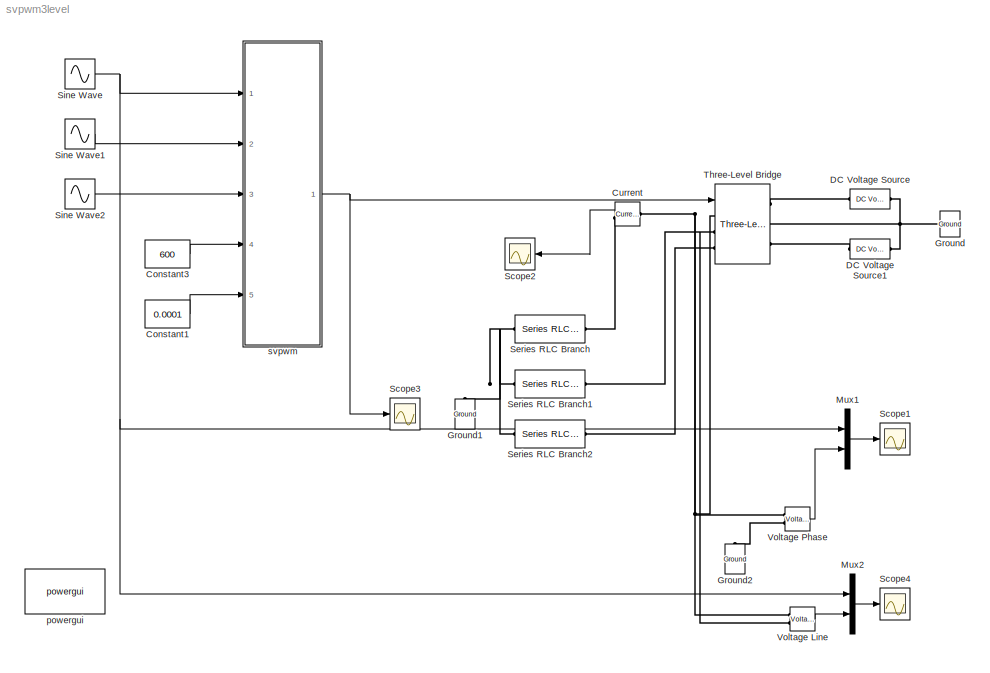
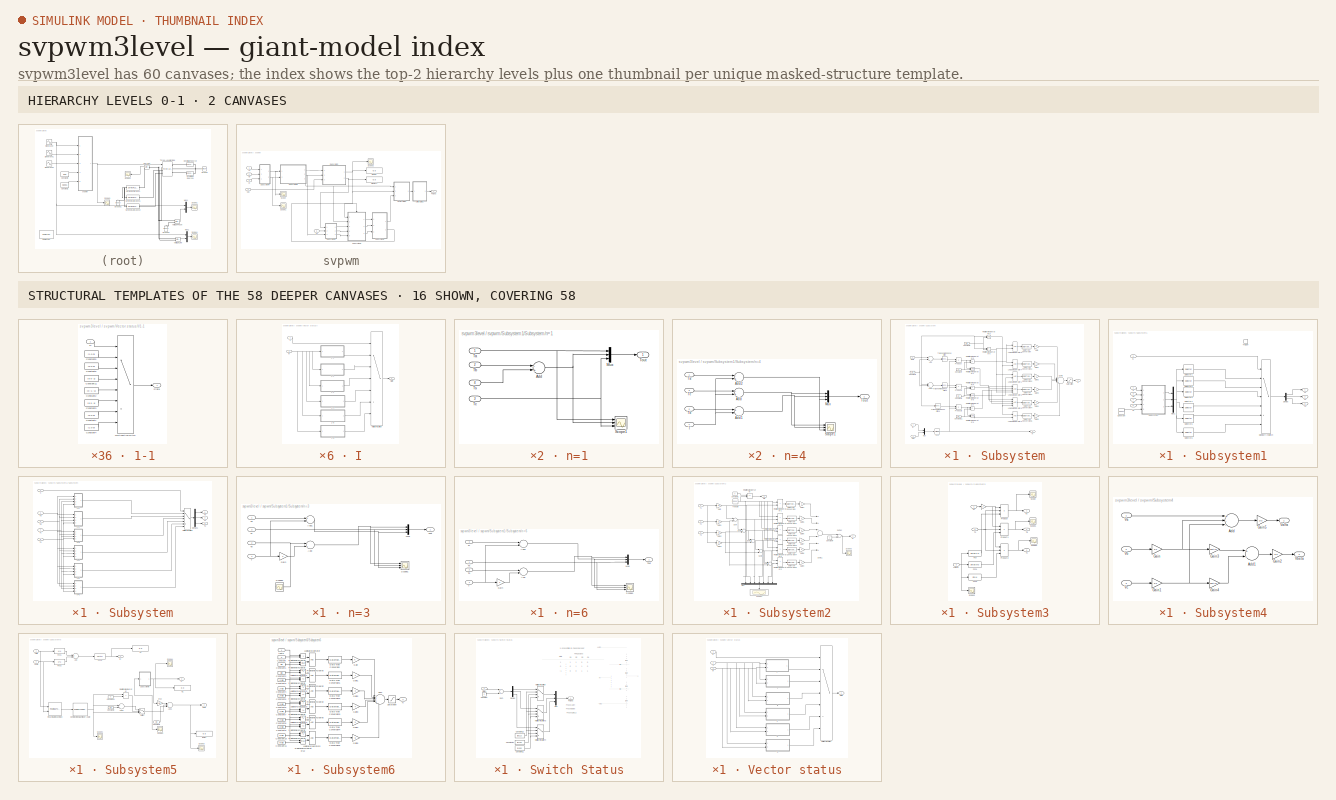
[diagram: thumbnail index - top-2 hierarchy levels (2 canvases) + 16 structural-template representatives of the remaining 58 canvases]
MODEL svpwm3level
KIND model
BLOCK [Constant] Constant1
  OutDataType = sfix(16)
  OutScaling = 2^0
  Value = 0.0001
BLOCK [Constant] Constant3
  OutDataType = sfix(16)
  OutScaling = 2^0
  Value = 600
BLOCK [Reference] Current   REF=powerlib/Measurements/Current Measurement
  DialogController = POWERSYS.PowerSysDialog
  FunctionWithSeparateData = off
  OutputType = Complex
  PSBequivalent = 0
  PhasorSimulation = off
  Ports = [0, 1, 0, 0, 0, 1, 1]
  RTWMemSecDataConstants = Inherit from model
  RTWMemSecDataInternal = Inherit from model
  RTWMemSecDataParameters = Inherit from model
  RTWMemSecFuncExecute = Inherit from model
  RTWMemSecFuncInitTerm = Inherit from model
  ShowPortLabels = FromPortIcon
  SourceBlock = powerlib/Measurements/Current Measurement
  SourceType = Current Measurement
  SystemSampleTime = -1
BLOCK [Reference] DC Voltage Source  REF=powerlib/Electrical\nSources/DC Voltage Source
  Amplitude = 300
  DialogController = POWERSYS.PowerSysDialog
  FunctionWithSeparateData = off
  Measurements = None
  Ports = [0, 0, 0, 0, 0, 1, 1]
  RTWMemSecDataConstants = Inherit from model
  RTWMemSecDataInternal = Inherit from model
  RTWMemSecDataParameters = Inherit from model
  RTWMemSecFuncExecute = Inherit from model
  RTWMemSecFuncInitTerm = Inherit from model
  ShowPortLabels = FromPortIcon
  SourceBlock = powerlib/Electrical\nSources/DC Voltage Source
  SourceType = DC Voltage Source
  SystemSampleTime = -1
BLOCK [Reference] DC Voltage Source1  REF=powerlib/Electrical\nSources/DC Voltage Source
  Amplitude = 300
  DialogController = POWERSYS.PowerSysDialog
  FunctionWithSeparateData = off
  Measurements = None
  Ports = [0, 0, 0, 0, 0, 1, 1]
  RTWMemSecDataConstants = Inherit from model
  RTWMemSecDataInternal = Inherit from model
  RTWMemSecDataParameters = Inherit from model
  RTWMemSecFuncExecute = Inherit from model
  RTWMemSecFuncInitTerm = Inherit from model
  ShowPortLabels = FromPortIcon
  SourceBlock = powerlib/Electrical\nSources/DC Voltage Source
  SourceType = DC Voltage Source
  SystemSampleTime = -1
BLOCK [Reference] Ground  REF=powerlib/Elements/Ground
  DialogController = POWERSYS.PowerSysDialog
  LConnTagsString = a
  LeftPortType = p1
  PhysicalDomain = powersysdomain
  Ports = [0, 0, 0, 0, 0, 1]
  RightPortType = p1
  SourceBlock = powerlib/Elements/Ground
  SourceType = Ground
  SubClassName = unknown
BLOCK [Reference] Ground1  REF=powerlib/Elements/Ground
  DialogController = POWERSYS.PowerSysDialog
  LConnTagsString = a
  LeftPortType = p1
  PhysicalDomain = powersysdomain
  Ports = [0, 0, 0, 0, 0, 1]
  RightPortType = p1
  SourceBlock = powerlib/Elements/Ground
  SourceType = Ground
  SubClassName = unknown
BLOCK [Reference] Ground2  REF=powerlib/Elements/Ground
  DialogController = POWERSYS.PowerSysDialog
  LConnTagsString = a
  LeftPortType = p1
  PhysicalDomain = powersysdomain
  Ports = [0, 0, 0, 0, 0, 1]
  RightPortType = p1
  SourceBlock = powerlib/Elements/Ground
  SourceType = Ground
  SubClassName = unknown
BLOCK [Mux] Mux1
  DisplayOption = bar
  Inputs = 2
  Ports = [2, 1]
BLOCK [Mux] Mux2
  DisplayOption = bar
  Inputs = 2
  Ports = [2, 1]
BLOCK [Scope] Scope1
  DataFormat = StructureWithTime
  Floating = off
  LimitDataPoints = off
  MaxDataPoints = 20000
  NumInputPorts = 1
  Ports = [1]
  SampleTime = 0
  TimeRange = 0.01703035274815434
  YMax = 350
  YMin = -350
  ZoomMode = xonly
BLOCK [Scope] Scope2
  DataFormat = StructureWithTime
  Floating = off
  LimitDataPoints = off
  MaxDataPoints = 20000
  NumInputPorts = 1
  Ports = [1]
  SampleTime = 0
  SaveName = ScopeData2
  TimeRange = 0.01703035274815434
  YMax = 1500
  YMin = -800
BLOCK [Scope] Scope3
  DataFormat = StructureWithTime
  Floating = off
  MaxDataPoints = 20000
  NumInputPorts = 1
  Ports = [1]
  SampleTime = 0
  SaveName = ScopeData4
  TimeRange = 0.01703035274815434
  YMax = 80
  YMin = -150
  ZoomMode = xonly
BLOCK [Scope] Scope4
  DataFormat = StructureWithTime
  Floating = off
  LimitDataPoints = off
  MaxDataPoints = 20000
  NumInputPorts = 1
  Ports = [1]
  SampleTime = 0
  SaveName = ScopeData15
  TimeRange = 0.01703035274815434
  YMax = 700
  YMin = -700
BLOCK [Reference] Series RLC Branch  REF=powerlib/Elements/Series RLC Branch
  BranchType = L
  Capacitance = 1.0
  DialogController = POWERSYS.PowerSysDialog
  Inductance = 5e-4
  InitialCurrent = 0
  InitialVoltage = 0
  LConnTagsString = __new0
  LeftPortType = p1
  Measurements = None
  PhysicalDomain = powersysdomain
  Ports = [0, 0, 0, 0, 0, 1, 1]
  RConnTagsString = __new0
  Resistance = 10
  RightPortType = p1
  SetiL0 = off
  Setx0 = off
  SourceBlock = powerlib/Elements/Series RLC Branch
  SourceType = Series RLC Branch
  SubClassName = unknown
BLOCK [Reference] Series RLC Branch1  REF=powerlib/Elements/Series RLC Branch
  BranchType = L
  Capacitance = 1e-6
  DialogController = POWERSYS.PowerSysDialog
  Inductance = 5e-4
  InitialCurrent = 0
  InitialVoltage = 0
  LConnTagsString = __new0
  LeftPortType = p1
  Measurements = None
  PhysicalDomain = powersysdomain
  Ports = [0, 0, 0, 0, 0, 1, 1]
  RConnTagsString = __new0
  Resistance = 10
  RightPortType = p1
  SetiL0 = off
  Setx0 = off
  SourceBlock = powerlib/Elements/Series RLC Branch
  SourceType = Series RLC Branch
  SubClassName = unknown
BLOCK [Reference] Series RLC Branch2  REF=powerlib/Elements/Series RLC Branch
  BranchType = L
  Capacitance = 1e-6
  DialogController = POWERSYS.PowerSysDialog
  Inductance = 5e-4
  InitialCurrent = 0
  InitialVoltage = 0
  LConnTagsString = __new0
  LeftPortType = p1
  Measurements = None
  PhysicalDomain = powersysdomain
  Ports = [0, 0, 0, 0, 0, 1, 1]
  RConnTagsString = __new0
  Resistance = 10
  RightPortType = p1
  SetiL0 = off
  Setx0 = off
  SourceBlock = powerlib/Elements/Series RLC Branch
  SourceType = Series RLC Branch
  SubClassName = unknown
BLOCK [Sin] Sine Wave
  Amplitude = 220
  Frequency = 314
  Ports = [0, 1]
  SampleTime = 0
BLOCK [Sin] Sine Wave1
  Amplitude = 220
  Frequency = 314
  Phase = -2*pi/3
  Ports = [0, 1]
  SampleTime = 0
BLOCK [Sin] Sine Wave2
  Amplitude = 220
  Frequency = 314
  Phase = -4*pi/3
  Ports = [0, 1]
  SampleTime = 0
BLOCK [Reference] Three-Level Bridge  REF=powerlib/Power\nElectronics/Three-Level Bridge
  Arms = 3
  Device = IGBT / Diodes
  DialogController = POWERSYS.PowerSysDialog
  ForwardVoltages = [  0  0  ]
  FunctionWithSeparateData = off
  Measurements = None
  Ports = [1, 0, 0, 0, 0, 3, 3]
  RTWMemSecDataConstants = Inherit from model
  RTWMemSecDataInternal = Inherit from model
  RTWMemSecDataParameters = Inherit from model
  RTWMemSecFuncExecute = Inherit from model
  RTWMemSecFuncInitTerm = Inherit from model
  Ron = 1e-3
  SbubberCapacitance = inf
  ShowPortLabels = FromPortIcon
  SnubberResistance = 1e5
  SourceBlock = powerlib/Power\nElectronics/Three-Level Bridge
  SourceType = Three-Level Bridge
  SystemSampleTime = -1
BLOCK [Reference] Voltage Line  REF=powerlib/Measurements/Voltage Measurement
  DialogController = POWERSYS.PowerSysDialog
  FunctionWithSeparateData = off
  OutputType = Complex
  PSBequivalent = 0
  PhasorSimulation = off
  Ports = [0, 1, 0, 0, 0, 2]
  RTWMemSecDataConstants = Inherit from model
  RTWMemSecDataInternal = Inherit from model
  RTWMemSecDataParameters = Inherit from model
  RTWMemSecFuncExecute = Inherit from model
  RTWMemSecFuncInitTerm = Inherit from model
  ShowPortLabels = FromPortIcon
  SourceBlock = powerlib/Measurements/Voltage Measurement
  SourceType = Voltage Measurement
  SystemSampleTime = -1
BLOCK [Reference] Voltage Phase  REF=powerlib/Measurements/Voltage Measurement
  DialogController = POWERSYS.PowerSysDialog
  FunctionWithSeparateData = off
  OutputType = Complex
  PSBequivalent = 0
  PhasorSimulation = off
  Ports = [0, 1, 0, 0, 0, 2]
  RTWMemSecDataConstants = Inherit from model
  RTWMemSecDataInternal = Inherit from model
  RTWMemSecDataParameters = Inherit from model
  RTWMemSecFuncExecute = Inherit from model
  RTWMemSecFuncInitTerm = Inherit from model
  ShowPortLabels = FromPortIcon
  SourceBlock = powerlib/Measurements/Voltage Measurement
  SourceType = Voltage Measurement
  SystemSampleTime = -1
BLOCK [Reference] powergui  REF=powerlib/powergui
  DisplayStyle = 1
  EnableUseOfTLC = off
  Frange = [0:2:500]
  FreqAxis = off
  FunctionMessages = off
  FunctionWithSeparateData = off
  HookPort = off
  Interpol = off
  MaxFrequency = 1000
  Ports = []
  Priority = 2
  RTWMemSecDataConstants = Inherit from model
  RTWMemSecDataInternal = Inherit from model
  RTWMemSecDataParameters = Inherit from model
  RTWMemSecFuncExecute = Inherit from model
  RTWMemSecFuncInitTerm = Inherit from model
  RestoreLinks = warning
  RmsSteady = 1
  SPID = off
  SampleTime = 0.000002
  ShowGrid = off
  ShowPortLabels = FromPortIcon
  SourceBlock = powerlib/powergui
  SourceType = PSB option menu block
  StartTime = 0.0
  SwTol = 0
  SystemSampleTime = -1
  Ts = 0
  UserData = DataTag0
  UserDataPersistent = on
  Xlog = on
  Ylog = off
  ZoomFFT = on
  cycles = 1
  display = off
  echomessages = off
  frequency = 60
  frequencyindice = 0
  frequencyindicesteady = 1
  fundamental = 60
  methode = off
  save = off
  variable = ZData
  x0status = blocks
BLOCK [SubSystem] svpwm
  FunctionWithSeparateData = off
  MaskHideContents = off
  MinAlgLoopOccurrences = off
  Opaque = off
  Ports = [5, 1]
  PropExecContextOutsideSubsystem = off
  RTWSystemCode = Auto
  RequestExecContextInheritance = off
BLOCK [Display] svpwm/Display
  Decimation = 1
  Lockdown = off
  Ports = [1]
BLOCK [Display] svpwm/Display1
  Decimation = 1
  Lockdown = off
  Ports = [1]
BLOCK [Outport] svpwm/Pulses
  IconDisplay = Port number
  OutDataType = sfix(16)
  OutScaling = 2^0
BLOCK [Scope] svpwm/Scope
  DataFormat = StructureWithTime
  Floating = off
  NumInputPorts = 1
  Ports = [1]
  SampleTime = 0
  SaveName = ScopeData6
  YMax = -150
  YMin = -150
BLOCK [Scope] svpwm/Scope1
  DataFormat = StructureWithTime
  Floating = off
  NumInputPorts = 1
  Ports = [1]
  SampleTime = 0
  SaveName = ScopeData7
  YMax = -606.218
  YMin = -606.218
BLOCK [Scope] svpwm/Scope2
  DataFormat = StructureWithTime
  Floating = off
  MaxDataPoints = 20000
  NumInputPorts = 1
  Ports = [1]
  SampleTime = 0
  SaveName = ScopeData8
  YMax = 6
  YMin = 3
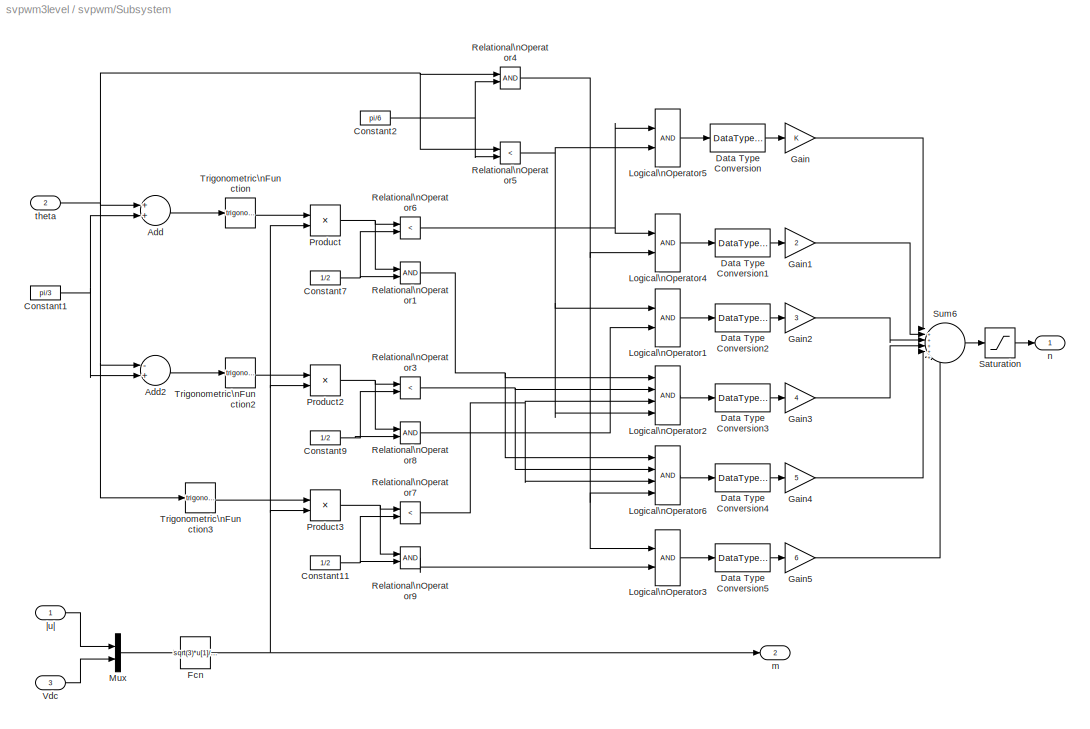
BLOCK [SubSystem] svpwm/Subsystem
  FunctionWithSeparateData = off
  MaskHideContents = off
  MinAlgLoopOccurrences = off
  Opaque = off
  Ports = [3, 2]
  PropExecContextOutsideSubsystem = off
  RTWSystemCode = Auto
  RequestExecContextInheritance = off
BLOCK [Sum] svpwm/Subsystem/Add
  InputSameDT = off
  OutDataType = fixdt(1, 16)
  OutDataTypeMode = Inherit via internal rule
  OutDataTypeStr = Inherit: Inherit via internal rule
  OutScaling = 2^-10
  Ports = [2, 1]
  SaturateOnIntegerOverflow = off
BLOCK [Sum] svpwm/Subsystem/Add2
  InputSameDT = off
  Inputs = -+
  OutDataType = fixdt(1, 16)
  OutDataTypeMode = Inherit via internal rule
  OutDataTypeStr = Inherit: Inherit via internal rule
  OutScaling = 2^-10
  Ports = [2, 1]
  SaturateOnIntegerOverflow = off
BLOCK [Constant] svpwm/Subsystem/Constant1
  OutDataType = sfix(16)
  OutScaling = 2^0
  Value = pi/3
BLOCK [Constant] svpwm/Subsystem/Constant11
  OutDataType = sfix(16)
  OutScaling = 2^0
  Value = 1/2
BLOCK [Constant] svpwm/Subsystem/Constant2
  OutDataType = sfix(16)
  OutScaling = 2^0
  Value = pi/6
BLOCK [Constant] svpwm/Subsystem/Constant7
  OutDataType = sfix(16)
  OutScaling = 2^0
  Value = 1/2
BLOCK [Constant] svpwm/Subsystem/Constant9
  OutDataType = sfix(16)
  OutScaling = 2^0
  Value = 1/2
BLOCK [DataTypeConversion] svpwm/Subsystem/Data Type Conversion
  OutDataType = sfix(16)
  OutScaling = 2^0
BLOCK [DataTypeConversion] svpwm/Subsystem/Data Type Conversion1
  OutDataType = sfix(16)
  OutScaling = 2^0
BLOCK [DataTypeConversion] svpwm/Subsystem/Data Type Conversion2
  OutDataType = sfix(16)
  OutScaling = 2^0
BLOCK [DataTypeConversion] svpwm/Subsystem/Data Type Conversion3
  OutDataType = sfix(16)
  OutScaling = 2^0
BLOCK [DataTypeConversion] svpwm/Subsystem/Data Type Conversion4
  OutDataType = sfix(16)
  OutScaling = 2^0
BLOCK [DataTypeConversion] svpwm/Subsystem/Data Type Conversion5
  OutDataType = sfix(16)
  OutScaling = 2^0
BLOCK [Fcn] svpwm/Subsystem/Fcn
  Expr = sqrt(3)*u[1]/u[2]
BLOCK [Gain] svpwm/Subsystem/Gain
  OutDataType = sfix(16)
  OutScaling = 2^0
  ParameterDataType = sfix(16)
  ParameterScaling = 2^0
BLOCK [Gain] svpwm/Subsystem/Gain1
  Gain = 2
  OutDataType = sfix(16)
  OutScaling = 2^0
  ParameterDataType = sfix(16)
  ParameterScaling = 2^0
BLOCK [Gain] svpwm/Subsystem/Gain2
  Gain = 3
  OutDataType = sfix(16)
  OutScaling = 2^0
  ParameterDataType = sfix(16)
  ParameterScaling = 2^0
BLOCK [Gain] svpwm/Subsystem/Gain3
  Gain = 4
  OutDataType = sfix(16)
  OutScaling = 2^0
  ParameterDataType = sfix(16)
  ParameterScaling = 2^0
BLOCK [Gain] svpwm/Subsystem/Gain4
  Gain = 5
  OutDataType = sfix(16)
  OutScaling = 2^0
  ParameterDataType = sfix(16)
  ParameterScaling = 2^0
BLOCK [Gain] svpwm/Subsystem/Gain5
  Gain = 6
  OutDataType = sfix(16)
  OutScaling = 2^0
  ParameterDataType = sfix(16)
  ParameterScaling = 2^0
BLOCK [Logic] svpwm/Subsystem/Logical\nOperator1
  Ports = [2, 1]
BLOCK [Logic] svpwm/Subsystem/Logical\nOperator2
  Inputs = 4
  Ports = [4, 1]
BLOCK [Logic] svpwm/Subsystem/Logical\nOperator3
  Ports = [2, 1]
BLOCK [Logic] svpwm/Subsystem/Logical\nOperator4
  Ports = [2, 1]
BLOCK [Logic] svpwm/Subsystem/Logical\nOperator5
  Ports = [2, 1]
BLOCK [Logic] svpwm/Subsystem/Logical\nOperator6
  Inputs = 4
  Ports = [4, 1]
BLOCK [Mux] svpwm/Subsystem/Mux
  DisplayOption = bar
  Inputs = 2
  Ports = [2, 1]
BLOCK [Product] svpwm/Subsystem/Product
  InputSameDT = off
  OutDataType = fixdt(1, 16)
  OutDataTypeMode = Inherit via internal rule
  OutDataTypeStr = Inherit: Inherit via internal rule
  OutScaling = 2^0
  Ports = [2, 1]
  SaturateOnIntegerOverflow = off
BLOCK [Product] svpwm/Subsystem/Product2
  InputSameDT = off
  OutDataType = fixdt(1, 16)
  OutDataTypeMode = Inherit via internal rule
  OutDataTypeStr = Inherit: Inherit via internal rule
  OutScaling = 2^0
  Ports = [2, 1]
  SaturateOnIntegerOverflow = off
BLOCK [Product] svpwm/Subsystem/Product3
  InputSameDT = off
  OutDataType = fixdt(1, 16)
  OutDataTypeMode = Inherit via internal rule
  OutDataTypeStr = Inherit: Inherit via internal rule
  OutScaling = 2^0
  Ports = [2, 1]
  SaturateOnIntegerOverflow = off
BLOCK [RelationalOperator] svpwm/Subsystem/Relational\nOperator1
BLOCK [RelationalOperator] svpwm/Subsystem/Relational\nOperator3
  Operator = <
BLOCK [RelationalOperator] svpwm/Subsystem/Relational\nOperator4
BLOCK [RelationalOperator] svpwm/Subsystem/Relational\nOperator5
  Operator = <
BLOCK [RelationalOperator] svpwm/Subsystem/Relational\nOperator6
  Operator = <
BLOCK [RelationalOperator] svpwm/Subsystem/Relational\nOperator7
  Operator = <
BLOCK [RelationalOperator] svpwm/Subsystem/Relational\nOperator8
BLOCK [RelationalOperator] svpwm/Subsystem/Relational\nOperator9
BLOCK [Saturate] svpwm/Subsystem/Saturation
  LowerLimit = 1
  UpperLimit = 6
BLOCK [Sum] svpwm/Subsystem/Sum6
  IconShape = round
  Inputs = |++++++
  OutDataType = sfix(16)
  OutScaling = 2^0
  Ports = [6, 1]
  SaturateOnIntegerOverflow = off
BLOCK [Trigonometry] svpwm/Subsystem/Trigonometric\nFunction
  Ports = [1, 1]
BLOCK [Trigonometry] svpwm/Subsystem/Trigonometric\nFunction2
  Ports = [1, 1]
BLOCK [Trigonometry] svpwm/Subsystem/Trigonometric\nFunction3
  Ports = [1, 1]
BLOCK [Inport] svpwm/Subsystem/Vdc
  IconDisplay = Port number
  OutDataType = sfix(16)
  OutScaling = 2^0
  Port = 3
BLOCK [Outport] svpwm/Subsystem/m
  IconDisplay = Port number
  OutDataType = sfix(16)
  OutScaling = 2^0
  Port = 2
BLOCK [Outport] svpwm/Subsystem/n
  IconDisplay = Port number
  OutDataType = sfix(16)
  OutScaling = 2^0
BLOCK [Inport] svpwm/Subsystem/theta
  IconDisplay = Port number
  OutDataType = sfix(16)
  OutScaling = 2^0
  Port = 2
BLOCK [Inport] svpwm/Subsystem/|u|
  IconDisplay = Port number
  OutDataType = sfix(16)
  OutScaling = 2^0
BLOCK [SubSystem] svpwm/Subsystem1
  FunctionWithSeparateData = off
  MaskHideContents = off
  MinAlgLoopOccurrences = off
  Opaque = off
  Ports = [5, 3, 0, 1]
  PropExecContextOutsideSubsystem = off
  RTWSystemCode = Auto
  RequestExecContextInheritance = off
BLOCK [Constant] svpwm/Subsystem1/Constant
  OutDataType = fixdt(1, 16)
  OutScaling = 2^0
  Value = 0.0001
BLOCK [Demux] svpwm/Subsystem1/Demux
  DisplayOption = bar
  Outputs = 3
  Ports = [1, 3]
BLOCK [MultiPortSwitch] svpwm/Subsystem1/Multiport\nSwitch
  Inputs = 6
  OutDataType = sfix(16)
  OutScaling = 2^0
  Ports = [7, 1]
  SaturateOnIntegerOverflow = off
BLOCK [Mux] svpwm/Subsystem1/Mux1
  DisplayOption = bar
  Inputs = 3
  Ports = [3, 1]
BLOCK [Inport] svpwm/Subsystem1/N
  IconDisplay = Port number
  OutDataType = sfix(16)
  OutScaling = 2^0
  Port = 2
BLOCK [Selector] svpwm/Subsystem1/Selector1
  IndexOptions = Index vector (dialog)
  Indices = [1 2  3]
  InputPortWidth = 3
  OutputSizes = 1
  Ports = [1, 1]
BLOCK [Selector] svpwm/Subsystem1/Selector2
  IndexOptions = Index vector (dialog)
  Indices = [1 3 2]
  InputPortWidth = 3
  OutputSizes = 1
  Ports = [1, 1]
BLOCK [Selector] svpwm/Subsystem1/Selector3
  IndexOptions = Index vector (dialog)
  Indices = [1 2 3]
  InputPortWidth = 3
  OutputSizes = 1
  Ports = [1, 1]
BLOCK [Selector] svpwm/Subsystem1/Selector4
  IndexOptions = Index vector (dialog)
  Indices = [1 3 2]
  InputPortWidth = 3
  OutputSizes = 1
  Ports = [1, 1]
BLOCK [Selector] svpwm/Subsystem1/Selector5
  IndexOptions = Index vector (dialog)
  Indices = [1 2  3]
  InputPortWidth = 3
  OutputSizes = 1
  Ports = [1, 1]
BLOCK [Selector] svpwm/Subsystem1/Selector6
  IndexOptions = Index vector (dialog)
  Indices = [ 1 3 2]
  InputPortWidth = 3
  OutputSizes = 1
  Ports = [1, 1]
BLOCK [SubSystem] svpwm/Subsystem1/Subsystem
  FunctionWithSeparateData = off
  MaskHideContents = off
  MinAlgLoopOccurrences = off
  Opaque = off
  Ports = [5, 3]
  PropExecContextOutsideSubsystem = off
  RTWSystemCode = Auto
  RequestExecContextInheritance = off
BLOCK [Demux] svpwm/Subsystem1/Subsystem/Demux1
  Outputs = 3
  Ports = [1, 3]
BLOCK [MultiPortSwitch] svpwm/Subsystem1/Subsystem/Multiport\nSwitch
  Inputs = 6
  OutDataType = sfix(16)
  OutScaling = 2^0
  Ports = [7, 1]
  SaturateOnIntegerOverflow = off
BLOCK [Outport] svpwm/Subsystem1/Subsystem/T0
  IconDisplay = Port number
  OutDataType = sfix(16)
  OutScaling = 2^0
BLOCK [Outport] svpwm/Subsystem1/Subsystem/T1
  IconDisplay = Port number
  OutDataType = sfix(16)
  OutScaling = 2^0
  Port = 2
BLOCK [Outport] svpwm/Subsystem1/Subsystem/T2
  IconDisplay = Port number
  OutDataType = sfix(16)
  OutScaling = 2^0
  Port = 3
BLOCK [Inport] svpwm/Subsystem1/Subsystem/Ta
  IconDisplay = Port number
  OutDataType = sfix(16)
  OutScaling = 2^0
  Port = 2
BLOCK [Inport] svpwm/Subsystem1/Subsystem/Tb
  IconDisplay = Port number
  OutDataType = sfix(16)
  OutScaling = 2^0
  Port = 3
BLOCK [Inport] svpwm/Subsystem1/Subsystem/Tc
  IconDisplay = Port number
  OutDataType = sfix(16)
  OutScaling = 2^0
  Port = 4
BLOCK [Inport] svpwm/Subsystem1/Subsystem/Ts
  IconDisplay = Port number
  OutDataType = sfix(16)
  OutScaling = 2^0
  Port = 5
BLOCK [Inport] svpwm/Subsystem1/Subsystem/n
  IconDisplay = Port number
  OutDataType = sfix(16)
  OutScaling = 2^0
BLOCK [SubSystem] svpwm/Subsystem1/Subsystem/n=1
  FunctionWithSeparateData = off
  MaskHideContents = off
  MinAlgLoopOccurrences = off
  Opaque = off
  Ports = [4, 1]
  PropExecContextOutsideSubsystem = off
  RTWSystemCode = Auto
  RequestExecContextInheritance = off
BLOCK [Sum] svpwm/Subsystem1/Subsystem/n=1/Add
  InputSameDT = off
  Inputs = -+
  OutDataType = fixdt(1, 16)
  OutDataTypeMode = Inherit via internal rule
  OutDataTypeStr = Inherit: Inherit via internal rule
  OutScaling = 2^-10
  Ports = [2, 1]
  SaturateOnIntegerOverflow = off
BLOCK [Mux] svpwm/Subsystem1/Subsystem/n=1/Mux
  DisplayOption = bar
  Inputs = 3
  Ports = [3, 1]
BLOCK [Scope] svpwm/Subsystem1/Subsystem/n=1/Scope1
  DataFormat = StructureWithTime
  Floating = off
  NumInputPorts = 3
  Ports = [3]
  SampleTime = 0
  SaveName = ScopeData13
  YMax = 0.0012~-0.001125~0.0011
  YMin = 0.0001~-0.0013~2.71051e-020
BLOCK [Inport] svpwm/Subsystem1/Subsystem/n=1/Ta
  IconDisplay = Port number
BLOCK [Inport] svpwm/Subsystem1/Subsystem/n=1/Tb
  IconDisplay = Port number
  Port = 2
BLOCK [Inport] svpwm/Subsystem1/Subsystem/n=1/Tc
  IconDisplay = Port number
  Port = 3
BLOCK [Outport] svpwm/Subsystem1/Subsystem/n=1/Tout
  IconDisplay = Port number
BLOCK [Inport] svpwm/Subsystem1/Subsystem/n=1/Ts
  IconDisplay = Port number
  Port = 4
BLOCK [SubSystem] svpwm/Subsystem1/Subsystem/n=2
  FunctionWithSeparateData = off
  MaskHideContents = off
  MinAlgLoopOccurrences = off
  Opaque = off
  Ports = [4, 1]
  PropExecContextOutsideSubsystem = off
  RTWSystemCode = Auto
  RequestExecContextInheritance = off
BLOCK [Sum] svpwm/Subsystem1/Subsystem/n=2/Add
  InputSameDT = off
  Inputs = -+
  OutDataType = fixdt(1, 16)
  OutDataTypeMode = Inherit via internal rule
  OutDataTypeStr = Inherit: Inherit via internal rule
  OutScaling = 2^-10
  Ports = [2, 1]
  SaturateOnIntegerOverflow = off
BLOCK [Mux] svpwm/Subsystem1/Subsystem/n=2/Mux
  DisplayOption = bar
  Inputs = 3
  Ports = [3, 1]
BLOCK [Scope] svpwm/Subsystem1/Subsystem/n=2/Scope1
  DataFormat = StructureWithTime
  Floating = off
  NumInputPorts = 3
  Ports = [3]
  SampleTime = 0
  SaveName = ScopeData12
  YMax = 0.0012~-0.001125~0.0011
  YMin = 0.0001~-0.0013~2.71051e-020
BLOCK [Inport] svpwm/Subsystem1/Subsystem/n=2/Ta
  IconDisplay = Port number
BLOCK [Inport] svpwm/Subsystem1/Subsystem/n=2/Tb
  IconDisplay = Port number
  Port = 2
BLOCK [Inport] svpwm/Subsystem1/Subsystem/n=2/Tc
  IconDisplay = Port number
  Port = 3
BLOCK [Outport] svpwm/Subsystem1/Subsystem/n=2/Tout
  IconDisplay = Port number
BLOCK [Inport] svpwm/Subsystem1/Subsystem/n=2/Ts
  IconDisplay = Port number
  Port = 4
BLOCK [SubSystem] svpwm/Subsystem1/Subsystem/n=3
  FunctionWithSeparateData = off
  MaskHideContents = off
  MinAlgLoopOccurrences = off
  Opaque = off
  Ports = [4, 1]
  PropExecContextOutsideSubsystem = off
  RTWSystemCode = Auto
  RequestExecContextInheritance = off
BLOCK [Sum] svpwm/Subsystem1/Subsystem/n=3/Add
  InputSameDT = off
  Inputs = -+
  OutDataType = fixdt(1, 16)
  OutDataTypeMode = Inherit via internal rule
  OutDataTypeStr = Inherit: Inherit via internal rule
  OutScaling = 2^-10
  Ports = [2, 1]
  SaturateOnIntegerOverflow = off
BLOCK [Sum] svpwm/Subsystem1/Subsystem/n=3/Add1
  InputSameDT = off
  Inputs = +-
  OutDataType = fixdt(1, 16)
  OutDataTypeMode = Inherit via internal rule
  OutDataTypeStr = Inherit: Inherit via internal rule
  OutScaling = 2^-10
  Ports = [2, 1]
  SaturateOnIntegerOverflow = off
BLOCK [Gain] svpwm/Subsystem1/Subsystem/n=3/Gain
  Gain = 2
  OutDataType = fixdt(1, 16)
  OutDataTypeMode = Inherit via internal rule
  OutDataTypeStr = Inherit: Inherit via internal rule
  OutScaling = 2^0
  ParamDataTypeStr = Inherit: Inherit via internal rule
  ParameterDataType = fixdt(1, 16)
  ParameterDataTypeMode = Inherit via internal rule
  ParameterScaling = 2^0
  SaturateOnIntegerOverflow = off
BLOCK [Mux] svpwm/Subsystem1/Subsystem/n=3/Mux
  DisplayOption = bar
  Inputs = 3
  Ports = [3, 1]
BLOCK [Scope] svpwm/Subsystem1/Subsystem/n=3/Scope1
  DataFormat = StructureWithTime
  Floating = off
  NumInputPorts = 3
  Ports = [3]
  SampleTime = 0
  SaveName = ScopeData18
  YMax = -0.000125~0.0011~0.0002
  YMin = -0.0003~2.71051e-020~-0.001
BLOCK [Scope] svpwm/Subsystem1/Subsystem/n=3/Scope2
  DataFormat = StructureWithTime
  Floating = off
  NumInputPorts = 1
  Ports = [1]
  SampleTime = 0
  SaveName = ScopeData23
  YMax = 0.0023
  YMin = 0.00212
BLOCK [Inport] svpwm/Subsystem1/Subsystem/n=3/T
  IconDisplay = Port number
  Port = 4
BLOCK [Inport] svpwm/Subsystem1/Subsystem/n=3/Ta
  IconDisplay = Port number
BLOCK [Inport] svpwm/Subsystem1/Subsystem/n=3/Tb
  IconDisplay = Port number
  Port = 2
BLOCK [Inport] svpwm/Subsystem1/Subsystem/n=3/Tc
  IconDisplay = Port number
  Port = 3
BLOCK [Outport] svpwm/Subsystem1/Subsystem/n=3/Tout
  IconDisplay = Port number
BLOCK [SubSystem] svpwm/Subsystem1/Subsystem/n=4
  FunctionWithSeparateData = off
  MaskHideContents = off
  MinAlgLoopOccurrences = off
  Opaque = off
  Ports = [4, 1]
  PropExecContextOutsideSubsystem = off
  RTWSystemCode = Auto
  RequestExecContextInheritance = off
BLOCK [Sum] svpwm/Subsystem1/Subsystem/n=4/Add
  InputSameDT = off
  Inputs = -+
  OutDataType = fixdt(1, 16)
  OutDataTypeMode = Inherit via internal rule
  OutDataTypeStr = Inherit: Inherit via internal rule
  OutScaling = 2^-10
  Ports = [2, 1]
  SaturateOnIntegerOverflow = off
BLOCK [Sum] svpwm/Subsystem1/Subsystem/n=4/Add1
  InputSameDT = off
  Inputs = +-
  OutDataType = fixdt(1, 16)
  OutDataTypeMode = Inherit via internal rule
  OutDataTypeStr = Inherit: Inherit via internal rule
  OutScaling = 2^-10
  Ports = [2, 1]
  SaturateOnIntegerOverflow = off
BLOCK [Sum] svpwm/Subsystem1/Subsystem/n=4/Add2
  InputSameDT = off
  Inputs = -+
  OutDataType = fixdt(1, 16)
  OutDataTypeMode = Inherit via internal rule
  OutDataTypeStr = Inherit: Inherit via internal rule
  OutScaling = 2^-10
  Ports = [2, 1]
  SaturateOnIntegerOverflow = off
BLOCK [Mux] svpwm/Subsystem1/Subsystem/n=4/Mux
  DisplayOption = bar
  Inputs = 3
  Ports = [3, 1]
BLOCK [Scope] svpwm/Subsystem1/Subsystem/n=4/Scope1
  DataFormat = StructureWithTime
  Floating = off
  NumInputPorts = 3
  Ports = [3]
  SampleTime = 0
  SaveName = ScopeData19
  YMax = 0.001~0.0013~0.001
  YMin = -0.0002~0.001125~-0.0002
BLOCK [Inport] svpwm/Subsystem1/Subsystem/n=4/T
  IconDisplay = Port number
  Port = 4
BLOCK [Inport] svpwm/Subsystem1/Subsystem/n=4/Ta
  IconDisplay = Port number
BLOCK [Inport] svpwm/Subsystem1/Subsystem/n=4/Tb
  IconDisplay = Port number
  Port = 2
BLOCK [Inport] svpwm/Subsystem1/Subsystem/n=4/Tc
  IconDisplay = Port number
  Port = 3
BLOCK [Outport] svpwm/Subsystem1/Subsystem/n=4/Tout
  IconDisplay = Port number
BLOCK [SubSystem] svpwm/Subsystem1/Subsystem/n=5
  FunctionWithSeparateData = off
  MaskHideContents = off
  MinAlgLoopOccurrences = off
  Opaque = off
  Ports = [4, 1]
  PropExecContextOutsideSubsystem = off
  RTWSystemCode = Auto
  RequestExecContextInheritance = off
BLOCK [Sum] svpwm/Subsystem1/Subsystem/n=5/Add
  InputSameDT = off
  Inputs = -+
  OutDataType = fixdt(1, 16)
  OutDataTypeMode = Inherit via internal rule
  OutDataTypeStr = Inherit: Inherit via internal rule
  OutScaling = 2^-10
  Ports = [2, 1]
  SaturateOnIntegerOverflow = off
BLOCK [Sum] svpwm/Subsystem1/Subsystem/n=5/Add1
  InputSameDT = off
  Inputs = +-
  OutDataType = fixdt(1, 16)
  OutDataTypeMode = Inherit via internal rule
  OutDataTypeStr = Inherit: Inherit via internal rule
  OutScaling = 2^-10
  Ports = [2, 1]
  SaturateOnIntegerOverflow = off
BLOCK [Sum] svpwm/Subsystem1/Subsystem/n=5/Add2
  InputSameDT = off
  Inputs = -+
  OutDataType = fixdt(1, 16)
  OutDataTypeMode = Inherit via internal rule
  OutDataTypeStr = Inherit: Inherit via internal rule
  OutScaling = 2^-10
  Ports = [2, 1]
  SaturateOnIntegerOverflow = off
BLOCK [Mux] svpwm/Subsystem1/Subsystem/n=5/Mux
  DisplayOption = bar
  Inputs = 3
  Ports = [3, 1]
BLOCK [Scope] svpwm/Subsystem1/Subsystem/n=5/Scope1
  DataFormat = StructureWithTime
  Floating = off
  NumInputPorts = 3
  Ports = [3]
  SampleTime = 0
  SaveName = ScopeData20
  YMax = 0.001~0.001~0.0013
  YMin = -0.0002~-0.0002~0.001125
BLOCK [Inport] svpwm/Subsystem1/Subsystem/n=5/T
  IconDisplay = Port number
  Port = 4
BLOCK [Inport] svpwm/Subsystem1/Subsystem/n=5/Ta
  IconDisplay = Port number
BLOCK [Inport] svpwm/Subsystem1/Subsystem/n=5/Tb
  IconDisplay = Port number
  Port = 2
BLOCK [Inport] svpwm/Subsystem1/Subsystem/n=5/Tc
  IconDisplay = Port number
  Port = 3
BLOCK [Outport] svpwm/Subsystem1/Subsystem/n=5/Tout
  IconDisplay = Port number
BLOCK [SubSystem] svpwm/Subsystem1/Subsystem/n=6
  FunctionWithSeparateData = off
  MaskHideContents = off
  MinAlgLoopOccurrences = off
  Opaque = off
  Ports = [4, 1]
  PropExecContextOutsideSubsystem = off
  RTWSystemCode = Auto
  RequestExecContextInheritance = off
BLOCK [Sum] svpwm/Subsystem1/Subsystem/n=6/Add
  InputSameDT = off
  Inputs = -+
  OutDataType = fixdt(1, 16)
  OutDataTypeMode = Inherit via internal rule
  OutDataTypeStr = Inherit: Inherit via internal rule
  OutScaling = 2^-10
  Ports = [2, 1]
  SaturateOnIntegerOverflow = off
BLOCK [Sum] svpwm/Subsystem1/Subsystem/n=6/Add1
  InputSameDT = off
  Inputs = +-
  OutDataType = fixdt(1, 16)
  OutDataTypeMode = Inherit via internal rule
  OutDataTypeStr = Inherit: Inherit via internal rule
  OutScaling = 2^-10
  Ports = [2, 1]
  SaturateOnIntegerOverflow = off
BLOCK [Gain] svpwm/Subsystem1/Subsystem/n=6/Gain
  Gain = 2
  OutDataType = fixdt(1, 16)
  OutDataTypeMode = Inherit via internal rule
  OutDataTypeStr = Inherit: Inherit via internal rule
  OutScaling = 2^0
  ParamDataTypeStr = Inherit: Inherit via internal rule
  ParameterDataType = fixdt(1, 16)
  ParameterDataTypeMode = Inherit via internal rule
  ParameterScaling = 2^0
  SaturateOnIntegerOverflow = off
BLOCK [Mux] svpwm/Subsystem1/Subsystem/n=6/Mux
  DisplayOption = bar
  Inputs = 3
  Ports = [3, 1]
BLOCK [Scope] svpwm/Subsystem1/Subsystem/n=6/Scope1
  DataFormat = StructureWithTime
  Floating = off
  NumInputPorts = 3
  Ports = [3]
  SampleTime = 0
  SaveName = ScopeData21
  YMax = 0.00075~-0.0005~0.0015
  YMin = 0.0005~-0.002~-8.13152e-020
BLOCK [Inport] svpwm/Subsystem1/Subsystem/n=6/T
  IconDisplay = Port number
  Port = 4
BLOCK [Inport] svpwm/Subsystem1/Subsystem/n=6/Ta
  IconDisplay = Port number
BLOCK [Inport] svpwm/Subsystem1/Subsystem/n=6/Tb
  IconDisplay = Port number
  Port = 2
BLOCK [Inport] svpwm/Subsystem1/Subsystem/n=6/Tc
  IconDisplay = Port number
  Port = 3
BLOCK [Outport] svpwm/Subsystem1/Subsystem/n=6/Tout
  IconDisplay = Port number
BLOCK [Outport] svpwm/Subsystem1/T1
  IconDisplay = Port number
  OutDataType = sfix(16)
  OutScaling = 2^0
BLOCK [Outport] svpwm/Subsystem1/T2
  IconDisplay = Port number
  OutDataType = sfix(16)
  OutScaling = 2^0
  Port = 2
BLOCK [Outport] svpwm/Subsystem1/T3
  IconDisplay = Port number
  OutDataType = sfix(16)
  OutScaling = 2^0
  Port = 3
BLOCK [Inport] svpwm/Subsystem1/Ta
  IconDisplay = Port number
  OutDataType = sfix(16)
  OutScaling = 2^0
  Port = 3
BLOCK [Inport] svpwm/Subsystem1/Tb
  IconDisplay = Port number
  OutDataType = sfix(16)
  OutScaling = 2^0
  Port = 4
BLOCK [Inport] svpwm/Subsystem1/Tc
  IconDisplay = Port number
  OutDataType = sfix(16)
  OutScaling = 2^0
  Port = 5
BLOCK [TriggerPort] svpwm/Subsystem1/Trigger
  Ports = []
BLOCK [Inport] svpwm/Subsystem1/n
  IconDisplay = Port number
  OutDataType = sfix(16)
  OutScaling = 2^0
BLOCK [SubSystem] svpwm/Subsystem2
  FunctionWithSeparateData = off
  MaskHideContents = off
  MinAlgLoopOccurrences = off
  Opaque = off
  Ports = [3, 2]
  PropExecContextOutsideSubsystem = off
  RTWSystemCode = Auto
  RequestExecContextInheritance = off
BLOCK [Constant] svpwm/Subsystem2/Constant1
  OutDataType = sfix(16)
  OutScaling = 2^0
  Value = 0
BLOCK [Constant] svpwm/Subsystem2/Constant7
  OutDataType = sfix(16)
  OutScaling = 2^0
BLOCK [DataTypeConversion] svpwm/Subsystem2/Data Type Conversion
  OutDataType = sfix(16)
  OutScaling = 2^0
BLOCK [DataTypeConversion] svpwm/Subsystem2/Data Type Conversion1
  OutDataType = sfix(16)
  OutScaling = 2^0
BLOCK [DataTypeConversion] svpwm/Subsystem2/Data Type Conversion2
  OutDataType = sfix(16)
  OutScaling = 2^0
BLOCK [DataTypeConversion] svpwm/Subsystem2/Data Type Conversion3
  OutDataType = sfix(16)
  OutScaling = 2^0
BLOCK [DataTypeConversion] svpwm/Subsystem2/Data Type Conversion4
  OutDataType = sfix(16)
  OutScaling = 2^0
BLOCK [DataTypeConversion] svpwm/Subsystem2/Data Type Conversion5
  OutDataType = sfix(16)
  OutScaling = 2^0
BLOCK [Gain] svpwm/Subsystem2/Gain
  Gain = 1/4
  OutDataType = sfix(16)
  OutDataTypeMode = Inherit via internal rule
  OutDataTypeStr = Inherit: Inherit via internal rule
  OutScaling = 2^0
  ParamDataTypeStr = Inherit: Inherit via internal rule
  ParameterDataType = sfix(16)
  ParameterDataTypeMode = Inherit via internal rule
  ParameterScaling = 2^0
  SaturateOnIntegerOverflow = off
BLOCK [Gain] svpwm/Subsystem2/Gain1
  Gain = 1/2
  OutDataType = sfix(16)
  OutDataTypeMode = Inherit via internal rule
  OutDataTypeStr = Inherit: Inherit via internal rule
  OutScaling = 2^0
  ParamDataTypeStr = Inherit: Inherit via internal rule
  ParameterDataType = sfix(16)
  ParameterDataTypeMode = Inherit via internal rule
  ParameterScaling = 2^0
  SaturateOnIntegerOverflow = off
BLOCK [Gain] svpwm/Subsystem2/Gain2
  Gain = 1/2
  OutDataType = sfix(16)
  OutDataTypeMode = Inherit via internal rule
  OutDataTypeStr = Inherit: Inherit via internal rule
  OutScaling = 2^0
  ParamDataTypeStr = Inherit: Inherit via internal rule
  ParameterDataType = sfix(16)
  ParameterDataTypeMode = Inherit via internal rule
  ParameterScaling = 2^0
  SaturateOnIntegerOverflow = off
BLOCK [Gain] svpwm/Subsystem2/Gain3
  Gain = 1/2
  OutDataType = sfix(16)
  OutDataTypeMode = Inherit via internal rule
  OutDataTypeStr = Inherit: Inherit via internal rule
  OutScaling = 2^0
  ParamDataTypeStr = Inherit: Inherit via internal rule
  ParameterDataType = sfix(16)
  ParameterDataTypeMode = Inherit via internal rule
  ParameterScaling = 2^0
  SaturateOnIntegerOverflow = off
BLOCK [Gain] svpwm/Subsystem2/Gain4
  OutDataType = sfix(16)
  OutScaling = 2^0
  ParameterDataType = sfix(16)
  ParameterScaling = 2^0
BLOCK [Gain] svpwm/Subsystem2/Gain5
  OutDataType = sfix(16)
  OutScaling = 2^0
  ParameterDataType = sfix(16)
  ParameterScaling = 2^0
BLOCK [Gain] svpwm/Subsystem2/Gain6
  OutDataType = sfix(16)
  OutScaling = 2^0
  ParameterDataType = sfix(16)
  ParameterScaling = 2^0
BLOCK [Gain] svpwm/Subsystem2/Gain7
  OutDataType = sfix(16)
  OutScaling = 2^0
  ParameterDataType = sfix(16)
  ParameterScaling = 2^0
BLOCK [Gain] svpwm/Subsystem2/Gain8
  OutDataType = sfix(16)
  OutScaling = 2^0
  ParameterDataType = sfix(16)
  ParameterScaling = 2^0
BLOCK [Gain] svpwm/Subsystem2/Gain9
  OutDataType = sfix(16)
  OutScaling = 2^0
  ParameterDataType = sfix(16)
  ParameterScaling = 2^0
BLOCK [Outport] svpwm/Subsystem2/M
  IconDisplay = Port number
  OutDataType = sfix(16)
  OutScaling = 2^0
BLOCK [Mux] svpwm/Subsystem2/Mux
  DisplayOption = bar
  Inputs = 7
  Ports = [7, 1]
BLOCK [RelationalOperator] svpwm/Subsystem2/Relational\nOperator
  InputSameDT = off
  LogicDataType = fixdt(0, 8)
  LogicOutDataTypeMode = boolean
  Operator = ==
  OutDataTypeStr = boolean
BLOCK [RelationalOperator] svpwm/Subsystem2/Relational\nOperator1
  InputSameDT = off
  LogicDataType = fixdt(0, 8)
  LogicOutDataTypeMode = boolean
  Operator = >
  OutDataTypeStr = boolean
BLOCK [RelationalOperator] svpwm/Subsystem2/Relational\nOperator2
  InputSameDT = off
  LogicDataType = fixdt(0, 8)
  LogicOutDataTypeMode = boolean
  Operator = >
  OutDataTypeStr = boolean
BLOCK [RelationalOperator] svpwm/Subsystem2/Relational\nOperator3
  InputSameDT = off
  LogicDataType = fixdt(0, 8)
  LogicOutDataTypeMode = boolean
  Operator = >
  OutDataTypeStr = boolean
BLOCK [RelationalOperator] svpwm/Subsystem2/Relational\nOperator4
  InputSameDT = off
  LogicDataType = fixdt(0, 8)
  LogicOutDataTypeMode = boolean
  Operator = >
  OutDataTypeStr = boolean
BLOCK [RelationalOperator] svpwm/Subsystem2/Relational\nOperator5
  InputSameDT = off
  LogicDataType = fixdt(0, 8)
  LogicOutDataTypeMode = boolean
  Operator = >
  OutDataTypeStr = boolean
BLOCK [RelationalOperator] svpwm/Subsystem2/Relational\nOperator6
  InputSameDT = off
  LogicDataType = fixdt(0, 8)
  LogicOutDataTypeMode = boolean
  Operator = >
  OutDataTypeStr = boolean
BLOCK [Scope] svpwm/Subsystem2/Scope1
  DataFormat = StructureWithTime
  Floating = off
  MaxDataPoints = 20000
  NumInputPorts = 1
  Ports = [1]
  SampleTime = 0
  SaveName = ScopeData24
  TimeRange = 0.01400000000000001
  YMax = 0.0001
  YMin = 0
BLOCK [Scope] svpwm/Subsystem2/Scope3
  DataFormat = StructureWithTime
  Floating = off
  MaxDataPoints = 20000
  NumInputPorts = 1
  Ports = [1]
  SampleTime = 0
  SaveName = ScopeData1
  TimeRange = 10
  YMax = 7
  YMin = 1
BLOCK [Sum] svpwm/Subsystem2/Sum
  InputSameDT = off
  OutDataType = sfix(16)
  OutDataTypeMode = Inherit via internal rule
  OutDataTypeStr = Inherit: Inherit via internal rule
  OutScaling = 2^0
  Ports = [2, 1]
BLOCK [Sum] svpwm/Subsystem2/Sum1
  InputSameDT = off
  OutDataType = sfix(16)
  OutDataTypeMode = Inherit via internal rule
  OutDataTypeStr = Inherit: Inherit via internal rule
  OutScaling = 2^0
  Ports = [2, 1]
BLOCK [Sum] svpwm/Subsystem2/Sum11
  InputSameDT = off
  Inputs = ++++++
  OutDataType = sfix(16)
  OutDataTypeMode = Inherit via internal rule
  OutDataTypeStr = Inherit: Inherit via internal rule
  OutScaling = 2^0
  Ports = [6, 1]
BLOCK [Sum] svpwm/Subsystem2/Sum12
  InputSameDT = off
  OutDataType = sfix(16)
  OutDataTypeMode = Inherit via internal rule
  OutDataTypeStr = Inherit: Inherit via internal rule
  OutScaling = 2^0
  Ports = [2, 1]
BLOCK [Sum] svpwm/Subsystem2/Sum2
  InputSameDT = off
  OutDataType = sfix(16)
  OutDataTypeMode = Inherit via internal rule
  OutDataTypeStr = Inherit: Inherit via internal rule
  OutScaling = 2^0
  Ports = [2, 1]
BLOCK [Sum] svpwm/Subsystem2/Sum3
  InputSameDT = off
  OutDataType = sfix(16)
  OutDataTypeMode = Inherit via internal rule
  OutDataTypeStr = Inherit: Inherit via internal rule
  OutScaling = 2^0
  Ports = [2, 1]
BLOCK [Sum] svpwm/Subsystem2/Sum4
  InputSameDT = off
  OutDataType = sfix(16)
  OutDataTypeMode = Inherit via internal rule
  OutDataTypeStr = Inherit: Inherit via internal rule
  OutScaling = 2^0
  Ports = [2, 1]
BLOCK [Inport] svpwm/Subsystem2/T1
  IconDisplay = Port number
  OutDataType = sfix(16)
  OutScaling = 2^0
BLOCK [Inport] svpwm/Subsystem2/T2
  IconDisplay = Port number
  OutDataType = sfix(16)
  OutScaling = 2^0
  Port = 2
BLOCK [Inport] svpwm/Subsystem2/T3
  IconDisplay = Port number
  OutDataType = sfix(16)
  OutScaling = 2^0
  Port = 3
BLOCK [Reference] svpwm/Subsystem2/Triangle  REF=simulink/Sources/Repeating\nSequence
  FunctionWithSeparateData = off
  Ports = [0, 1]
  RTWMemSecDataConstants = Inherit from model
  RTWMemSecDataInternal = Inherit from model
  RTWMemSecDataParameters = Inherit from model
  RTWMemSecFuncExecute = Inherit from model
  RTWMemSecFuncInitTerm = Inherit from model
  ShowPortLabels = FromPortIcon
  SourceBlock = simulink/Sources/Repeating\nSequence
  SourceType = Repeating table
  SystemSampleTime = -1
  rep_seq_t = [0  0.0001]
  rep_seq_y = [0  0.0001]
BLOCK [Outport] svpwm/Subsystem2/trig
  IconDisplay = Port number
  OutDataType = sfix(16)
  OutScaling = 2^0
  Port = 2
BLOCK [SubSystem] svpwm/Subsystem3
  FunctionWithSeparateData = off
  MaskHideContents = off
  MinAlgLoopOccurrences = off
  Opaque = off
  Ports = [3, 3]
  PropExecContextOutsideSubsystem = off
  RTWSystemCode = Auto
  RequestExecContextInheritance = off
BLOCK [Gain] svpwm/Subsystem3/  
  Gain = 2
  OutDataType = sfix(16)
  OutScaling = 2^0
  ParameterDataType = sfix(16)
  ParameterScaling = 2^0
BLOCK [Fcn] svpwm/Subsystem3/Fcn
  Expr = sin(pi/3-u)
BLOCK [Fcn] svpwm/Subsystem3/Fcn1
  Expr = sin(pi/3+u)
BLOCK [Fcn] svpwm/Subsystem3/Fcn2
  Expr = sin(u)
BLOCK [Product] svpwm/Subsystem3/Product
  InputSameDT = off
  Inputs = 3
  OutDataType = sfix(16)
  OutScaling = 2^0
  Ports = [3, 1]
  RndMeth = Floor
BLOCK [Product] svpwm/Subsystem3/Product1
  InputSameDT = off
  Inputs = 3
  OutDataType = sfix(16)
  OutScaling = 2^0
  Ports = [3, 1]
  RndMeth = Floor
BLOCK [Product] svpwm/Subsystem3/Product2
  InputSameDT = off
  Inputs = 3
  OutDataType = sfix(16)
  OutScaling = 2^0
  Ports = [3, 1]
  RndMeth = Floor
BLOCK [Scope] svpwm/Subsystem3/Scope
  DataFormat = StructureWithTime
  Floating = off
  NumInputPorts = 1
  Ports = [1]
  SampleTime = 0
  SaveName = ScopeData9
  YMax = 9.09326e-005
  YMin = 8.22724e-005
BLOCK [Scope] svpwm/Subsystem3/Scope1
  DataFormat = StructureWithTime
  Floating = off
  NumInputPorts = 1
  Ports = [1]
  SampleTime = 0
  SaveName = ScopeData10
  TimeRange = 0.1200000000000001
  YMax = 0.000181865
  YMin = 0.000164545
  ZoomMode = xonly
BLOCK [Scope] svpwm/Subsystem3/Scope2
  DataFormat = StructureWithTime
  Floating = off
  NumInputPorts = 1
  Ports = [1]
  SampleTime = 0
  SaveName = ScopeData11
  YMax = 0.0016
  YMin = -8.13152e-020
BLOCK [Scope] svpwm/Subsystem3/Scope3
  DataFormat = StructureWithTime
  Floating = off
  NumInputPorts = 1
  Ports = [1]
  SampleTime = 0
  SaveName = ScopeData14
  YMax = 1
  YMin = 5.55112e-017
BLOCK [Outport] svpwm/Subsystem3/Ta
  IconDisplay = Port number
  OutDataType = sfix(16)
  OutScaling = 2^0
BLOCK [Outport] svpwm/Subsystem3/Tb
  IconDisplay = Port number
  OutDataType = sfix(16)
  OutScaling = 2^0
  Port = 2
BLOCK [Outport] svpwm/Subsystem3/Tc
  IconDisplay = Port number
  OutDataType = sfix(16)
  OutScaling = 2^0
  Port = 3
BLOCK [Inport] svpwm/Subsystem3/Ts
  IconDisplay = Port number
  OutDataType = sfix(16)
  OutScaling = 2^0
  Port = 2
BLOCK [Inport] svpwm/Subsystem3/m
  IconDisplay = Port number
  OutDataType = sfix(16)
  OutScaling = 2^0
BLOCK [Inport] svpwm/Subsystem3/theta
  IconDisplay = Port number
  OutDataType = sfix(16)
  OutScaling = 2^0
  Port = 3
BLOCK [SubSystem] svpwm/Subsystem4
  FunctionWithSeparateData = off
  MaskHideContents = off
  MinAlgLoopOccurrences = off
  Opaque = off
  Ports = [3, 2]
  PropExecContextOutsideSubsystem = off
  RTWSystemCode = Auto
  RequestExecContextInheritance = off
BLOCK [Sum] svpwm/Subsystem4/Add
  InputSameDT = off
  Inputs = +--
  OutDataType = fixdt(1, 16)
  OutDataTypeMode = Inherit via internal rule
  OutDataTypeStr = Inherit: Inherit via internal rule
  OutScaling = 2^-10
  Ports = [3, 1]
  SaturateOnIntegerOverflow = off
BLOCK [Sum] svpwm/Subsystem4/Add1
  InputSameDT = off
  Inputs = +-
  OutDataType = fixdt(1, 16)
  OutDataTypeMode = Inherit via internal rule
  OutDataTypeStr = Inherit: Inherit via internal rule
  OutScaling = 2^-10
  Ports = [2, 1]
  SaturateOnIntegerOverflow = off
BLOCK [Gain] svpwm/Subsystem4/Gain
  Gain = 1/2
  OutDataType = fixdt(1, 16)
  OutDataTypeMode = Inherit via internal rule
  OutDataTypeStr = Inherit: Inherit via internal rule
  OutScaling = 2^0
  ParamDataTypeStr = Inherit: Inherit via internal rule
  ParameterDataType = fixdt(1, 16)
  ParameterDataTypeMode = Inherit via internal rule
  ParameterScaling = 2^0
  SaturateOnIntegerOverflow = off
BLOCK [Gain] svpwm/Subsystem4/Gain1
  Gain = 1/2
  OutDataType = fixdt(1, 16)
  OutDataTypeMode = Inherit via internal rule
  OutDataTypeStr = Inherit: Inherit via internal rule
  OutScaling = 2^0
  ParamDataTypeStr = Inherit: Inherit via internal rule
  ParameterDataType = fixdt(1, 16)
  ParameterDataTypeMode = Inherit via internal rule
  ParameterScaling = 2^0
  SaturateOnIntegerOverflow = off
BLOCK [Gain] svpwm/Subsystem4/Gain2
  Gain = 2/3
  OutDataType = sfix(16)
  OutDataTypeMode = Inherit via internal rule
  OutDataTypeStr = Inherit: Inherit via internal rule
  OutScaling = 2^0
  ParamDataTypeStr = Inherit: Inherit via internal rule
  ParameterDataType = sfix(16)
  ParameterDataTypeMode = Inherit via internal rule
  ParameterScaling = 2^0
  SaturateOnIntegerOverflow = off
BLOCK [Gain] svpwm/Subsystem4/Gain3
  Gain = sqrt(3)
  OutDataType = fixdt(1, 16)
  OutDataTypeMode = Inherit via internal rule
  OutDataTypeStr = Inherit: Inherit via internal rule
  OutScaling = 2^0
  ParamDataTypeStr = Inherit: Inherit via internal rule
  ParameterDataType = fixdt(1, 16)
  ParameterDataTypeMode = Inherit via internal rule
  ParameterScaling = 2^0
  SaturateOnIntegerOverflow = off
BLOCK [Gain] svpwm/Subsystem4/Gain4
  Gain = sqrt(3)
  OutDataType = fixdt(1, 16)
  OutDataTypeMode = Inherit via internal rule
  OutDataTypeStr = Inherit: Inherit via internal rule
  OutScaling = 2^0
  ParamDataTypeStr = Inherit: Inherit via internal rule
  ParameterDataType = fixdt(1, 16)
  ParameterDataTypeMode = Inherit via internal rule
  ParameterScaling = 2^0
  SaturateOnIntegerOverflow = off
BLOCK [Gain] svpwm/Subsystem4/Gain5
  Gain = 2/3
  OutDataType = sfix(16)
  OutDataTypeMode = Inherit via internal rule
  OutDataTypeStr = Inherit: Inherit via internal rule
  OutScaling = 2^0
  ParamDataTypeStr = Inherit: Inherit via internal rule
  ParameterDataType = sfix(16)
  ParameterDataTypeMode = Inherit via internal rule
  ParameterScaling = 2^0
  SaturateOnIntegerOverflow = off
BLOCK [Inport] svpwm/Subsystem4/Va
  IconDisplay = Port number
  OutDataType = sfix(16)
  OutScaling = 2^0
BLOCK [Outport] svpwm/Subsystem4/Valfa
  IconDisplay = Port number
  OutDataType = sfix(16)
  OutScaling = 2^0
BLOCK [Inport] svpwm/Subsystem4/Vb
  IconDisplay = Port number
  OutDataType = sfix(16)
  OutScaling = 2^0
  Port = 2
BLOCK [Outport] svpwm/Subsystem4/Vbeta
  IconDisplay = Port number
  OutDataType = sfix(16)
  OutScaling = 2^0
  Port = 2
BLOCK [Inport] svpwm/Subsystem4/Vc
  IconDisplay = Port number
  OutDataType = sfix(16)
  OutScaling = 2^0
  Port = 3
BLOCK [SubSystem] svpwm/Subsystem5
  FunctionWithSeparateData = off
  MaskHideContents = off
  MinAlgLoopOccurrences = off
  Opaque = off
  Ports = [2, 3]
  PropExecContextOutsideSubsystem = off
  RTWSystemCode = Auto
  RequestExecContextInheritance = off
BLOCK [Sum] svpwm/Subsystem5/Add
  InputSameDT = off
  OutDataType = fixdt(1, 16)
  OutDataTypeMode = Inherit via internal rule
  OutDataTypeStr = Inherit: Inherit via internal rule
  OutScaling = 2^-10
  Ports = [2, 1]
  SaturateOnIntegerOverflow = off
BLOCK [Sum] svpwm/Subsystem5/Add1
  InputSameDT = off
  Inputs = -++
  OutDataType = fixdt(1, 16)
  OutDataTypeMode = Inherit via internal rule
  OutDataTypeStr = Inherit: Inherit via internal rule
  OutScaling = 2^-10
  Ports = [3, 1]
  SaturateOnIntegerOverflow = off
BLOCK [Sum] svpwm/Subsystem5/Add2
  InputSameDT = off
  OutDataType = fixdt(1, 16)
  OutDataTypeMode = Inherit via internal rule
  OutDataTypeStr = Inherit: Inherit via internal rule
  OutScaling = 2^-10
  Ports = [2, 1]
  SaturateOnIntegerOverflow = off
BLOCK [ComplexToMagnitudeAngle] svpwm/Subsystem5/Complex to\nMagnitude-Angle
  Output = Angle
  Ports = [1, 1]
BLOCK [Constant] svpwm/Subsystem5/Constant1
  OutDataType = sfix(16)
  OutScaling = 2^0
  Value = pi/3
BLOCK [Constant] svpwm/Subsystem5/Constant11
  OutDataType = sfix(16)
  OutScaling = 2^0
  Value = 0
BLOCK [Constant] svpwm/Subsystem5/Constant2
  OutDataType = sfix(16)
  OutScaling = 2^0
  Value = pi*2
BLOCK [Fcn] svpwm/Subsystem5/Fcn1
  Expr = u*u
BLOCK [Fcn] svpwm/Subsystem5/Fcn2
  Expr = u*u
BLOCK [Fcn] svpwm/Subsystem5/Fcn3
  Expr = sqrt(u)
BLOCK [Outport] svpwm/Subsystem5/N
  IconDisplay = Port number
  OutDataType = sfix(16)
  OutScaling = 2^0
  Port = 3
BLOCK [Gain] svpwm/Subsystem5/N*pi
  Gain = pi/3
  OutDataType = sfix(16)
  OutScaling = 2^0
  ParameterDataType = sfix(16)
  ParameterScaling = 2^0
BLOCK [Display] svpwm/Subsystem5/N1
  Decimation = 1
  Lockdown = off
  Ports = [1]
BLOCK [Display] svpwm/Subsystem5/N2
  Decimation = 1
  Lockdown = off
  Ports = [1]
BLOCK [RealImagToComplex] svpwm/Subsystem5/Real-Imag to\nComplex
  Ports = [2, 1]
BLOCK [RelationalOperator] svpwm/Subsystem5/Relational\nOperator
  InputSameDT = off
  LogicDataType = fixdt(0, 8)
  LogicOutDataTypeMode = boolean
  Operator = <
  OutDataTypeStr = boolean
BLOCK [Scope] svpwm/Subsystem5/Scope1
  DataFormat = StructureWithTime
  Floating = off
  NumInputPorts = 1
  Ports = [1]
  SampleTime = 0
  SaveName = ScopeData5
  TimeRange = 0.12
  YMax = -1.81336
  YMin = -1.81336
BLOCK [Scope] svpwm/Subsystem5/Scope2
  DataFormat = StructureWithTime
  Floating = off
  NumInputPorts = 1
  Ports = [1]
  SampleTime = 0
  SaveName = ScopeData3
  YMax = 4.46983
  YMin = 4.46983
BLOCK [Scope] svpwm/Subsystem5/Scope3
  DataFormat = StructureWithTime
  Floating = off
  NumInputPorts = 1
  Ports = [1]
  SampleTime = 0
  SaveName = ScopeData22
  YMax = 1.05
  YMin = 2.77556e-017
BLOCK [Scope] svpwm/Subsystem5/Scope4
  DataFormat = StructureWithTime
  Floating = off
  MaxDataPoints = 20000
  NumInputPorts = 1
  Ports = [1]
  SampleTime = 0
  SaveName = ScopeData25
  YMax = 1.64934
  YMin = 1.49226
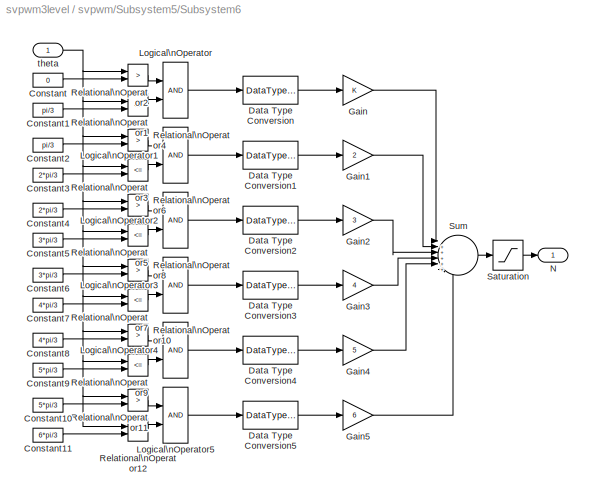
BLOCK [SubSystem] svpwm/Subsystem5/Subsystem6
  FunctionWithSeparateData = off
  MaskHideContents = off
  MinAlgLoopOccurrences = off
  Opaque = off
  Ports = [1, 1]
  PropExecContextOutsideSubsystem = off
  RTWSystemCode = Auto
  RequestExecContextInheritance = off
BLOCK [Constant] svpwm/Subsystem5/Subsystem6/Constant
  OutDataType = sfix(16)
  OutScaling = 2^0
  Value = 0
BLOCK [Constant] svpwm/Subsystem5/Subsystem6/Constant1
  OutDataType = sfix(16)
  OutScaling = 2^0
  Value = pi/3
BLOCK [Constant] svpwm/Subsystem5/Subsystem6/Constant10
  OutDataType = sfix(16)
  OutScaling = 2^0
  Value = 5*pi/3
BLOCK [Constant] svpwm/Subsystem5/Subsystem6/Constant11
  OutDataType = sfix(16)
  OutScaling = 2^0
  Value = 6*pi/3
BLOCK [Constant] svpwm/Subsystem5/Subsystem6/Constant2
  OutDataType = sfix(16)
  OutScaling = 2^0
  Value = pi/3
BLOCK [Constant] svpwm/Subsystem5/Subsystem6/Constant3
  OutDataType = sfix(16)
  OutScaling = 2^0
  Value = 2*pi/3
BLOCK [Constant] svpwm/Subsystem5/Subsystem6/Constant4
  OutDataType = sfix(16)
  OutScaling = 2^0
  Value = 2*pi/3
BLOCK [Constant] svpwm/Subsystem5/Subsystem6/Constant5
  OutDataType = sfix(16)
  OutScaling = 2^0
  Value = 3*pi/3
BLOCK [Constant] svpwm/Subsystem5/Subsystem6/Constant6
  OutDataType = sfix(16)
  OutScaling = 2^0
  Value = 3*pi/3
BLOCK [Constant] svpwm/Subsystem5/Subsystem6/Constant7
  OutDataType = sfix(16)
  OutScaling = 2^0
  Value = 4*pi/3
BLOCK [Constant] svpwm/Subsystem5/Subsystem6/Constant8
  OutDataType = sfix(16)
  OutScaling = 2^0
  Value = 4*pi/3
BLOCK [Constant] svpwm/Subsystem5/Subsystem6/Constant9
  OutDataType = sfix(16)
  OutScaling = 2^0
  Value = 5*pi/3
BLOCK [DataTypeConversion] svpwm/Subsystem5/Subsystem6/Data Type Conversion
  OutDataType = sfix(16)
  OutScaling = 2^0
BLOCK [DataTypeConversion] svpwm/Subsystem5/Subsystem6/Data Type Conversion1
  OutDataType = sfix(16)
  OutScaling = 2^0
BLOCK [DataTypeConversion] svpwm/Subsystem5/Subsystem6/Data Type Conversion2
  OutDataType = sfix(16)
  OutScaling = 2^0
BLOCK [DataTypeConversion] svpwm/Subsystem5/Subsystem6/Data Type Conversion3
  OutDataType = sfix(16)
  OutScaling = 2^0
BLOCK [DataTypeConversion] svpwm/Subsystem5/Subsystem6/Data Type Conversion4
  OutDataType = sfix(16)
  OutScaling = 2^0
BLOCK [DataTypeConversion] svpwm/Subsystem5/Subsystem6/Data Type Conversion5
  OutDataType = sfix(16)
  OutScaling = 2^0
BLOCK [Gain] svpwm/Subsystem5/Subsystem6/Gain
  OutDataType = sfix(16)
  OutScaling = 2^0
  ParameterDataType = sfix(16)
  ParameterScaling = 2^0
BLOCK [Gain] svpwm/Subsystem5/Subsystem6/Gain1
  Gain = 2
  OutDataType = sfix(16)
  OutScaling = 2^0
  ParameterDataType = sfix(16)
  ParameterScaling = 2^0
BLOCK [Gain] svpwm/Subsystem5/Subsystem6/Gain2
  Gain = 3
  OutDataType = sfix(16)
  OutScaling = 2^0
  ParameterDataType = sfix(16)
  ParameterScaling = 2^0
BLOCK [Gain] svpwm/Subsystem5/Subsystem6/Gain3
  Gain = 4
  OutDataType = sfix(16)
  OutScaling = 2^0
  ParameterDataType = sfix(16)
  ParameterScaling = 2^0
BLOCK [Gain] svpwm/Subsystem5/Subsystem6/Gain4
  Gain = 5
  OutDataType = sfix(16)
  OutScaling = 2^0
  ParameterDataType = sfix(16)
  ParameterScaling = 2^0
BLOCK [Gain] svpwm/Subsystem5/Subsystem6/Gain5
  Gain = 6
  OutDataType = sfix(16)
  OutScaling = 2^0
  ParameterDataType = sfix(16)
  ParameterScaling = 2^0
BLOCK [Logic] svpwm/Subsystem5/Subsystem6/Logical\nOperator
  Ports = [2, 1]
BLOCK [Logic] svpwm/Subsystem5/Subsystem6/Logical\nOperator1
  Ports = [2, 1]
BLOCK [Logic] svpwm/Subsystem5/Subsystem6/Logical\nOperator2
  Ports = [2, 1]
BLOCK [Logic] svpwm/Subsystem5/Subsystem6/Logical\nOperator3
  Ports = [2, 1]
BLOCK [Logic] svpwm/Subsystem5/Subsystem6/Logical\nOperator4
  Ports = [2, 1]
BLOCK [Logic] svpwm/Subsystem5/Subsystem6/Logical\nOperator5
  Ports = [2, 1]
BLOCK [Outport] svpwm/Subsystem5/Subsystem6/N
  IconDisplay = Port number
  OutDataType = sfix(16)
  OutScaling = 2^0
BLOCK [RelationalOperator] svpwm/Subsystem5/Subsystem6/Relational\nOperator1
  Operator = <=
BLOCK [RelationalOperator] svpwm/Subsystem5/Subsystem6/Relational\nOperator10
  Operator = >
BLOCK [RelationalOperator] svpwm/Subsystem5/Subsystem6/Relational\nOperator11
  Operator = >
BLOCK [RelationalOperator] svpwm/Subsystem5/Subsystem6/Relational\nOperator12
  Operator = <=
BLOCK [RelationalOperator] svpwm/Subsystem5/Subsystem6/Relational\nOperator2
  Operator = >
BLOCK [RelationalOperator] svpwm/Subsystem5/Subsystem6/Relational\nOperator3
  Operator = <=
BLOCK [RelationalOperator] svpwm/Subsystem5/Subsystem6/Relational\nOperator4
  Operator = >
BLOCK [RelationalOperator] svpwm/Subsystem5/Subsystem6/Relational\nOperator5
  Operator = <=
BLOCK [RelationalOperator] svpwm/Subsystem5/Subsystem6/Relational\nOperator6
  Operator = >
BLOCK [RelationalOperator] svpwm/Subsystem5/Subsystem6/Relational\nOperator7
  Operator = <=
BLOCK [RelationalOperator] svpwm/Subsystem5/Subsystem6/Relational\nOperator8
  Operator = >
BLOCK [RelationalOperator] svpwm/Subsystem5/Subsystem6/Relational\nOperator9
  Operator = <=
BLOCK [Saturate] svpwm/Subsystem5/Subsystem6/Saturation
  LowerLimit = 1
  UpperLimit = 6
BLOCK [Sum] svpwm/Subsystem5/Subsystem6/Sum
  IconShape = round
  Inputs = |++++++
  OutDataType = sfix(16)
  OutScaling = 2^0
  Ports = [6, 1]
BLOCK [Inport] svpwm/Subsystem5/Subsystem6/theta
  IconDisplay = Port number
  OutDataType = sfix(16)
  OutScaling = 2^0
BLOCK [Switch] svpwm/Subsystem5/Switch
  Criteria = u2 > Threshold
  InputSameDT = off
  OutDataType = fixdt(1, 16)
  OutScaling = 2^0
  SaturateOnIntegerOverflow = off
BLOCK [Inport] svpwm/Subsystem5/Valfa
  IconDisplay = Port number
  OutDataType = sfix(16)
  OutScaling = 2^0
BLOCK [Inport] svpwm/Subsystem5/Vbeta
  IconDisplay = Port number
  OutDataType = sfix(16)
  OutScaling = 2^0
  Port = 2
BLOCK [Outport] svpwm/Subsystem5/theta
  IconDisplay = Port number
  OutDataType = sfix(16)
  OutScaling = 2^0
  Port = 2
BLOCK [Display] svpwm/Subsystem5/theta1
  Decimation = 1
  Lockdown = off
  Ports = [1]
BLOCK [Outport] svpwm/Subsystem5/|u|
  IconDisplay = Port number
  OutDataType = sfix(16)
  OutScaling = 2^0
BLOCK [SubSystem] svpwm/Switch Status
  FunctionWithSeparateData = off
  MaskHideContents = off
  MinAlgLoopOccurrences = off
  Opaque = off
  Ports = [1, 1]
  PropExecContextOutsideSubsystem = off
  RTWSystemCode = Auto
  RequestExecContextInheritance = off
BLOCK [Constant] svpwm/Switch Status/Constant
  OutDataType = sfix(16)
  OutScaling = 2^0
  Value = 2
BLOCK [Constant] svpwm/Switch Status/Constant11
  OutDataType = sfix(16)
  OutScaling = 2^0
  Value = [1 1 0 0]
BLOCK [Constant] svpwm/Switch Status/Constant12
  OutDataType = sfix(16)
  OutScaling = 2^0
  Value = [0 0 1 1]
BLOCK [Constant] svpwm/Switch Status/Constant13
  OutDataType = sfix(16)
  OutScaling = 2^0
  Value = [0 1 1 0]
BLOCK [Demux] svpwm/Switch Status/Demux
  Outputs = 3
  Ports = [1, 3]
BLOCK [MultiPortSwitch] svpwm/Switch Status/Multiport\nSwitch
  OutDataType = sfix(16)
  OutScaling = 2^0
  Ports = [4, 1]
  SaturateOnIntegerOverflow = off
BLOCK [MultiPortSwitch] svpwm/Switch Status/Multiport\nSwitch3
  OutDataType = sfix(16)
  OutScaling = 2^0
  Ports = [4, 1]
  SaturateOnIntegerOverflow = off
BLOCK [MultiPortSwitch] svpwm/Switch Status/Multiport\nSwitch4
  OutDataType = sfix(16)
  OutScaling = 2^0
  Ports = [4, 1]
  SaturateOnIntegerOverflow = off
BLOCK [Mux] svpwm/Switch Status/Mux
  DisplayOption = bar
  Inputs = [4 4 4]
  Ports = [3, 1]
BLOCK [Outport] svpwm/Switch Status/Pulses
  IconDisplay = Port number
  OutDataType = sfix(16)
  OutScaling = 2^0
BLOCK [Inport] svpwm/Switch Status/State1
  IconDisplay = Port number
  OutDataType = sfix(16)
  OutScaling = 2^0
  PortDimensions = 3
BLOCK [Sum] svpwm/Switch Status/Sum
  OutDataType = sfix(16)
  OutScaling = 2^0
  Ports = [2, 1]
BLOCK [Inport] svpwm/Ts
  IconDisplay = Port number
  OutDataType = sfix(16)
  OutScaling = 2^0
  Port = 5
BLOCK [Inport] svpwm/Va
  IconDisplay = Port number
  OutDataType = sfix(16)
  OutScaling = 2^0
BLOCK [Inport] svpwm/Vb
  IconDisplay = Port number
  OutDataType = sfix(16)
  OutScaling = 2^0
  Port = 2
BLOCK [Inport] svpwm/Vc
  IconDisplay = Port number
  OutDataType = sfix(16)
  OutScaling = 2^0
  Port = 3
BLOCK [Inport] svpwm/Vdc
  IconDisplay = Port number
  OutDataType = sfix(16)
  OutScaling = 2^0
  Port = 4
BLOCK [SubSystem] svpwm/Vector status
  FunctionWithSeparateData = off
  MaskHideContents = off
  MinAlgLoopOccurrences = off
  Opaque = off
  Ports = [3, 1]
  PropExecContextOutsideSubsystem = off
  RTWSystemCode = Auto
  RequestExecContextInheritance = off
BLOCK [SubSystem] svpwm/Vector status/I
  FunctionWithSeparateData = off
  MaskHideContents = off
  MinAlgLoopOccurrences = off
  Opaque = off
  Ports = [2, 1]
  PropExecContextOutsideSubsystem = off
  RTWSystemCode = Auto
  RequestExecContextInheritance = off
BLOCK [SubSystem] svpwm/Vector status/I/1-1
  FunctionWithSeparateData = off
  MaskHideContents = off
  MinAlgLoopOccurrences = off
  Opaque = off
  Ports = [1, 1]
  PropExecContextOutsideSubsystem = off
  RTWSystemCode = Auto
  RequestExecContextInheritance = off
BLOCK [Constant] svpwm/Vector status/I/1-1/Constant1
  OutDataType = sfix(16)
  OutScaling = 2^0
  Value = [0  0  0]
BLOCK [Constant] svpwm/Vector status/I/1-1/Constant11
  OutDataType = sfix(16)
  OutScaling = 2^0
  Value = [0 0 -1]
BLOCK [Constant] svpwm/Vector status/I/1-1/Constant2
  OutDataType = sfix(16)
  OutScaling = 2^0
  Value = [0 -1 -1]
BLOCK [Constant] svpwm/Vector status/I/1-1/Constant3
  OutDataType = sfix(16)
  OutScaling = 2^0
  Value = [0 0 -1]
BLOCK [Constant] svpwm/Vector status/I/1-1/Constant4
  OutDataType = sfix(16)
  OutScaling = 2^0
  Value = [1 0 0]
BLOCK [Constant] svpwm/Vector status/I/1-1/Constant5
  OutDataType = sfix(16)
  OutScaling = 2^0
  Value = [1 0 0]
BLOCK [Constant] svpwm/Vector status/I/1-1/Constant6
  OutDataType = sfix(16)
  OutScaling = 2^0
  Value = [0 0 0]
BLOCK [MultiPortSwitch] svpwm/Vector status/I/1-1/Multiport\nSwitch
  Inputs = 7
  OutDataType = sfix(16)
  OutScaling = 2^0
  Ports = [8, 1]
  SaturateOnIntegerOverflow = off
BLOCK [Outport] svpwm/Vector status/I/1-1/State
  IconDisplay = Port number
  OutDataType = sfix(16)
  OutScaling = 2^0
BLOCK [Inport] svpwm/Vector status/I/1-1/m
  IconDisplay = Port number
  OutDataType = sfix(16)
  OutScaling = 2^0
BLOCK [SubSystem] svpwm/Vector status/I/1-2
  FunctionWithSeparateData = off
  MaskHideContents = off
  MinAlgLoopOccurrences = off
  Opaque = off
  Ports = [1, 1]
  PropExecContextOutsideSubsystem = off
  RTWSystemCode = Auto
  RequestExecContextInheritance = off
BLOCK [Constant] svpwm/Vector status/I/1-2/Constant10
  OutDataType = sfix(16)
  OutScaling = 2^0
  Value = [0 0 0]
BLOCK [Constant] svpwm/Vector status/I/1-2/Constant14
  OutDataType = sfix(16)
  OutScaling = 2^0
  Value = [1 1 0]
BLOCK [Constant] svpwm/Vector status/I/1-2/Constant5
  OutDataType = sfix(16)
  OutScaling = 2^0
  Value = [1 0 0]
BLOCK [Constant] svpwm/Vector status/I/1-2/Constant6
  OutDataType = sfix(16)
  OutScaling = 2^0
  Value = [0 0 0]
BLOCK [Constant] svpwm/Vector status/I/1-2/Constant7
  OutDataType = sfix(16)
  OutScaling = 2^0
  Value = [1 1 0]
BLOCK [Constant] svpwm/Vector status/I/1-2/Constant8
  OutDataType = sfix(16)
  OutScaling = 2^0
  Value = [1 0 0]
BLOCK [Constant] svpwm/Vector status/I/1-2/Constant9
  OutDataType = sfix(16)
  OutScaling = 2^0
  Value = [0 0 -1]
BLOCK [MultiPortSwitch] svpwm/Vector status/I/1-2/Multiport\nSwitch1
  Inputs = 7
  OutDataType = sfix(16)
  OutScaling = 2^0
  Ports = [8, 1]
  SaturateOnIntegerOverflow = off
BLOCK [Outport] svpwm/Vector status/I/1-2/State
  IconDisplay = Port number
  OutDataType = sfix(16)
  OutScaling = 2^0
BLOCK [Inport] svpwm/Vector status/I/1-2/m
  IconDisplay = Port number
  OutDataType = sfix(16)
  OutScaling = 2^0
BLOCK [SubSystem] svpwm/Vector status/I/1-3
  FunctionWithSeparateData = off
  MaskHideContents = off
  MinAlgLoopOccurrences = off
  Opaque = off
  Ports = [1, 1]
  PropExecContextOutsideSubsystem = off
  RTWSystemCode = Auto
  RequestExecContextInheritance = off
BLOCK [Constant] svpwm/Vector status/I/1-3/Constant1
  OutDataType = sfix(16)
  OutScaling = 2^0
  Value = [1 -1 -1]
BLOCK [Constant] svpwm/Vector status/I/1-3/Constant11
  OutDataType = sfix(16)
  OutScaling = 2^0
  Value = [1 0 0]
BLOCK [Constant] svpwm/Vector status/I/1-3/Constant12
  OutDataType = sfix(16)
  OutScaling = 2^0
  Value = [1 0 -1]
BLOCK [Constant] svpwm/Vector status/I/1-3/Constant13
  OutDataType = sfix(16)
  OutScaling = 2^0
  Value = [0 -1 -1]
BLOCK [Constant] svpwm/Vector status/I/1-3/Constant2
  OutDataType = sfix(16)
  OutScaling = 2^0
  Value = [1 0 0]
BLOCK [Constant] svpwm/Vector status/I/1-3/Constant3
  OutDataType = sfix(16)
  OutScaling = 2^0
  Value = [1 0 -1]
BLOCK [Constant] svpwm/Vector status/I/1-3/Constant4
  OutDataType = sfix(16)
  OutScaling = 2^0
  Value = [1 -1 -1]
BLOCK [MultiPortSwitch] svpwm/Vector status/I/1-3/Multiport\nSwitch2
  Inputs = 7
  OutDataType = sfix(16)
  OutScaling = 2^0
  Ports = [8, 1]
  SaturateOnIntegerOverflow = off
BLOCK [Outport] svpwm/Vector status/I/1-3/State
  IconDisplay = Port number
  OutDataType = sfix(16)
  OutScaling = 2^0
BLOCK [Inport] svpwm/Vector status/I/1-3/m
  IconDisplay = Port number
  OutDataType = sfix(16)
  OutScaling = 2^0
BLOCK [SubSystem] svpwm/Vector status/I/1-4
  FunctionWithSeparateData = off
  MaskHideContents = off
  MinAlgLoopOccurrences = off
  Opaque = off
  Ports = [1, 1]
  PropExecContextOutsideSubsystem = off
  RTWSystemCode = Auto
  RequestExecContextInheritance = off
BLOCK [Constant] svpwm/Vector status/I/1-4/Constant1
  OutDataType = sfix(16)
  OutScaling = 2^0
  Value = [0 0 -1]
BLOCK [Constant] svpwm/Vector status/I/1-4/Constant14
  OutDataType = sfix(16)
  OutScaling = 2^0
  Value = [0 0 -1]
BLOCK [Constant] svpwm/Vector status/I/1-4/Constant2
  OutDataType = sfix(16)
  OutScaling = 2^0
  Value = [1 0 -1]
BLOCK [Constant] svpwm/Vector status/I/1-4/Constant3
  OutDataType = sfix(16)
  OutScaling = 2^0
  Value = [1 0 0]
BLOCK [Constant] svpwm/Vector status/I/1-4/Constant6
  OutDataType = sfix(16)
  OutScaling = 2^0
  Value = [1 0 0]
BLOCK [Constant] svpwm/Vector status/I/1-4/Constant7
  OutDataType = sfix(16)
  OutScaling = 2^0
  Value = [1 0 -1]
BLOCK [Constant] svpwm/Vector status/I/1-4/Constant8
  OutDataType = sfix(16)
  OutScaling = 2^0
  Value = [0 -1 -1]
BLOCK [MultiPortSwitch] svpwm/Vector status/I/1-4/Multiport\nSwitch1
  Inputs = 7
  OutDataType = sfix(16)
  OutScaling = 2^0
  Ports = [8, 1]
  SaturateOnIntegerOverflow = off
BLOCK [Outport] svpwm/Vector status/I/1-4/State3
  IconDisplay = Port number
  OutDataType = sfix(16)
  OutScaling = 2^0
BLOCK [Inport] svpwm/Vector status/I/1-4/m
  IconDisplay = Port number
  OutDataType = sfix(16)
  OutScaling = 2^0
BLOCK [SubSystem] svpwm/Vector status/I/1-5
  FunctionWithSeparateData = off
  MaskHideContents = off
  MinAlgLoopOccurrences = off
  Opaque = off
  Ports = [1, 1]
  PropExecContextOutsideSubsystem = off
  RTWSystemCode = Auto
  RequestExecContextInheritance = off
BLOCK [Constant] svpwm/Vector status/I/1-5/Constant15
  OutDataType = sfix(16)
  OutScaling = 2^0
  Value = [1 0  0]
BLOCK [Constant] svpwm/Vector status/I/1-5/Constant16
  OutDataType = sfix(16)
  OutScaling = 2^0
  Value = [1 0 -1]
BLOCK [Constant] svpwm/Vector status/I/1-5/Constant17
  OutDataType = sfix(16)
  OutScaling = 2^0
  Value = [1 0 -1]
BLOCK [Constant] svpwm/Vector status/I/1-5/Constant18
  OutDataType = sfix(16)
  OutScaling = 2^0
  Value = [1 1 0]
BLOCK [Constant] svpwm/Vector status/I/1-5/Constant19
  OutDataType = sfix(16)
  OutScaling = 2^0
  Value = [1 0 0]
BLOCK [Constant] svpwm/Vector status/I/1-5/Constant20
  OutDataType = sfix(16)
  OutScaling = 2^0
  Value = [0 0 -1]
BLOCK [Constant] svpwm/Vector status/I/1-5/Constant21
  OutDataType = sfix(16)
  OutScaling = 2^0
  Value = [1 1 0]
BLOCK [MultiPortSwitch] svpwm/Vector status/I/1-5/Multiport\nSwitch3
  Inputs = 7
  OutDataType = sfix(16)
  OutScaling = 2^0
  Ports = [8, 1]
  SaturateOnIntegerOverflow = off
BLOCK [Outport] svpwm/Vector status/I/1-5/State
  IconDisplay = Port number
  OutDataType = sfix(16)
  OutScaling = 2^0
BLOCK [Inport] svpwm/Vector status/I/1-5/m
  IconDisplay = Port number
  OutDataType = sfix(16)
  OutScaling = 2^0
BLOCK [SubSystem] svpwm/Vector status/I/1-6
  FunctionWithSeparateData = off
  MaskHideContents = off
  MinAlgLoopOccurrences = off
  Opaque = off
  Ports = [1, 1]
  PropExecContextOutsideSubsystem = off
  RTWSystemCode = Auto
  RequestExecContextInheritance = off
BLOCK [Constant] svpwm/Vector status/I/1-6/Constant22
  OutDataType = sfix(16)
  OutScaling = 2^0
  Value = [1 1 -1]
BLOCK [Constant] svpwm/Vector status/I/1-6/Constant23
  OutDataType = sfix(16)
  OutScaling = 2^0
  Value = [1 0 -1]
BLOCK [Constant] svpwm/Vector status/I/1-6/Constant24
  OutDataType = sfix(16)
  OutScaling = 2^0
  Value = [1 0 -1]
BLOCK [Constant] svpwm/Vector status/I/1-6/Constant25
  OutDataType = sfix(16)
  OutScaling = 2^0
  Value = [1 1 0]
BLOCK [Constant] svpwm/Vector status/I/1-6/Constant26
  OutDataType = sfix(16)
  OutScaling = 2^0
  Value = [1 1 -1]
BLOCK [Constant] svpwm/Vector status/I/1-6/Constant27
  OutDataType = sfix(16)
  OutScaling = 2^0
  Value = [0 0 -1]
BLOCK [Constant] svpwm/Vector status/I/1-6/Constant28
  OutDataType = sfix(16)
  OutScaling = 2^0
  Value = [1 1 0]
BLOCK [MultiPortSwitch] svpwm/Vector status/I/1-6/Multiport\nSwitch4
  Inputs = 7
  OutDataType = sfix(16)
  OutScaling = 2^0
  Ports = [8, 1]
  SaturateOnIntegerOverflow = off
BLOCK [Outport] svpwm/Vector status/I/1-6/State5
  IconDisplay = Port number
  OutDataType = sfix(16)
  OutScaling = 2^0
BLOCK [Inport] svpwm/Vector status/I/1-6/m
  IconDisplay = Port number
  OutDataType = sfix(16)
  OutScaling = 2^0
BLOCK [MultiPortSwitch] svpwm/Vector status/I/Multiport\nSwitch
  Inputs = 6
  OutDataType = sfix(16)
  OutScaling = 2^0
  Ports = [7, 1]
  SaturateOnIntegerOverflow = off
BLOCK [Outport] svpwm/Vector status/I/State
  IconDisplay = Port number
  OutDataType = sfix(16)
  OutScaling = 2^0
BLOCK [Inport] svpwm/Vector status/I/m
  IconDisplay = Port number
  OutDataType = sfix(16)
  OutScaling = 2^0
  Port = 2
BLOCK [Inport] svpwm/Vector status/I/n
  IconDisplay = Port number
  OutDataType = sfix(16)
  OutScaling = 2^0
BLOCK [SubSystem] svpwm/Vector status/II
  FunctionWithSeparateData = off
  MaskHideContents = off
  MinAlgLoopOccurrences = off
  Opaque = off
  Ports = [2, 1]
  PropExecContextOutsideSubsystem = off
  RTWSystemCode = Auto
  RequestExecContextInheritance = off
BLOCK [SubSystem] svpwm/Vector status/II/2-1
  FunctionWithSeparateData = off
  MaskHideContents = off
  MinAlgLoopOccurrences = off
  Opaque = off
  Ports = [1, 1]
  PropExecContextOutsideSubsystem = off
  RTWSystemCode = Auto
  RequestExecContextInheritance = off
BLOCK [Constant] svpwm/Vector status/II/2-1/Constant1
  OutDataType = sfix(16)
  OutScaling = 2^0
  Value = [0 0 0]
BLOCK [Constant] svpwm/Vector status/II/2-1/Constant11
  OutDataType = sfix(16)
  OutScaling = 2^0
  Value = [0 0 0]
BLOCK [Constant] svpwm/Vector status/II/2-1/Constant12
  OutDataType = sfix(16)
  OutScaling = 2^0
  Value = [1 1 0]
BLOCK [Constant] svpwm/Vector status/II/2-1/Constant13
  OutDataType = sfix(16)
  OutScaling = 2^0
  Value = [0 1 0]
BLOCK [Constant] svpwm/Vector status/II/2-1/Constant2
  OutDataType = sfix(16)
  OutScaling = 2^0
  Value = [0 0 -1]
BLOCK [Constant] svpwm/Vector status/II/2-1/Constant3
  OutDataType = sfix(16)
  OutScaling = 2^0
  Value = [0 1 0]
BLOCK [Constant] svpwm/Vector status/II/2-1/Constant4
  OutDataType = sfix(16)
  OutScaling = 2^0
  Value = [1 1 0]
BLOCK [MultiPortSwitch] svpwm/Vector status/II/2-1/Multiport\nSwitch
  Inputs = 7
  OutDataType = sfix(16)
  OutScaling = 2^0
  Ports = [8, 1]
  SaturateOnIntegerOverflow = off
BLOCK [Outport] svpwm/Vector status/II/2-1/State
  IconDisplay = Port number
  OutDataType = sfix(16)
  OutScaling = 2^0
BLOCK [Inport] svpwm/Vector status/II/2-1/m
  IconDisplay = Port number
  OutDataType = sfix(16)
  OutScaling = 2^0
BLOCK [SubSystem] svpwm/Vector status/II/2-2
  FunctionWithSeparateData = off
  MaskHideContents = off
  MinAlgLoopOccurrences = off
  Opaque = off
  Ports = [1, 1]
  PropExecContextOutsideSubsystem = off
  RTWSystemCode = Auto
  RequestExecContextInheritance = off
BLOCK [Constant] svpwm/Vector status/II/2-2/Constant1
  OutDataType = sfix(16)
  OutScaling = 2^0
  Value = [0 0 -1]
BLOCK [Constant] svpwm/Vector status/II/2-2/Constant2
  OutDataType = sfix(16)
  OutScaling = 2^0
  Value = [0 0 0]
BLOCK [Constant] svpwm/Vector status/II/2-2/Constant3
  OutDataType = sfix(16)
  OutScaling = 2^0
  Value = [0 1 0]
BLOCK [Constant] svpwm/Vector status/II/2-2/Constant6
  OutDataType = sfix(16)
  OutScaling = 2^0
  Value = [0 0 -1]
BLOCK [Constant] svpwm/Vector status/II/2-2/Constant7
  OutDataType = sfix(16)
  OutScaling = 2^0
  Value = [0 1 0]
BLOCK [Constant] svpwm/Vector status/II/2-2/Constant8
  OutDataType = sfix(16)
  OutScaling = 2^0
  Value = [0 0 0]
BLOCK [Constant] svpwm/Vector status/II/2-2/Constant9
  OutDataType = sfix(16)
  OutScaling = 2^0
  Value = [-1 0 -1]
BLOCK [MultiPortSwitch] svpwm/Vector status/II/2-2/Multiport\nSwitch1
  Inputs = 7
  OutDataType = sfix(16)
  OutScaling = 2^0
  Ports = [8, 1]
  SaturateOnIntegerOverflow = off
BLOCK [Outport] svpwm/Vector status/II/2-2/State1
  IconDisplay = Port number
  OutDataType = sfix(16)
  OutScaling = 2^0
BLOCK [Inport] svpwm/Vector status/II/2-2/m
  IconDisplay = Port number
  OutDataType = sfix(16)
  OutScaling = 2^0
BLOCK [SubSystem] svpwm/Vector status/II/2-3
  FunctionWithSeparateData = off
  MaskHideContents = off
  MinAlgLoopOccurrences = off
  Opaque = off
  Ports = [1, 1]
  PropExecContextOutsideSubsystem = off
  RTWSystemCode = Auto
  RequestExecContextInheritance = off
BLOCK [Constant] svpwm/Vector status/II/2-3/Constant1
  OutDataType = sfix(16)
  OutScaling = 2^0
  Value = [1 1 0]
BLOCK [Constant] svpwm/Vector status/II/2-3/Constant11
  OutDataType = sfix(16)
  OutScaling = 2^0
  Value = [1 1 0]
BLOCK [Constant] svpwm/Vector status/II/2-3/Constant12
  OutDataType = sfix(16)
  OutScaling = 2^0
  Value = [1 1 -1]
BLOCK [Constant] svpwm/Vector status/II/2-3/Constant13
  OutDataType = sfix(16)
  OutScaling = 2^0
  Value = [0 0 -1]
BLOCK [Constant] svpwm/Vector status/II/2-3/Constant2
  OutDataType = sfix(16)
  OutScaling = 2^0
  Value = [1 1 -1]
BLOCK [Constant] svpwm/Vector status/II/2-3/Constant3
  OutDataType = sfix(16)
  OutScaling = 2^0
  Value = [0 1 -1]
BLOCK [Constant] svpwm/Vector status/II/2-3/Constant4
  OutDataType = sfix(16)
  OutScaling = 2^0
  Value = [0 1 -1]
BLOCK [MultiPortSwitch] svpwm/Vector status/II/2-3/Multiport\nSwitch2
  Inputs = 7
  OutDataType = sfix(16)
  OutScaling = 2^0
  Ports = [8, 1]
  SaturateOnIntegerOverflow = off
BLOCK [Outport] svpwm/Vector status/II/2-3/State2
  IconDisplay = Port number
  OutDataType = sfix(16)
  OutScaling = 2^0
BLOCK [Inport] svpwm/Vector status/II/2-3/m
  IconDisplay = Port number
  OutDataType = sfix(16)
  OutScaling = 2^0
BLOCK [SubSystem] svpwm/Vector status/II/2-4
  FunctionWithSeparateData = off
  MaskHideContents = off
  MinAlgLoopOccurrences = off
  Opaque = off
  Ports = [1, 1]
  PropExecContextOutsideSubsystem = off
  RTWSystemCode = Auto
  RequestExecContextInheritance = off
BLOCK [Constant] svpwm/Vector status/II/2-4/Constant1
  OutDataType = sfix(16)
  OutScaling = 2^0
  Value = [0 1 -1]
BLOCK [Constant] svpwm/Vector status/II/2-4/Constant14
  OutDataType = sfix(16)
  OutScaling = 2^0
  Value = [0 1 -1]
BLOCK [Constant] svpwm/Vector status/II/2-4/Constant2
  OutDataType = sfix(16)
  OutScaling = 2^0
  Value = [0 1 0]
BLOCK [Constant] svpwm/Vector status/II/2-4/Constant3
  OutDataType = sfix(16)
  OutScaling = 2^0
  Value = [1 1 0]
BLOCK [Constant] svpwm/Vector status/II/2-4/Constant6
  OutDataType = sfix(16)
  OutScaling = 2^0
  Value = [1 1 0]
BLOCK [Constant] svpwm/Vector status/II/2-4/Constant7
  OutDataType = sfix(16)
  OutScaling = 2^0
  Value = [0 1 0]
BLOCK [Constant] svpwm/Vector status/II/2-4/Constant8
  OutDataType = sfix(16)
  OutScaling = 2^0
  Value = [0 0 -1]
BLOCK [MultiPortSwitch] svpwm/Vector status/II/2-4/Multiport\nSwitch1
  Inputs = 7
  OutDataType = sfix(16)
  OutScaling = 2^0
  Ports = [8, 1]
  SaturateOnIntegerOverflow = off
BLOCK [Outport] svpwm/Vector status/II/2-4/State
  IconDisplay = Port number
  OutDataType = sfix(16)
  OutScaling = 2^0
BLOCK [Inport] svpwm/Vector status/II/2-4/m
  IconDisplay = Port number
  OutDataType = sfix(16)
  OutScaling = 2^0
BLOCK [SubSystem] svpwm/Vector status/II/2-5
  FunctionWithSeparateData = off
  MaskHideContents = off
  MinAlgLoopOccurrences = off
  Opaque = off
  Ports = [1, 1]
  PropExecContextOutsideSubsystem = off
  RTWSystemCode = Auto
  RequestExecContextInheritance = off
BLOCK [Constant] svpwm/Vector status/II/2-5/Constant1
  OutDataType = sfix(16)
  OutScaling = 2^0
  Value = [0 0 -1]
BLOCK [Constant] svpwm/Vector status/II/2-5/Constant16
  OutDataType = sfix(16)
  OutScaling = 2^0
  Value = [0 0 -1]
BLOCK [Constant] svpwm/Vector status/II/2-5/Constant18
  OutDataType = sfix(16)
  OutScaling = 2^0
  Value = [0 1 0]
BLOCK [Constant] svpwm/Vector status/II/2-5/Constant19
  OutDataType = sfix(16)
  OutScaling = 2^0
  Value = [0 1 -1]
BLOCK [Constant] svpwm/Vector status/II/2-5/Constant2
  OutDataType = sfix(16)
  OutScaling = 2^0
  Value = [0 1 -1]
BLOCK [Constant] svpwm/Vector status/II/2-5/Constant20
  OutDataType = sfix(16)
  OutScaling = 2^0
  Value = [-1 0 -1]
BLOCK [Constant] svpwm/Vector status/II/2-5/Constant3
  OutDataType = sfix(16)
  OutScaling = 2^0
  Value = [0 1 0]
BLOCK [MultiPortSwitch] svpwm/Vector status/II/2-5/Multiport\nSwitch3
  Inputs = 7
  OutDataType = sfix(16)
  OutScaling = 2^0
  Ports = [8, 1]
  SaturateOnIntegerOverflow = off
BLOCK [Outport] svpwm/Vector status/II/2-5/State
  IconDisplay = Port number
  OutDataType = sfix(16)
  OutScaling = 2^0
BLOCK [Inport] svpwm/Vector status/II/2-5/m
  IconDisplay = Port number
  OutDataType = sfix(16)
  OutScaling = 2^0
BLOCK [SubSystem] svpwm/Vector status/II/2-6
  FunctionWithSeparateData = off
  MaskHideContents = off
  MinAlgLoopOccurrences = off
  Opaque = off
  Ports = [1, 1]
  PropExecContextOutsideSubsystem = off
  RTWSystemCode = Auto
  RequestExecContextInheritance = off
BLOCK [Constant] svpwm/Vector status/II/2-6/Constant1
  OutDataType = sfix(16)
  OutScaling = 2^0
  Value = [-1 1 -1]
BLOCK [Constant] svpwm/Vector status/II/2-6/Constant2
  OutDataType = sfix(16)
  OutScaling = 2^0
  Value = [0 1 -1]
BLOCK [Constant] svpwm/Vector status/II/2-6/Constant23
  OutDataType = sfix(16)
  OutScaling = 2^0
  Value = [-1 1 -1]
BLOCK [Constant] svpwm/Vector status/II/2-6/Constant25
  OutDataType = sfix(16)
  OutScaling = 2^0
  Value = [0 1 0]
BLOCK [Constant] svpwm/Vector status/II/2-6/Constant26
  OutDataType = sfix(16)
  OutScaling = 2^0
  Value = [0 1 -1]
BLOCK [Constant] svpwm/Vector status/II/2-6/Constant27
  OutDataType = sfix(16)
  OutScaling = 2^0
  Value = [-1 0  -1]
BLOCK [Constant] svpwm/Vector status/II/2-6/Constant3
  OutDataType = sfix(16)
  OutScaling = 2^0
  Value = [0 1 0]
BLOCK [MultiPortSwitch] svpwm/Vector status/II/2-6/Multiport\nSwitch4
  Inputs = 7
  OutDataType = sfix(16)
  OutScaling = 2^0
  Ports = [8, 1]
  SaturateOnIntegerOverflow = off
BLOCK [Outport] svpwm/Vector status/II/2-6/State
  IconDisplay = Port number
  OutDataType = sfix(16)
  OutScaling = 2^0
BLOCK [Inport] svpwm/Vector status/II/2-6/m
  IconDisplay = Port number
  OutDataType = sfix(16)
  OutScaling = 2^0
BLOCK [MultiPortSwitch] svpwm/Vector status/II/Multiport\nSwitch1
  Inputs = 6
  OutDataType = sfix(16)
  OutScaling = 2^0
  Ports = [7, 1]
  SaturateOnIntegerOverflow = off
BLOCK [Outport] svpwm/Vector status/II/State
  IconDisplay = Port number
  OutDataType = sfix(16)
  OutScaling = 2^0
BLOCK [Inport] svpwm/Vector status/II/m
  IconDisplay = Port number
  OutDataType = sfix(16)
  OutScaling = 2^0
  Port = 2
BLOCK [Inport] svpwm/Vector status/II/n
  IconDisplay = Port number
  OutDataType = sfix(16)
  OutScaling = 2^0
BLOCK [SubSystem] svpwm/Vector status/III
  FunctionWithSeparateData = off
  MaskHideContents = off
  MinAlgLoopOccurrences = off
  Opaque = off
  Ports = [2, 1]
  PropExecContextOutsideSubsystem = off
  RTWSystemCode = Auto
  RequestExecContextInheritance = off
BLOCK [SubSystem] svpwm/Vector status/III/3-1
  FunctionWithSeparateData = off
  MaskHideContents = off
  MinAlgLoopOccurrences = off
  Opaque = off
  Ports = [1, 1]
  PropExecContextOutsideSubsystem = off
  RTWSystemCode = Auto
  RequestExecContextInheritance = off
BLOCK [Constant] svpwm/Vector status/III/3-1/Constant1
  OutDataType = sfix(16)
  OutScaling = 2^0
  Value = [-1 0 0]
BLOCK [Constant] svpwm/Vector status/III/3-1/Constant11
  OutDataType = sfix(16)
  OutScaling = 2^0
  Value = [-1 0 0]
BLOCK [Constant] svpwm/Vector status/III/3-1/Constant12
  OutDataType = sfix(16)
  OutScaling = 2^0
  Value = [0 1 0]
BLOCK [Constant] svpwm/Vector status/III/3-1/Constant13
  OutDataType = sfix(16)
  OutScaling = 2^0
  Value = [0 0 0]
BLOCK [Constant] svpwm/Vector status/III/3-1/Constant2
  OutDataType = sfix(16)
  OutScaling = 2^0
  Value = [-1 0 -1]
BLOCK [Constant] svpwm/Vector status/III/3-1/Constant3
  OutDataType = sfix(16)
  OutScaling = 2^0
  Value = [0 0 0]
BLOCK [Constant] svpwm/Vector status/III/3-1/Constant4
  OutDataType = sfix(16)
  OutScaling = 2^0
  Value = [0 1 0]
BLOCK [MultiPortSwitch] svpwm/Vector status/III/3-1/Multiport\nSwitch
  Inputs = 7
  OutDataType = sfix(16)
  OutScaling = 2^0
  Ports = [8, 1]
  SaturateOnIntegerOverflow = off
BLOCK [Outport] svpwm/Vector status/III/3-1/State
  IconDisplay = Port number
  OutDataType = sfix(16)
  OutScaling = 2^0
BLOCK [Inport] svpwm/Vector status/III/3-1/m
  IconDisplay = Port number
  OutDataType = sfix(16)
  OutScaling = 2^0
BLOCK [SubSystem] svpwm/Vector status/III/3-2
  FunctionWithSeparateData = off
  MaskHideContents = off
  MinAlgLoopOccurrences = off
  Opaque = off
  Ports = [1, 1]
  PropExecContextOutsideSubsystem = off
  RTWSystemCode = Auto
  RequestExecContextInheritance = off
BLOCK [Constant] svpwm/Vector status/III/3-2/Constant1
  OutDataType = sfix(16)
  OutScaling = 2^0
  Value = [0 0 0]
BLOCK [Constant] svpwm/Vector status/III/3-2/Constant2
  OutDataType = sfix(16)
  OutScaling = 2^0
  Value = [0 1 0]
BLOCK [Constant] svpwm/Vector status/III/3-2/Constant3
  OutDataType = sfix(16)
  OutScaling = 2^0
  Value = [0 1 1]
BLOCK [Constant] svpwm/Vector status/III/3-2/Constant6
  OutDataType = sfix(16)
  OutScaling = 2^0
  Value = [0 0 0]
BLOCK [Constant] svpwm/Vector status/III/3-2/Constant7
  OutDataType = sfix(16)
  OutScaling = 2^0
  Value = [0 1 1]
BLOCK [Constant] svpwm/Vector status/III/3-2/Constant8
  OutDataType = sfix(16)
  OutScaling = 2^0
  Value = [0 1 0]
BLOCK [Constant] svpwm/Vector status/III/3-2/Constant9
  OutDataType = sfix(16)
  OutScaling = 2^0
  Value = [-1 0 0]
BLOCK [MultiPortSwitch] svpwm/Vector status/III/3-2/Multiport\nSwitch1
  Inputs = 7
  OutDataType = sfix(16)
  OutScaling = 2^0
  Ports = [8, 1]
  SaturateOnIntegerOverflow = off
BLOCK [Outport] svpwm/Vector status/III/3-2/State
  IconDisplay = Port number
  OutDataType = sfix(16)
  OutScaling = 2^0
BLOCK [Inport] svpwm/Vector status/III/3-2/m
  IconDisplay = Port number
  OutDataType = sfix(16)
  OutScaling = 2^0
BLOCK [SubSystem] svpwm/Vector status/III/3-3
  FunctionWithSeparateData = off
  MaskHideContents = off
  MinAlgLoopOccurrences = off
  Opaque = off
  Ports = [1, 1]
  PropExecContextOutsideSubsystem = off
  RTWSystemCode = Auto
  RequestExecContextInheritance = off
BLOCK [Constant] svpwm/Vector status/III/3-3/Constant1
  OutDataType = sfix(16)
  OutScaling = 2^0
  Value = [-1 1 -1]
BLOCK [Constant] svpwm/Vector status/III/3-3/Constant11
  OutDataType = sfix(16)
  OutScaling = 2^0
  Value = [0 1 0]
BLOCK [Constant] svpwm/Vector status/III/3-3/Constant12
  OutDataType = sfix(16)
  OutScaling = 2^0
  Value = [-1 1 0]
BLOCK [Constant] svpwm/Vector status/III/3-3/Constant13
  OutDataType = sfix(16)
  OutScaling = 2^0
  Value = [-1 0 -1]
BLOCK [Constant] svpwm/Vector status/III/3-3/Constant2
  OutDataType = sfix(16)
  OutScaling = 2^0
  Value = [-1 1 0]
BLOCK [Constant] svpwm/Vector status/III/3-3/Constant3
  OutDataType = sfix(16)
  OutScaling = 2^0
  Value = [0 1 0]
BLOCK [Constant] svpwm/Vector status/III/3-3/Constant4
  OutDataType = sfix(16)
  OutScaling = 2^0
  Value = [-1 1 -1]
BLOCK [MultiPortSwitch] svpwm/Vector status/III/3-3/Multiport\nSwitch2
  Inputs = 7
  OutDataType = sfix(16)
  OutScaling = 2^0
  Ports = [8, 1]
  SaturateOnIntegerOverflow = off
BLOCK [Outport] svpwm/Vector status/III/3-3/State2
  IconDisplay = Port number
  OutDataType = sfix(16)
  OutScaling = 2^0
BLOCK [Inport] svpwm/Vector status/III/3-3/m
  IconDisplay = Port number
  OutDataType = sfix(16)
  OutScaling = 2^0
BLOCK [SubSystem] svpwm/Vector status/III/3-4
  FunctionWithSeparateData = off
  MaskHideContents = off
  MinAlgLoopOccurrences = off
  Opaque = off
  Ports = [1, 1]
  PropExecContextOutsideSubsystem = off
  RTWSystemCode = Auto
  RequestExecContextInheritance = off
BLOCK [Constant] svpwm/Vector status/III/3-4/Constant1
  OutDataType = sfix(16)
  OutScaling = 2^0
  Value = [-1 0 0]
BLOCK [Constant] svpwm/Vector status/III/3-4/Constant14
  OutDataType = sfix(16)
  OutScaling = 2^0
  Value = [-1 0 0]
BLOCK [Constant] svpwm/Vector status/III/3-4/Constant2
  OutDataType = sfix(16)
  OutScaling = 2^0
  Value = [-1 1 0]
BLOCK [Constant] svpwm/Vector status/III/3-4/Constant3
  OutDataType = sfix(16)
  OutScaling = 2^0
  Value = [0 1 0]
BLOCK [Constant] svpwm/Vector status/III/3-4/Constant6
  OutDataType = sfix(16)
  OutScaling = 2^0
  Value = [0 1 0]
BLOCK [Constant] svpwm/Vector status/III/3-4/Constant7
  OutDataType = sfix(16)
  OutScaling = 2^0
  Value = [-1 1 0]
BLOCK [Constant] svpwm/Vector status/III/3-4/Constant8
  OutDataType = sfix(16)
  OutScaling = 2^0
  Value = [-1 0 -1]
BLOCK [MultiPortSwitch] svpwm/Vector status/III/3-4/Multiport\nSwitch1
  Inputs = 7
  OutDataType = sfix(16)
  OutScaling = 2^0
  Ports = [8, 1]
  SaturateOnIntegerOverflow = off
BLOCK [Outport] svpwm/Vector status/III/3-4/State
  IconDisplay = Port number
  OutDataType = sfix(16)
  OutScaling = 2^0
BLOCK [Inport] svpwm/Vector status/III/3-4/m
  IconDisplay = Port number
  OutDataType = sfix(16)
  OutScaling = 2^0
BLOCK [SubSystem] svpwm/Vector status/III/3-5
  FunctionWithSeparateData = off
  MaskHideContents = off
  MinAlgLoopOccurrences = off
  Opaque = off
  Ports = [1, 1]
  PropExecContextOutsideSubsystem = off
  RTWSystemCode = Auto
  RequestExecContextInheritance = off
BLOCK [Constant] svpwm/Vector status/III/3-5/Constant1
  OutDataType = sfix(16)
  OutScaling = 2^0
  Value = [-1 1 0]
BLOCK [Constant] svpwm/Vector status/III/3-5/Constant16
  OutDataType = sfix(16)
  OutScaling = 2^0
  Value = [-1 1 0]
BLOCK [Constant] svpwm/Vector status/III/3-5/Constant18
  OutDataType = sfix(16)
  OutScaling = 2^0
  Value = [0 1 1]
BLOCK [Constant] svpwm/Vector status/III/3-5/Constant19
  OutDataType = sfix(16)
  OutScaling = 2^0
  Value = [0 1 0]
BLOCK [Constant] svpwm/Vector status/III/3-5/Constant2
  OutDataType = sfix(16)
  OutScaling = 2^0
  Value = [0 1 0]
BLOCK [Constant] svpwm/Vector status/III/3-5/Constant20
  OutDataType = sfix(16)
  OutScaling = 2^0
  Value = [-1 0 0]
BLOCK [Constant] svpwm/Vector status/III/3-5/Constant3
  OutDataType = sfix(16)
  OutScaling = 2^0
  Value = [0 1 1]
BLOCK [MultiPortSwitch] svpwm/Vector status/III/3-5/Multiport\nSwitch3
  Inputs = 7
  OutDataType = sfix(16)
  OutScaling = 2^0
  Ports = [8, 1]
  SaturateOnIntegerOverflow = off
BLOCK [Outport] svpwm/Vector status/III/3-5/State
  IconDisplay = Port number
  OutDataType = sfix(16)
  OutScaling = 2^0
BLOCK [Inport] svpwm/Vector status/III/3-5/m
  IconDisplay = Port number
  OutDataType = sfix(16)
  OutScaling = 2^0
BLOCK [SubSystem] svpwm/Vector status/III/3-6
  FunctionWithSeparateData = off
  MaskHideContents = off
  MinAlgLoopOccurrences = off
  Opaque = off
  Ports = [1, 1]
  PropExecContextOutsideSubsystem = off
  RTWSystemCode = Auto
  RequestExecContextInheritance = off
BLOCK [Constant] svpwm/Vector status/III/3-6/Constant1
  OutDataType = sfix(16)
  OutScaling = 2^0
  Value = [-1 1 0]
BLOCK [Constant] svpwm/Vector status/III/3-6/Constant2
  OutDataType = sfix(16)
  OutScaling = 2^0
  Value = [-1 1 1]
BLOCK [Constant] svpwm/Vector status/III/3-6/Constant23
  OutDataType = sfix(16)
  OutScaling = 2^0
  Value = [-1 1 0]
BLOCK [Constant] svpwm/Vector status/III/3-6/Constant25
  OutDataType = sfix(16)
  OutScaling = 2^0
  Value = [0 1 1]
BLOCK [Constant] svpwm/Vector status/III/3-6/Constant26
  OutDataType = sfix(16)
  OutScaling = 2^0
  Value = [-1 1 1]
BLOCK [Constant] svpwm/Vector status/III/3-6/Constant27
  OutDataType = sfix(16)
  OutScaling = 2^0
  Value = [-1 0 0]
BLOCK [Constant] svpwm/Vector status/III/3-6/Constant3
  OutDataType = sfix(16)
  OutScaling = 2^0
  Value = [0 1 1]
BLOCK [MultiPortSwitch] svpwm/Vector status/III/3-6/Multiport\nSwitch4
  Inputs = 7
  OutDataType = sfix(16)
  OutScaling = 2^0
  Ports = [8, 1]
  SaturateOnIntegerOverflow = off
BLOCK [Outport] svpwm/Vector status/III/3-6/State
  IconDisplay = Port number
  OutDataType = sfix(16)
  OutScaling = 2^0
BLOCK [Inport] svpwm/Vector status/III/3-6/m
  IconDisplay = Port number
  OutDataType = sfix(16)
  OutScaling = 2^0
BLOCK [MultiPortSwitch] svpwm/Vector status/III/Multiport\nSwitch1
  Inputs = 6
  OutDataType = sfix(16)
  OutScaling = 2^0
  Ports = [7, 1]
  SaturateOnIntegerOverflow = off
BLOCK [Outport] svpwm/Vector status/III/State
  IconDisplay = Port number
  OutDataType = sfix(16)
  OutScaling = 2^0
BLOCK [Inport] svpwm/Vector status/III/m
  IconDisplay = Port number
  OutDataType = sfix(16)
  OutScaling = 2^0
  Port = 2
BLOCK [Inport] svpwm/Vector status/III/n
  IconDisplay = Port number
  OutDataType = sfix(16)
  OutScaling = 2^0
BLOCK [SubSystem] svpwm/Vector status/IV
  FunctionWithSeparateData = off
  MaskHideContents = off
  MinAlgLoopOccurrences = off
  Opaque = off
  Ports = [2, 1]
  PropExecContextOutsideSubsystem = off
  RTWSystemCode = Auto
  RequestExecContextInheritance = off
BLOCK [SubSystem] svpwm/Vector status/IV/4-1
  FunctionWithSeparateData = off
  MaskHideContents = off
  MinAlgLoopOccurrences = off
  Opaque = off
  Ports = [1, 1]
  PropExecContextOutsideSubsystem = off
  RTWSystemCode = Auto
  RequestExecContextInheritance = off
BLOCK [Constant] svpwm/Vector status/IV/4-1/Constant1
  OutDataType = sfix(16)
  OutScaling = 2^0
  Value = [0 0 0]
BLOCK [Constant] svpwm/Vector status/IV/4-1/Constant11
  OutDataType = sfix(16)
  OutScaling = 2^0
  Value = [0 0 0]
BLOCK [Constant] svpwm/Vector status/IV/4-1/Constant12
  OutDataType = sfix(16)
  OutScaling = 2^0
  Value = [0 1 1]
BLOCK [Constant] svpwm/Vector status/IV/4-1/Constant13
  OutDataType = sfix(16)
  OutScaling = 2^0
  Value = [0 0 1]
BLOCK [Constant] svpwm/Vector status/IV/4-1/Constant2
  OutDataType = sfix(16)
  OutScaling = 2^0
  Value = [-1 0 0]
BLOCK [Constant] svpwm/Vector status/IV/4-1/Constant3
  OutDataType = sfix(16)
  OutScaling = 2^0
  Value = [0 0 1]
BLOCK [Constant] svpwm/Vector status/IV/4-1/Constant4
  OutDataType = sfix(16)
  OutScaling = 2^0
  Value = [0 1 1]
BLOCK [MultiPortSwitch] svpwm/Vector status/IV/4-1/Multiport\nSwitch
  Inputs = 7
  OutDataType = sfix(16)
  OutScaling = 2^0
  Ports = [8, 1]
  SaturateOnIntegerOverflow = off
BLOCK [Outport] svpwm/Vector status/IV/4-1/State
  IconDisplay = Port number
  OutDataType = sfix(16)
  OutScaling = 2^0
BLOCK [Inport] svpwm/Vector status/IV/4-1/m
  IconDisplay = Port number
  OutDataType = sfix(16)
  OutScaling = 2^0
BLOCK [SubSystem] svpwm/Vector status/IV/4-2
  FunctionWithSeparateData = off
  MaskHideContents = off
  MinAlgLoopOccurrences = off
  Opaque = off
  Ports = [1, 1]
  PropExecContextOutsideSubsystem = off
  RTWSystemCode = Auto
  RequestExecContextInheritance = off
BLOCK [Constant] svpwm/Vector status/IV/4-2/Constant1
  OutDataType = sfix(16)
  OutScaling = 2^0
  Value = [-1 0 0]
BLOCK [Constant] svpwm/Vector status/IV/4-2/Constant2
  OutDataType = sfix(16)
  OutScaling = 2^0
  Value = [0 0 0]
BLOCK [Constant] svpwm/Vector status/IV/4-2/Constant3
  OutDataType = sfix(16)
  OutScaling = 2^0
  Value = [0 0 1]
BLOCK [Constant] svpwm/Vector status/IV/4-2/Constant6
  OutDataType = sfix(16)
  OutScaling = 2^0
  Value = [-1 0 0]
BLOCK [Constant] svpwm/Vector status/IV/4-2/Constant7
  OutDataType = sfix(16)
  OutScaling = 2^0
  Value = [0 0 1]
BLOCK [Constant] svpwm/Vector status/IV/4-2/Constant8
  OutDataType = sfix(16)
  OutScaling = 2^0
  Value = [0 0 0]
BLOCK [Constant] svpwm/Vector status/IV/4-2/Constant9
  OutDataType = sfix(16)
  OutScaling = 2^0
  Value = [-1 -1 0]
BLOCK [MultiPortSwitch] svpwm/Vector status/IV/4-2/Multiport\nSwitch1
  Inputs = 7
  OutDataType = sfix(16)
  OutScaling = 2^0
  Ports = [8, 1]
  SaturateOnIntegerOverflow = off
BLOCK [Outport] svpwm/Vector status/IV/4-2/State
  IconDisplay = Port number
  OutDataType = sfix(16)
  OutScaling = 2^0
BLOCK [Inport] svpwm/Vector status/IV/4-2/m
  IconDisplay = Port number
  OutDataType = sfix(16)
  OutScaling = 2^0
BLOCK [SubSystem] svpwm/Vector status/IV/4-3
  FunctionWithSeparateData = off
  MaskHideContents = off
  MinAlgLoopOccurrences = off
  Opaque = off
  Ports = [1, 1]
  PropExecContextOutsideSubsystem = off
  RTWSystemCode = Auto
  RequestExecContextInheritance = off
BLOCK [Constant] svpwm/Vector status/IV/4-3/Constant1
  OutDataType = sfix(16)
  OutScaling = 2^0
  Value = [-1 0 1]
BLOCK [Constant] svpwm/Vector status/IV/4-3/Constant11
  OutDataType = sfix(16)
  OutScaling = 2^0
  Value = [0 1  1]
BLOCK [Constant] svpwm/Vector status/IV/4-3/Constant12
  OutDataType = sfix(16)
  OutScaling = 2^0
  Value = [-1 1 1]
BLOCK [Constant] svpwm/Vector status/IV/4-3/Constant13
  OutDataType = sfix(16)
  OutScaling = 2^0
  Value = [-1 0 0]
BLOCK [Constant] svpwm/Vector status/IV/4-3/Constant2
  OutDataType = sfix(16)
  OutScaling = 2^0
  Value = [-1 1 1]
BLOCK [Constant] svpwm/Vector status/IV/4-3/Constant3
  OutDataType = sfix(16)
  OutScaling = 2^0
  Value = [0 1  1]
BLOCK [Constant] svpwm/Vector status/IV/4-3/Constant4
  OutDataType = sfix(16)
  OutScaling = 2^0
  Value = [-1 0 1]
BLOCK [MultiPortSwitch] svpwm/Vector status/IV/4-3/Multiport\nSwitch2
  Inputs = 7
  OutDataType = sfix(16)
  OutScaling = 2^0
  Ports = [8, 1]
  SaturateOnIntegerOverflow = off
BLOCK [Outport] svpwm/Vector status/IV/4-3/State2
  IconDisplay = Port number
  OutDataType = sfix(16)
  OutScaling = 2^0
BLOCK [Inport] svpwm/Vector status/IV/4-3/m
  IconDisplay = Port number
  OutDataType = sfix(16)
  OutScaling = 2^0
BLOCK [SubSystem] svpwm/Vector status/IV/4-4
  FunctionWithSeparateData = off
  MaskHideContents = off
  MinAlgLoopOccurrences = off
  Opaque = off
  Ports = [1, 1]
  PropExecContextOutsideSubsystem = off
  RTWSystemCode = Auto
  RequestExecContextInheritance = off
BLOCK [Constant] svpwm/Vector status/IV/4-4/Constant1
  OutDataType = sfix(16)
  OutScaling = 2^0
  Value = [-1 0 1]
BLOCK [Constant] svpwm/Vector status/IV/4-4/Constant14
  OutDataType = sfix(16)
  OutScaling = 2^0
  Value = [-1 0 1]
BLOCK [Constant] svpwm/Vector status/IV/4-4/Constant2
  OutDataType = sfix(16)
  OutScaling = 2^0
  Value = [0 0 1]
BLOCK [Constant] svpwm/Vector status/IV/4-4/Constant3
  OutDataType = sfix(16)
  OutScaling = 2^0
  Value = [0 1 1]
BLOCK [Constant] svpwm/Vector status/IV/4-4/Constant6
  OutDataType = sfix(16)
  OutScaling = 2^0
  Value = [0 1 1]
BLOCK [Constant] svpwm/Vector status/IV/4-4/Constant7
  OutDataType = sfix(16)
  OutScaling = 2^0
  Value = [0 0 1]
BLOCK [Constant] svpwm/Vector status/IV/4-4/Constant8
  OutDataType = sfix(16)
  OutScaling = 2^0
  Value = [-1 0 0]
BLOCK [MultiPortSwitch] svpwm/Vector status/IV/4-4/Multiport\nSwitch1
  Inputs = 7
  OutDataType = sfix(16)
  OutScaling = 2^0
  Ports = [8, 1]
  SaturateOnIntegerOverflow = off
BLOCK [Outport] svpwm/Vector status/IV/4-4/State
  IconDisplay = Port number
  OutDataType = sfix(16)
  OutScaling = 2^0
BLOCK [Inport] svpwm/Vector status/IV/4-4/m
  IconDisplay = Port number
  OutDataType = sfix(16)
  OutScaling = 2^0
BLOCK [SubSystem] svpwm/Vector status/IV/4-5
  FunctionWithSeparateData = off
  MaskHideContents = off
  MinAlgLoopOccurrences = off
  Opaque = off
  Ports = [1, 1]
  PropExecContextOutsideSubsystem = off
  RTWSystemCode = Auto
  RequestExecContextInheritance = off
BLOCK [Constant] svpwm/Vector status/IV/4-5/Constant1
  OutDataType = sfix(16)
  OutScaling = 2^0
  Value = [0 0 1]
BLOCK [Constant] svpwm/Vector status/IV/4-5/Constant16
  OutDataType = sfix(16)
  OutScaling = 2^0
  Value = [-1 0 0]
BLOCK [Constant] svpwm/Vector status/IV/4-5/Constant18
  OutDataType = sfix(16)
  OutScaling = 2^0
  Value = [0 0 1]
BLOCK [Constant] svpwm/Vector status/IV/4-5/Constant19
  OutDataType = sfix(16)
  OutScaling = 2^0
  Value = [-1 0 1]
BLOCK [Constant] svpwm/Vector status/IV/4-5/Constant2
  OutDataType = sfix(16)
  OutScaling = 2^0
  Value = [-1 0 1]
BLOCK [Constant] svpwm/Vector status/IV/4-5/Constant20
  OutDataType = sfix(16)
  OutScaling = 2^0
  Value = [-1 -1 0]
BLOCK [Constant] svpwm/Vector status/IV/4-5/Constant3
  OutDataType = sfix(16)
  OutScaling = 2^0
  Value = [-1 0 0]
BLOCK [MultiPortSwitch] svpwm/Vector status/IV/4-5/Multiport\nSwitch3
  Inputs = 7
  OutDataType = sfix(16)
  OutScaling = 2^0
  Ports = [8, 1]
  SaturateOnIntegerOverflow = off
BLOCK [Outport] svpwm/Vector status/IV/4-5/State4
  IconDisplay = Port number
  OutDataType = sfix(16)
  OutScaling = 2^0
BLOCK [Inport] svpwm/Vector status/IV/4-5/m
  IconDisplay = Port number
  OutDataType = sfix(16)
  OutScaling = 2^0
BLOCK [SubSystem] svpwm/Vector status/IV/4-6
  FunctionWithSeparateData = off
  MaskHideContents = off
  MinAlgLoopOccurrences = off
  Opaque = off
  Ports = [1, 1]
  PropExecContextOutsideSubsystem = off
  RTWSystemCode = Auto
  RequestExecContextInheritance = off
BLOCK [Constant] svpwm/Vector status/IV/4-6/Constant1
  OutDataType = sfix(16)
  OutScaling = 2^0
  Value = [-1 -1 1]
BLOCK [Constant] svpwm/Vector status/IV/4-6/Constant2
  OutDataType = sfix(16)
  OutScaling = 2^0
  Value = [-1 0 1]
BLOCK [Constant] svpwm/Vector status/IV/4-6/Constant23
  OutDataType = sfix(16)
  OutScaling = 2^0
  Value = [-1 -1 1]
BLOCK [Constant] svpwm/Vector status/IV/4-6/Constant25
  OutDataType = sfix(16)
  OutScaling = 2^0
  Value = [0 0 1]
BLOCK [Constant] svpwm/Vector status/IV/4-6/Constant26
  OutDataType = sfix(16)
  OutScaling = 2^0
  Value = [-1 0 1]
BLOCK [Constant] svpwm/Vector status/IV/4-6/Constant27
  OutDataType = sfix(16)
  OutScaling = 2^0
  Value = [-1 -1 0]
BLOCK [Constant] svpwm/Vector status/IV/4-6/Constant3
  OutDataType = sfix(16)
  OutScaling = 2^0
  Value = [0 0 1]
BLOCK [MultiPortSwitch] svpwm/Vector status/IV/4-6/Multiport\nSwitch4
  Inputs = 7
  OutDataType = sfix(16)
  OutScaling = 2^0
  Ports = [8, 1]
  SaturateOnIntegerOverflow = off
BLOCK [Outport] svpwm/Vector status/IV/4-6/State
  IconDisplay = Port number
  OutDataType = sfix(16)
  OutScaling = 2^0
BLOCK [Inport] svpwm/Vector status/IV/4-6/m
  IconDisplay = Port number
  OutDataType = sfix(16)
  OutScaling = 2^0
BLOCK [MultiPortSwitch] svpwm/Vector status/IV/Multiport\nSwitch1
  Inputs = 6
  OutDataType = sfix(16)
  OutScaling = 2^0
  Ports = [7, 1]
  SaturateOnIntegerOverflow = off
BLOCK [Outport] svpwm/Vector status/IV/State
  IconDisplay = Port number
  OutDataType = sfix(16)
  OutScaling = 2^0
BLOCK [Inport] svpwm/Vector status/IV/m
  IconDisplay = Port number
  OutDataType = sfix(16)
  OutScaling = 2^0
  Port = 2
BLOCK [Inport] svpwm/Vector status/IV/n
  IconDisplay = Port number
  OutDataType = sfix(16)
  OutScaling = 2^0
BLOCK [Inport] svpwm/Vector status/M
  IconDisplay = Port number
  OutDataType = sfix(16)
  OutScaling = 2^0
  Port = 3
BLOCK [MultiPortSwitch] svpwm/Vector status/Multiport\nSwitch
  Inputs = 6
  OutDataType = sfix(16)
  OutScaling = 2^0
  Ports = [7, 1]
  SaturateOnIntegerOverflow = off
BLOCK [Inport] svpwm/Vector status/N
  IconDisplay = Port number
  OutDataType = sfix(16)
  OutScaling = 2^0
BLOCK [Outport] svpwm/Vector status/State
  IconDisplay = Port number
  OutDataType = sfix(16)
  OutScaling = 2^0
BLOCK [SubSystem] svpwm/Vector status/V
  FunctionWithSeparateData = off
  MaskHideContents = off
  MinAlgLoopOccurrences = off
  Opaque = off
  Ports = [2, 1]
  PropExecContextOutsideSubsystem = off
  RTWSystemCode = Auto
  RequestExecContextInheritance = off
BLOCK [SubSystem] svpwm/Vector status/V/5-1
  FunctionWithSeparateData = off
  MaskHideContents = off
  MinAlgLoopOccurrences = off
  Opaque = off
  Ports = [1, 1]
  PropExecContextOutsideSubsystem = off
  RTWSystemCode = Auto
  RequestExecContextInheritance = off
BLOCK [Constant] svpwm/Vector status/V/5-1/Constant1
  OutDataType = sfix(16)
  OutScaling = 2^0
  Value = [0 -1 0]
BLOCK [Constant] svpwm/Vector status/V/5-1/Constant11
  OutDataType = sfix(16)
  OutScaling = 2^0
  Value = [0 -1 0]
BLOCK [Constant] svpwm/Vector status/V/5-1/Constant12
  OutDataType = sfix(16)
  OutScaling = 2^0
  Value = [0 0 1]
BLOCK [Constant] svpwm/Vector status/V/5-1/Constant13
  OutDataType = sfix(16)
  OutScaling = 2^0
  Value = [0 0 0]
BLOCK [Constant] svpwm/Vector status/V/5-1/Constant2
  OutDataType = sfix(16)
  OutScaling = 2^0
  Value = [-1 -1 0]
BLOCK [Constant] svpwm/Vector status/V/5-1/Constant3
  OutDataType = sfix(16)
  OutScaling = 2^0
  Value = [0 0 0]
BLOCK [Constant] svpwm/Vector status/V/5-1/Constant4
  OutDataType = sfix(16)
  OutScaling = 2^0
  Value = [0 0 1]
BLOCK [MultiPortSwitch] svpwm/Vector status/V/5-1/Multiport\nSwitch
  Inputs = 7
  OutDataType = sfix(16)
  OutScaling = 2^0
  Ports = [8, 1]
  SaturateOnIntegerOverflow = off
BLOCK [Outport] svpwm/Vector status/V/5-1/State
  IconDisplay = Port number
  OutDataType = sfix(16)
  OutScaling = 2^0
BLOCK [Inport] svpwm/Vector status/V/5-1/m
  IconDisplay = Port number
  OutDataType = sfix(16)
  OutScaling = 2^0
BLOCK [SubSystem] svpwm/Vector status/V/5-2
  FunctionWithSeparateData = off
  MaskHideContents = off
  MinAlgLoopOccurrences = off
  Opaque = off
  Ports = [1, 1]
  PropExecContextOutsideSubsystem = off
  RTWSystemCode = Auto
  RequestExecContextInheritance = off
BLOCK [Constant] svpwm/Vector status/V/5-2/Constant1
  OutDataType = sfix(16)
  OutScaling = 2^0
  Value = [0 0 0]
BLOCK [Constant] svpwm/Vector status/V/5-2/Constant2
  OutDataType = sfix(16)
  OutScaling = 2^0
  Value = [0 0 1]
BLOCK [Constant] svpwm/Vector status/V/5-2/Constant3
  OutDataType = sfix(16)
  OutScaling = 2^0
  Value = [1 0 1]
BLOCK [Constant] svpwm/Vector status/V/5-2/Constant6
  OutDataType = sfix(16)
  OutScaling = 2^0
  Value = [0 0 0]
BLOCK [Constant] svpwm/Vector status/V/5-2/Constant7
  OutDataType = sfix(16)
  OutScaling = 2^0
  Value = [1 0 1]
BLOCK [Constant] svpwm/Vector status/V/5-2/Constant8
  OutDataType = sfix(16)
  OutScaling = 2^0
  Value = [0 0 1]
BLOCK [Constant] svpwm/Vector status/V/5-2/Constant9
  OutDataType = sfix(16)
  OutScaling = 2^0
  Value = [0 -1 0]
BLOCK [MultiPortSwitch] svpwm/Vector status/V/5-2/Multiport\nSwitch1
  Inputs = 7
  OutDataType = sfix(16)
  OutScaling = 2^0
  Ports = [8, 1]
  SaturateOnIntegerOverflow = off
BLOCK [Outport] svpwm/Vector status/V/5-2/State1
  IconDisplay = Port number
  OutDataType = sfix(16)
  OutScaling = 2^0
BLOCK [Inport] svpwm/Vector status/V/5-2/m
  IconDisplay = Port number
  OutDataType = sfix(16)
  OutScaling = 2^0
BLOCK [SubSystem] svpwm/Vector status/V/5-3
  FunctionWithSeparateData = off
  MaskHideContents = off
  MinAlgLoopOccurrences = off
  Opaque = off
  Ports = [1, 1]
  PropExecContextOutsideSubsystem = off
  RTWSystemCode = Auto
  RequestExecContextInheritance = off
BLOCK [Constant] svpwm/Vector status/V/5-3/Constant1
  OutDataType = sfix(16)
  OutScaling = 2^0
  Value = [0 0 1]
BLOCK [Constant] svpwm/Vector status/V/5-3/Constant11
  OutDataType = sfix(16)
  OutScaling = 2^0
  Value = [0 0 1]
BLOCK [Constant] svpwm/Vector status/V/5-3/Constant12
  OutDataType = sfix(16)
  OutScaling = 2^0
  Value = [0 -1 1]
BLOCK [Constant] svpwm/Vector status/V/5-3/Constant13
  OutDataType = sfix(16)
  OutScaling = 2^0
  Value = [-1 -1 0]
BLOCK [Constant] svpwm/Vector status/V/5-3/Constant2
  OutDataType = sfix(16)
  OutScaling = 2^0
  Value = [0 -1 1]
BLOCK [Constant] svpwm/Vector status/V/5-3/Constant3
  OutDataType = sfix(16)
  OutScaling = 2^0
  Value = [-1 -1 1]
BLOCK [Constant] svpwm/Vector status/V/5-3/Constant4
  OutDataType = sfix(16)
  OutScaling = 2^0
  Value = [-1 -1 1]
BLOCK [MultiPortSwitch] svpwm/Vector status/V/5-3/Multiport\nSwitch2
  Inputs = 7
  OutDataType = sfix(16)
  OutScaling = 2^0
  Ports = [8, 1]
  SaturateOnIntegerOverflow = off
BLOCK [Outport] svpwm/Vector status/V/5-3/State2
  IconDisplay = Port number
  OutDataType = sfix(16)
  OutScaling = 2^0
BLOCK [Inport] svpwm/Vector status/V/5-3/m
  IconDisplay = Port number
  OutDataType = sfix(16)
  OutScaling = 2^0
BLOCK [SubSystem] svpwm/Vector status/V/5-4
  FunctionWithSeparateData = off
  MaskHideContents = off
  MinAlgLoopOccurrences = off
  Opaque = off
  Ports = [1, 1]
  PropExecContextOutsideSubsystem = off
  RTWSystemCode = Auto
  RequestExecContextInheritance = off
BLOCK [Constant] svpwm/Vector status/V/5-4/Constant1
  OutDataType = sfix(16)
  OutScaling = 2^0
  Value = [0 -1 0]
BLOCK [Constant] svpwm/Vector status/V/5-4/Constant14
  OutDataType = sfix(16)
  OutScaling = 2^0
  Value = [0 -1 0]
BLOCK [Constant] svpwm/Vector status/V/5-4/Constant2
  OutDataType = sfix(16)
  OutScaling = 2^0
  Value = [0 -1 1]
BLOCK [Constant] svpwm/Vector status/V/5-4/Constant3
  OutDataType = sfix(16)
  OutScaling = 2^0
  Value = [0 0 1]
BLOCK [Constant] svpwm/Vector status/V/5-4/Constant6
  OutDataType = sfix(16)
  OutScaling = 2^0
  Value = [0 0 1]
BLOCK [Constant] svpwm/Vector status/V/5-4/Constant7
  OutDataType = sfix(16)
  OutScaling = 2^0
  Value = [0 -1 1]
BLOCK [Constant] svpwm/Vector status/V/5-4/Constant8
  OutDataType = sfix(16)
  OutScaling = 2^0
  Value = [-1 -1 0]
BLOCK [MultiPortSwitch] svpwm/Vector status/V/5-4/Multiport\nSwitch1
  Inputs = 7
  OutDataType = sfix(16)
  OutScaling = 2^0
  Ports = [8, 1]
  SaturateOnIntegerOverflow = off
BLOCK [Outport] svpwm/Vector status/V/5-4/State3
  IconDisplay = Port number
  OutDataType = sfix(16)
  OutScaling = 2^0
BLOCK [Inport] svpwm/Vector status/V/5-4/m
  IconDisplay = Port number
  OutDataType = sfix(16)
  OutScaling = 2^0
BLOCK [SubSystem] svpwm/Vector status/V/5-5
  FunctionWithSeparateData = off
  MaskHideContents = off
  MinAlgLoopOccurrences = off
  Opaque = off
  Ports = [1, 1]
  PropExecContextOutsideSubsystem = off
  RTWSystemCode = Auto
  RequestExecContextInheritance = off
BLOCK [Constant] svpwm/Vector status/V/5-5/Constant1
  OutDataType = sfix(16)
  OutScaling = 2^0
  Value = [0 -1 1]
BLOCK [Constant] svpwm/Vector status/V/5-5/Constant16
  OutDataType = sfix(16)
  OutScaling = 2^0
  Value = [0 -1 1]
BLOCK [Constant] svpwm/Vector status/V/5-5/Constant18
  OutDataType = sfix(16)
  OutScaling = 2^0
  Value = [1 0 1]
BLOCK [Constant] svpwm/Vector status/V/5-5/Constant19
  OutDataType = sfix(16)
  OutScaling = 2^0
  Value = [0 0 1]
BLOCK [Constant] svpwm/Vector status/V/5-5/Constant2
  OutDataType = sfix(16)
  OutScaling = 2^0
  Value = [0 0 1]
BLOCK [Constant] svpwm/Vector status/V/5-5/Constant20
  OutDataType = sfix(16)
  OutScaling = 2^0
  Value = [0 -1 0]
BLOCK [Constant] svpwm/Vector status/V/5-5/Constant3
  OutDataType = sfix(16)
  OutScaling = 2^0
  Value = [1 0 1]
BLOCK [MultiPortSwitch] svpwm/Vector status/V/5-5/Multiport\nSwitch3
  Inputs = 7
  OutDataType = sfix(16)
  OutScaling = 2^0
  Ports = [8, 1]
  SaturateOnIntegerOverflow = off
BLOCK [Outport] svpwm/Vector status/V/5-5/State4
  IconDisplay = Port number
  OutDataType = sfix(16)
  OutScaling = 2^0
BLOCK [Inport] svpwm/Vector status/V/5-5/m
  IconDisplay = Port number
  OutDataType = sfix(16)
  OutScaling = 2^0
BLOCK [SubSystem] svpwm/Vector status/V/5-6
  FunctionWithSeparateData = off
  MaskHideContents = off
  MinAlgLoopOccurrences = off
  Opaque = off
  Ports = [1, 1]
  PropExecContextOutsideSubsystem = off
  RTWSystemCode = Auto
  RequestExecContextInheritance = off
BLOCK [Constant] svpwm/Vector status/V/5-6/Constant1
  OutDataType = sfix(16)
  OutScaling = 2^0
  Value = [1 0 1]
BLOCK [Constant] svpwm/Vector status/V/5-6/Constant2
  OutDataType = sfix(16)
  OutScaling = 2^0
  Value = [1 -1 1]
BLOCK [Constant] svpwm/Vector status/V/5-6/Constant23
  OutDataType = sfix(16)
  OutScaling = 2^0
  Value = [0 -1 1]
BLOCK [Constant] svpwm/Vector status/V/5-6/Constant25
  OutDataType = sfix(16)
  OutScaling = 2^0
  Value = [1 0 1]
BLOCK [Constant] svpwm/Vector status/V/5-6/Constant26
  OutDataType = sfix(16)
  OutScaling = 2^0
  Value = [1 -1 1]
BLOCK [Constant] svpwm/Vector status/V/5-6/Constant27
  OutDataType = sfix(16)
  OutScaling = 2^0
  Value = [0 -1 0]
BLOCK [Constant] svpwm/Vector status/V/5-6/Constant3
  OutDataType = sfix(16)
  OutScaling = 2^0
  Value = [0 -1 1]
BLOCK [MultiPortSwitch] svpwm/Vector status/V/5-6/Multiport\nSwitch4
  Inputs = 7
  OutDataType = sfix(16)
  OutScaling = 2^0
  Ports = [8, 1]
  SaturateOnIntegerOverflow = off
BLOCK [Outport] svpwm/Vector status/V/5-6/State
  IconDisplay = Port number
  OutDataType = sfix(16)
  OutScaling = 2^0
BLOCK [Inport] svpwm/Vector status/V/5-6/m
  IconDisplay = Port number
  OutDataType = sfix(16)
  OutScaling = 2^0
BLOCK [MultiPortSwitch] svpwm/Vector status/V/Multiport\nSwitch1
  Inputs = 6
  OutDataType = sfix(16)
  OutScaling = 2^0
  Ports = [7, 1]
  SaturateOnIntegerOverflow = off
BLOCK [Outport] svpwm/Vector status/V/State
  IconDisplay = Port number
  OutDataType = sfix(16)
  OutScaling = 2^0
BLOCK [Inport] svpwm/Vector status/V/m
  IconDisplay = Port number
  OutDataType = sfix(16)
  OutScaling = 2^0
  Port = 2
BLOCK [Inport] svpwm/Vector status/V/n
  IconDisplay = Port number
  OutDataType = sfix(16)
  OutScaling = 2^0
BLOCK [SubSystem] svpwm/Vector status/VI
  FunctionWithSeparateData = off
  MaskHideContents = off
  MinAlgLoopOccurrences = off
  Opaque = off
  Ports = [2, 1]
  PropExecContextOutsideSubsystem = off
  RTWSystemCode = Auto
  RequestExecContextInheritance = off
BLOCK [SubSystem] svpwm/Vector status/VI/6-1
  FunctionWithSeparateData = off
  MaskHideContents = off
  MinAlgLoopOccurrences = off
  Opaque = off
  Ports = [1, 1]
  PropExecContextOutsideSubsystem = off
  RTWSystemCode = Auto
  RequestExecContextInheritance = off
BLOCK [Constant] svpwm/Vector status/VI/6-1/Constant1
  OutDataType = sfix(16)
  OutScaling = 2^0
  Value = [1 0 0]
BLOCK [Constant] svpwm/Vector status/VI/6-1/Constant11
  OutDataType = sfix(16)
  OutScaling = 2^0
  Value = [0 0 0]
BLOCK [Constant] svpwm/Vector status/VI/6-1/Constant12
  OutDataType = sfix(16)
  OutScaling = 2^0
  Value = [1 0 1]
BLOCK [Constant] svpwm/Vector status/VI/6-1/Constant13
  OutDataType = sfix(16)
  OutScaling = 2^0
  Value = [1 0 0]
BLOCK [Constant] svpwm/Vector status/VI/6-1/Constant2
  OutDataType = sfix(16)
  OutScaling = 2^0
  Value = [0 -1 0]
BLOCK [Constant] svpwm/Vector status/VI/6-1/Constant3
  OutDataType = sfix(16)
  OutScaling = 2^0
  Value = [0 0 0]
BLOCK [Constant] svpwm/Vector status/VI/6-1/Constant4
  OutDataType = sfix(16)
  OutScaling = 2^0
  Value = [1 0 1]
BLOCK [MultiPortSwitch] svpwm/Vector status/VI/6-1/Multiport\nSwitch
  Inputs = 7
  OutDataType = sfix(16)
  OutScaling = 2^0
  Ports = [8, 1]
  SaturateOnIntegerOverflow = off
BLOCK [Outport] svpwm/Vector status/VI/6-1/State
  IconDisplay = Port number
  OutDataType = sfix(16)
  OutScaling = 2^0
BLOCK [Inport] svpwm/Vector status/VI/6-1/m
  IconDisplay = Port number
  OutDataType = sfix(16)
  OutScaling = 2^0
BLOCK [SubSystem] svpwm/Vector status/VI/6-2
  FunctionWithSeparateData = off
  MaskHideContents = off
  MinAlgLoopOccurrences = off
  Opaque = off
  Ports = [1, 1]
  PropExecContextOutsideSubsystem = off
  RTWSystemCode = Auto
  RequestExecContextInheritance = off
BLOCK [Constant] svpwm/Vector status/VI/6-2/Constant1
  OutDataType = sfix(16)
  OutScaling = 2^0
  Value = [0 -1 0]
BLOCK [Constant] svpwm/Vector status/VI/6-2/Constant2
  OutDataType = sfix(16)
  OutScaling = 2^0
  Value = [0 0 0]
BLOCK [Constant] svpwm/Vector status/VI/6-2/Constant3
  OutDataType = sfix(16)
  OutScaling = 2^0
  Value = [1 0 0]
BLOCK [Constant] svpwm/Vector status/VI/6-2/Constant6
  OutDataType = sfix(16)
  OutScaling = 2^0
  Value = [0 -1 0]
BLOCK [Constant] svpwm/Vector status/VI/6-2/Constant7
  OutDataType = sfix(16)
  OutScaling = 2^0
  Value = [1 0 0]
BLOCK [Constant] svpwm/Vector status/VI/6-2/Constant8
  OutDataType = sfix(16)
  OutScaling = 2^0
  Value = [0 0 0]
BLOCK [Constant] svpwm/Vector status/VI/6-2/Constant9
  OutDataType = sfix(16)
  OutScaling = 2^0
  Value = [0 -1 -1]
BLOCK [MultiPortSwitch] svpwm/Vector status/VI/6-2/Multiport\nSwitch1
  Inputs = 7
  OutDataType = sfix(16)
  OutScaling = 2^0
  Ports = [8, 1]
  SaturateOnIntegerOverflow = off
BLOCK [Outport] svpwm/Vector status/VI/6-2/State
  IconDisplay = Port number
  OutDataType = sfix(16)
  OutScaling = 2^0
BLOCK [Inport] svpwm/Vector status/VI/6-2/m
  IconDisplay = Port number
  OutDataType = sfix(16)
  OutScaling = 2^0
BLOCK [SubSystem] svpwm/Vector status/VI/6-3
  FunctionWithSeparateData = off
  MaskHideContents = off
  MinAlgLoopOccurrences = off
  Opaque = off
  Ports = [1, 1]
  PropExecContextOutsideSubsystem = off
  RTWSystemCode = Auto
  RequestExecContextInheritance = off
BLOCK [Constant] svpwm/Vector status/VI/6-3/Constant1
  OutDataType = sfix(16)
  OutScaling = 2^0
  Value = [1 -1 0]
BLOCK [Constant] svpwm/Vector status/VI/6-3/Constant11
  OutDataType = sfix(16)
  OutScaling = 2^0
  Value = [1 0 1]
BLOCK [Constant] svpwm/Vector status/VI/6-3/Constant12
  OutDataType = sfix(16)
  OutScaling = 2^0
  Value = [1 -1 1]
BLOCK [Constant] svpwm/Vector status/VI/6-3/Constant13
  OutDataType = sfix(16)
  OutScaling = 2^0
  Value = [0 -1 0]
BLOCK [Constant] svpwm/Vector status/VI/6-3/Constant2
  OutDataType = sfix(16)
  OutScaling = 2^0
  Value = [1 -1 1]
BLOCK [Constant] svpwm/Vector status/VI/6-3/Constant3
  OutDataType = sfix(16)
  OutScaling = 2^0
  Value = [1 0 1]
BLOCK [Constant] svpwm/Vector status/VI/6-3/Constant4
  OutDataType = sfix(16)
  OutScaling = 2^0
  Value = [1 -1 0]
BLOCK [MultiPortSwitch] svpwm/Vector status/VI/6-3/Multiport\nSwitch2
  Inputs = 7
  OutDataType = sfix(16)
  OutScaling = 2^0
  Ports = [8, 1]
  SaturateOnIntegerOverflow = off
BLOCK [Outport] svpwm/Vector status/VI/6-3/State2
  IconDisplay = Port number
  OutDataType = sfix(16)
  OutScaling = 2^0
BLOCK [Inport] svpwm/Vector status/VI/6-3/m
  IconDisplay = Port number
  OutDataType = sfix(16)
  OutScaling = 2^0
BLOCK [SubSystem] svpwm/Vector status/VI/6-4
  FunctionWithSeparateData = off
  MaskHideContents = off
  MinAlgLoopOccurrences = off
  Opaque = off
  Ports = [1, 1]
  PropExecContextOutsideSubsystem = off
  RTWSystemCode = Auto
  RequestExecContextInheritance = off
BLOCK [Constant] svpwm/Vector status/VI/6-4/Constant1
  OutDataType = sfix(16)
  OutScaling = 2^0
  Value = [1 0 1]
BLOCK [Constant] svpwm/Vector status/VI/6-4/Constant14
  OutDataType = sfix(16)
  OutScaling = 2^0
  Value = [1 -1  0]
BLOCK [Constant] svpwm/Vector status/VI/6-4/Constant2
  OutDataType = sfix(16)
  OutScaling = 2^0
  Value = [1 0 0]
BLOCK [Constant] svpwm/Vector status/VI/6-4/Constant3
  OutDataType = sfix(16)
  OutScaling = 2^0
  Value = [1 -1  0]
BLOCK [Constant] svpwm/Vector status/VI/6-4/Constant6
  OutDataType = sfix(16)
  OutScaling = 2^0
  Value = [1 0 1]
BLOCK [Constant] svpwm/Vector status/VI/6-4/Constant7
  OutDataType = sfix(16)
  OutScaling = 2^0
  Value = [1 0 0]
BLOCK [Constant] svpwm/Vector status/VI/6-4/Constant8
  OutDataType = sfix(16)
  OutScaling = 2^0
  Value = [0 -1  0]
BLOCK [MultiPortSwitch] svpwm/Vector status/VI/6-4/Multiport\nSwitch1
  Inputs = 7
  OutDataType = sfix(16)
  OutScaling = 2^0
  Ports = [8, 1]
  SaturateOnIntegerOverflow = off
BLOCK [Outport] svpwm/Vector status/VI/6-4/State3
  IconDisplay = Port number
  OutDataType = sfix(16)
  OutScaling = 2^0
BLOCK [Inport] svpwm/Vector status/VI/6-4/m
  IconDisplay = Port number
  OutDataType = sfix(16)
  OutScaling = 2^0
BLOCK [SubSystem] svpwm/Vector status/VI/6-5
  FunctionWithSeparateData = off
  MaskHideContents = off
  MinAlgLoopOccurrences = off
  Opaque = off
  Ports = [1, 1]
  PropExecContextOutsideSubsystem = off
  RTWSystemCode = Auto
  RequestExecContextInheritance = off
BLOCK [Constant] svpwm/Vector status/VI/6-5/Constant1
  OutDataType = sfix(16)
  OutScaling = 2^0
  Value = [0 -1 0]
BLOCK [Constant] svpwm/Vector status/VI/6-5/Constant16
  OutDataType = sfix(16)
  OutScaling = 2^0
  Value = [0 -1 0]
BLOCK [Constant] svpwm/Vector status/VI/6-5/Constant18
  OutDataType = sfix(16)
  OutScaling = 2^0
  Value = [1 0 0]
BLOCK [Constant] svpwm/Vector status/VI/6-5/Constant19
  OutDataType = sfix(16)
  OutScaling = 2^0
  Value = [1 -1 0]
BLOCK [Constant] svpwm/Vector status/VI/6-5/Constant2
  OutDataType = sfix(16)
  OutScaling = 2^0
  Value = [1 -1 0]
BLOCK [Constant] svpwm/Vector status/VI/6-5/Constant20
  OutDataType = sfix(16)
  OutScaling = 2^0
  Value = [0 -1 -1]
BLOCK [Constant] svpwm/Vector status/VI/6-5/Constant3
  OutDataType = sfix(16)
  OutScaling = 2^0
  Value = [1 0 0]
BLOCK [MultiPortSwitch] svpwm/Vector status/VI/6-5/Multiport\nSwitch3
  Inputs = 7
  OutDataType = sfix(16)
  OutScaling = 2^0
  Ports = [8, 1]
  SaturateOnIntegerOverflow = off
BLOCK [Outport] svpwm/Vector status/VI/6-5/State4
  IconDisplay = Port number
  OutDataType = sfix(16)
  OutScaling = 2^0
BLOCK [Inport] svpwm/Vector status/VI/6-5/m
  IconDisplay = Port number
  OutDataType = sfix(16)
  OutScaling = 2^0
BLOCK [SubSystem] svpwm/Vector status/VI/6-6
  FunctionWithSeparateData = off
  MaskHideContents = off
  MinAlgLoopOccurrences = off
  Opaque = off
  Ports = [1, 1]
  PropExecContextOutsideSubsystem = off
  RTWSystemCode = Auto
  RequestExecContextInheritance = off
BLOCK [Constant] svpwm/Vector status/VI/6-6/Constant1
  OutDataType = sfix(16)
  OutScaling = 2^0
  Value = [1 -1 -1]
BLOCK [Constant] svpwm/Vector status/VI/6-6/Constant2
  OutDataType = sfix(16)
  OutScaling = 2^0
  Value = [1 -1 0]
BLOCK [Constant] svpwm/Vector status/VI/6-6/Constant23
  OutDataType = sfix(16)
  OutScaling = 2^0
  Value = [1 -1 -1]
BLOCK [Constant] svpwm/Vector status/VI/6-6/Constant25
  OutDataType = sfix(16)
  OutScaling = 2^0
  Value = [1 0 0]
BLOCK [Constant] svpwm/Vector status/VI/6-6/Constant26
  OutDataType = sfix(16)
  OutScaling = 2^0
  Value = [1 -1 0]
BLOCK [Constant] svpwm/Vector status/VI/6-6/Constant27
  OutDataType = sfix(16)
  OutScaling = 2^0
  Value = [0 -1 -1]
BLOCK [Constant] svpwm/Vector status/VI/6-6/Constant3
  OutDataType = sfix(16)
  OutScaling = 2^0
  Value = [1 0 0]
BLOCK [MultiPortSwitch] svpwm/Vector status/VI/6-6/Multiport\nSwitch4
  Inputs = 7
  OutDataType = sfix(16)
  OutScaling = 2^0
  Ports = [8, 1]
  SaturateOnIntegerOverflow = off
BLOCK [Outport] svpwm/Vector status/VI/6-6/State
  IconDisplay = Port number
  OutDataType = sfix(16)
  OutScaling = 2^0
BLOCK [Inport] svpwm/Vector status/VI/6-6/m
  IconDisplay = Port number
  OutDataType = sfix(16)
  OutScaling = 2^0
BLOCK [MultiPortSwitch] svpwm/Vector status/VI/Multiport\nSwitch1
  Inputs = 6
  OutDataType = sfix(16)
  OutScaling = 2^0
  Ports = [7, 1]
  SaturateOnIntegerOverflow = off
BLOCK [Outport] svpwm/Vector status/VI/State
  IconDisplay = Port number
  OutDataType = sfix(16)
  OutScaling = 2^0
BLOCK [Inport] svpwm/Vector status/VI/m
  IconDisplay = Port number
  OutDataType = sfix(16)
  OutScaling = 2^0
  Port = 2
BLOCK [Inport] svpwm/Vector status/VI/n
  IconDisplay = Port number
  OutDataType = sfix(16)
  OutScaling = 2^0
BLOCK [Inport] svpwm/Vector status/n
  IconDisplay = Port number
  OutDataType = sfix(16)
  OutScaling = 2^0
  Port = 2
ANNOTATION svpwm/Switch Status: + Vdc --------------------------
ANNOTATION svpwm/Switch Status: - Vdc--------------------------
ANNOTATION svpwm/Switch Status: ---------- A
ANNOTATION svpwm/Switch Status: --------------------------------------------------------------
ANNOTATION svpwm/Switch Status: ----------[D]---------
ANNOTATION svpwm/Switch Status: -1
ANNOTATION svpwm/Switch Status: 0
ANNOTATION svpwm/Switch Status: 1
ANNOTATION svpwm/Switch Status: 3-phase State-to-Pulses Decoder
ANNOTATION svpwm/Switch Status: Firing pulses
ANNOTATION svpwm/Switch Status: N -----------
ANNOTATION svpwm/Switch Status: Phase A: 1 to 4
ANNOTATION svpwm/Switch Status: Phase B: 5 to 8
ANNOTATION svpwm/Switch Status: Phase C: 9 to 12
ANNOTATION svpwm/Switch Status: Q1
ANNOTATION svpwm/Switch Status: Q2
ANNOTATION svpwm/Switch Status: Q3
ANNOTATION svpwm/Switch Status: Q4
ANNOTATION svpwm/Switch Status: State
ANNOTATION svpwm/Switch Status: |\n|\n[Q2]\n|\n|
ANNOTATION svpwm/Switch Status: |\n|\n[Q3]\n|\n|
ANNOTATION svpwm/Switch Status: |\n|\n[Q4]\n|\n|\n|
ANNOTATION svpwm/Switch Status: |\n|\n|\n[Q1]\n|\n|
ANNOTATION svpwm/Switch Status: |\n|\n|\n|\n|\n|\n|\n|\n|\n
ANNOTATION svpwm/Switch Status: |\n|\n|\n|\n|\n|\n|\n|\n|\n|\n|
LINE Constant1:1 -> svpwm:5
LINE Constant3:1 -> svpwm:4
LINE Current :1 -> Scope2:1
LINE Mux1:1 -> Scope1:1
LINE Mux2:1 -> Scope4:1
LINE Sine Wave1:1 -> svpwm:2
LINE Sine Wave2:1 -> svpwm:3
NET Sine Wave:1 -> Mux1:1, Mux2:1, svpwm:1
LINE Voltage Line:1 -> Mux2:2
LINE Voltage Phase:1 -> Mux1:2
LINE svpwm/Subsystem/Add2:1 -> svpwm/Subsystem/Trigonometric\nFunction2:1
LINE svpwm/Subsystem/Add:1 -> svpwm/Subsystem/Trigonometric\nFunction:1
NET svpwm/Subsystem/Constant11:1 -> svpwm/Subsystem/Relational\nOperator7:2, svpwm/Subsystem/Relational\nOperator9:2
NET svpwm/Subsystem/Constant1:1 -> svpwm/Subsystem/Add2:2, svpwm/Subsystem/Add:2
NET svpwm/Subsystem/Constant2:1 -> svpwm/Subsystem/Relational\nOperator4:2, svpwm/Subsystem/Relational\nOperator5:2
NET svpwm/Subsystem/Constant7:1 -> svpwm/Subsystem/Relational\nOperator1:2, svpwm/Subsystem/Relational\nOperator6:2
NET svpwm/Subsystem/Constant9:1 -> svpwm/Subsystem/Relational\nOperator3:2, svpwm/Subsystem/Relational\nOperator8:2
LINE svpwm/Subsystem/Data Type Conversion1:1 -> svpwm/Subsystem/Gain1:1
LINE svpwm/Subsystem/Data Type Conversion2:1 -> svpwm/Subsystem/Gain2:1
LINE svpwm/Subsystem/Data Type Conversion3:1 -> svpwm/Subsystem/Gain3:1
LINE svpwm/Subsystem/Data Type Conversion4:1 -> svpwm/Subsystem/Gain4:1
LINE svpwm/Subsystem/Data Type Conversion5:1 -> svpwm/Subsystem/Gain5:1
LINE svpwm/Subsystem/Data Type Conversion:1 -> svpwm/Subsystem/Gain:1
NET svpwm/Subsystem/Fcn:1 -> svpwm/Subsystem/Product2:2, svpwm/Subsystem/Product3:2, svpwm/Subsystem/Product:2, svpwm/Subsystem/m:1
LINE svpwm/Subsystem/Gain1:1 -> svpwm/Subsystem/Sum6:2
LINE svpwm/Subsystem/Gain2:1 -> svpwm/Subsystem/Sum6:3
LINE svpwm/Subsystem/Gain3:1 -> svpwm/Subsystem/Sum6:4
LINE svpwm/Subsystem/Gain4:1 -> svpwm/Subsystem/Sum6:5
LINE svpwm/Subsystem/Gain5:1 -> svpwm/Subsystem/Sum6:6
LINE svpwm/Subsystem/Gain:1 -> svpwm/Subsystem/Sum6:1
LINE svpwm/Subsystem/Logical\nOperator1:1 -> svpwm/Subsystem/Data Type Conversion2:1
LINE svpwm/Subsystem/Logical\nOperator2:1 -> svpwm/Subsystem/Data Type Conversion3:1
LINE svpwm/Subsystem/Logical\nOperator3:1 -> svpwm/Subsystem/Data Type Conversion5:1
LINE svpwm/Subsystem/Logical\nOperator4:1 -> svpwm/Subsystem/Data Type Conversion1:1
LINE svpwm/Subsystem/Logical\nOperator5:1 -> svpwm/Subsystem/Data Type Conversion:1
LINE svpwm/Subsystem/Logical\nOperator6:1 -> svpwm/Subsystem/Data Type Conversion4:1
LINE svpwm/Subsystem/Mux:1 -> svpwm/Subsystem/Fcn:1
NET svpwm/Subsystem/Product2:1 -> svpwm/Subsystem/Relational\nOperator3:1, svpwm/Subsystem/Relational\nOperator8:1
NET svpwm/Subsystem/Product3:1 -> svpwm/Subsystem/Relational\nOperator7:1, svpwm/Subsystem/Relational\nOperator9:1
NET svpwm/Subsystem/Product:1 -> svpwm/Subsystem/Relational\nOperator1:1, svpwm/Subsystem/Relational\nOperator6:1
NET svpwm/Subsystem/Relational\nOperator1:1 -> svpwm/Subsystem/Logical\nOperator2:1, svpwm/Subsystem/Logical\nOperator6:1
NET svpwm/Subsystem/Relational\nOperator3:1 -> svpwm/Subsystem/Logical\nOperator2:2, svpwm/Subsystem/Logical\nOperator6:2
NET svpwm/Subsystem/Relational\nOperator4:1 -> svpwm/Subsystem/Logical\nOperator3:1, svpwm/Subsystem/Logical\nOperator4:2, svpwm/Subsystem/Logical\nOperator6:4
NET svpwm/Subsystem/Relational\nOperator5:1 -> svpwm/Subsystem/Logical\nOperator1:1, svpwm/Subsystem/Logical\nOperator2:4, svpwm/Subsystem/Logical\nOperator5:2
NET svpwm/Subsystem/Relational\nOperator6:1 -> svpwm/Subsystem/Logical\nOperator4:1, svpwm/Subsystem/Logical\nOperator5:1
NET svpwm/Subsystem/Relational\nOperator7:1 -> svpwm/Subsystem/Logical\nOperator2:3, svpwm/Subsystem/Logical\nOperator6:3
LINE svpwm/Subsystem/Relational\nOperator8:1 -> svpwm/Subsystem/Logical\nOperator1:2
LINE svpwm/Subsystem/Relational\nOperator9:1 -> svpwm/Subsystem/Logical\nOperator3:2
LINE svpwm/Subsystem/Saturation:1 -> svpwm/Subsystem/n:1
LINE svpwm/Subsystem/Sum6:1 -> svpwm/Subsystem/Saturation:1
LINE svpwm/Subsystem/Trigonometric\nFunction2:1 -> svpwm/Subsystem/Product2:1
LINE svpwm/Subsystem/Trigonometric\nFunction3:1 -> svpwm/Subsystem/Product3:1
LINE svpwm/Subsystem/Trigonometric\nFunction:1 -> svpwm/Subsystem/Product:1
LINE svpwm/Subsystem/Vdc:1 -> svpwm/Subsystem/Mux:2
NET svpwm/Subsystem/theta:1 -> svpwm/Subsystem/Add2:1, svpwm/Subsystem/Add:1, svpwm/Subsystem/Relational\nOperator4:1, svpwm/Subsystem/Relational\nOperator5:1, svpwm/Subsystem/Trigonometric\nFunction3:1
LINE svpwm/Subsystem/|u|:1 -> svpwm/Subsystem/Mux:1
LINE svpwm/Subsystem1/Constant:1 -> svpwm/Subsystem1/Subsystem:5
LINE svpwm/Subsystem1/Demux:1 -> svpwm/Subsystem1/T1:1
LINE svpwm/Subsystem1/Demux:2 -> svpwm/Subsystem1/T2:1
LINE svpwm/Subsystem1/Demux:3 -> svpwm/Subsystem1/T3:1
LINE svpwm/Subsystem1/Multiport\nSwitch:1 -> svpwm/Subsystem1/Demux:1
NET svpwm/Subsystem1/Mux1:1 -> svpwm/Subsystem1/Selector1:1, svpwm/Subsystem1/Selector2:1, svpwm/Subsystem1/Selector3:1, svpwm/Subsystem1/Selector4:1, svpwm/Subsystem1/Selector5:1, svpwm/Subsystem1/Selector6:1
LINE svpwm/Subsystem1/N:1 -> svpwm/Subsystem1/Multiport\nSwitch:1
LINE svpwm/Subsystem1/Selector1:1 -> svpwm/Subsystem1/Multiport\nSwitch:2
LINE svpwm/Subsystem1/Selector2:1 -> svpwm/Subsystem1/Multiport\nSwitch:3
LINE svpwm/Subsystem1/Selector3:1 -> svpwm/Subsystem1/Multiport\nSwitch:4
LINE svpwm/Subsystem1/Selector4:1 -> svpwm/Subsystem1/Multiport\nSwitch:5
LINE svpwm/Subsystem1/Selector5:1 -> svpwm/Subsystem1/Multiport\nSwitch:6
LINE svpwm/Subsystem1/Selector6:1 -> svpwm/Subsystem1/Multiport\nSwitch:7
LINE svpwm/Subsystem1/Subsystem/Demux1:1 -> svpwm/Subsystem1/Subsystem/T0:1
LINE svpwm/Subsystem1/Subsystem/Demux1:2 -> svpwm/Subsystem1/Subsystem/T1:1
LINE svpwm/Subsystem1/Subsystem/Demux1:3 -> svpwm/Subsystem1/Subsystem/T2:1
LINE svpwm/Subsystem1/Subsystem/Multiport\nSwitch:1 -> svpwm/Subsystem1/Subsystem/Demux1:1
NET svpwm/Subsystem1/Subsystem/Ta:1 -> svpwm/Subsystem1/Subsystem/n=1:1, svpwm/Subsystem1/Subsystem/n=2:1, svpwm/Subsystem1/Subsystem/n=3:1, svpwm/Subsystem1/Subsystem/n=4:1, svpwm/Subsystem1/Subsystem/n=5:1, svpwm/Subsystem1/Subsystem/n=6:1
NET svpwm/Subsystem1/Subsystem/Tb:1 -> svpwm/Subsystem1/Subsystem/n=1:2, svpwm/Subsystem1/Subsystem/n=2:2, svpwm/Subsystem1/Subsystem/n=3:2, svpwm/Subsystem1/Subsystem/n=4:2, svpwm/Subsystem1/Subsystem/n=5:2, svpwm/Subsystem1/Subsystem/n=6:2
NET svpwm/Subsystem1/Subsystem/Tc:1 -> svpwm/Subsystem1/Subsystem/n=1:3, svpwm/Subsystem1/Subsystem/n=2:3, svpwm/Subsystem1/Subsystem/n=3:3, svpwm/Subsystem1/Subsystem/n=4:3, svpwm/Subsystem1/Subsystem/n=5:3, svpwm/Subsystem1/Subsystem/n=6:3
NET svpwm/Subsystem1/Subsystem/Ts:1 -> svpwm/Subsystem1/Subsystem/n=1:4, svpwm/Subsystem1/Subsystem/n=2:4, svpwm/Subsystem1/Subsystem/n=3:4, svpwm/Subsystem1/Subsystem/n=4:4, svpwm/Subsystem1/Subsystem/n=5:4, svpwm/Subsystem1/Subsystem/n=6:4
LINE svpwm/Subsystem1/Subsystem/n:1 -> svpwm/Subsystem1/Subsystem/Multiport\nSwitch:1
NET svpwm/Subsystem1/Subsystem/n=1/Add:1 -> svpwm/Subsystem1/Subsystem/n=1/Mux:2, svpwm/Subsystem1/Subsystem/n=1/Scope1:2
LINE svpwm/Subsystem1/Subsystem/n=1/Mux:1 -> svpwm/Subsystem1/Subsystem/n=1/Tout:1
NET svpwm/Subsystem1/Subsystem/n=1/Ta:1 -> svpwm/Subsystem1/Subsystem/n=1/Mux:1, svpwm/Subsystem1/Subsystem/n=1/Scope1:1
LINE svpwm/Subsystem1/Subsystem/n=1/Tb:1 -> svpwm/Subsystem1/Subsystem/n=1/Add:1
NET svpwm/Subsystem1/Subsystem/n=1/Tc:1 -> svpwm/Subsystem1/Subsystem/n=1/Mux:3, svpwm/Subsystem1/Subsystem/n=1/Scope1:3
LINE svpwm/Subsystem1/Subsystem/n=1/Ts:1 -> svpwm/Subsystem1/Subsystem/n=1/Add:2
LINE svpwm/Subsystem1/Subsystem/n=1:1 -> svpwm/Subsystem1/Subsystem/Multiport\nSwitch:2
NET svpwm/Subsystem1/Subsystem/n=2/Add:1 -> svpwm/Subsystem1/Subsystem/n=2/Mux:3, svpwm/Subsystem1/Subsystem/n=2/Scope1:2
LINE svpwm/Subsystem1/Subsystem/n=2/Mux:1 -> svpwm/Subsystem1/Subsystem/n=2/Tout:1
LINE svpwm/Subsystem1/Subsystem/n=2/Ta:1 -> svpwm/Subsystem1/Subsystem/n=2/Mux:2
LINE svpwm/Subsystem1/Subsystem/n=2/Tb:1 -> svpwm/Subsystem1/Subsystem/n=2/Add:1
LINE svpwm/Subsystem1/Subsystem/n=2/Tc:1 -> svpwm/Subsystem1/Subsystem/n=2/Mux:1
LINE svpwm/Subsystem1/Subsystem/n=2/Ts:1 -> svpwm/Subsystem1/Subsystem/n=2/Add:2
LINE svpwm/Subsystem1/Subsystem/n=2:1 -> svpwm/Subsystem1/Subsystem/Multiport\nSwitch:3
NET svpwm/Subsystem1/Subsystem/n=3/Add1:1 -> svpwm/Subsystem1/Subsystem/n=3/Mux:3, svpwm/Subsystem1/Subsystem/n=3/Scope1:3
NET svpwm/Subsystem1/Subsystem/n=3/Add:1 -> svpwm/Subsystem1/Subsystem/n=3/Mux:1, svpwm/Subsystem1/Subsystem/n=3/Scope1:1
LINE svpwm/Subsystem1/Subsystem/n=3/Gain:1 -> svpwm/Subsystem1/Subsystem/n=3/Add:2
LINE svpwm/Subsystem1/Subsystem/n=3/Mux:1 -> svpwm/Subsystem1/Subsystem/n=3/Tout:1
NET svpwm/Subsystem1/Subsystem/n=3/T:1 -> svpwm/Subsystem1/Subsystem/n=3/Add1:2, svpwm/Subsystem1/Subsystem/n=3/Gain:1
LINE svpwm/Subsystem1/Subsystem/n=3/Ta:1 -> svpwm/Subsystem1/Subsystem/n=3/Add1:1
NET svpwm/Subsystem1/Subsystem/n=3/Tb:1 -> svpwm/Subsystem1/Subsystem/n=3/Add:1, svpwm/Subsystem1/Subsystem/n=3/Scope2:1
NET svpwm/Subsystem1/Subsystem/n=3/Tc:1 -> svpwm/Subsystem1/Subsystem/n=3/Mux:2, svpwm/Subsystem1/Subsystem/n=3/Scope1:2
LINE svpwm/Subsystem1/Subsystem/n=3:1 -> svpwm/Subsystem1/Subsystem/Multiport\nSwitch:4
NET svpwm/Subsystem1/Subsystem/n=4/Add1:1 -> svpwm/Subsystem1/Subsystem/n=4/Mux:2, svpwm/Subsystem1/Subsystem/n=4/Scope1:2
NET svpwm/Subsystem1/Subsystem/n=4/Add2:1 -> svpwm/Subsystem1/Subsystem/n=4/Mux:3, svpwm/Subsystem1/Subsystem/n=4/Scope1:3
NET svpwm/Subsystem1/Subsystem/n=4/Add:1 -> svpwm/Subsystem1/Subsystem/n=4/Mux:1, svpwm/Subsystem1/Subsystem/n=4/Scope1:1
LINE svpwm/Subsystem1/Subsystem/n=4/Mux:1 -> svpwm/Subsystem1/Subsystem/n=4/Tout:1
NET svpwm/Subsystem1/Subsystem/n=4/T:1 -> svpwm/Subsystem1/Subsystem/n=4/Add1:2, svpwm/Subsystem1/Subsystem/n=4/Add2:2, svpwm/Subsystem1/Subsystem/n=4/Add:2
LINE svpwm/Subsystem1/Subsystem/n=4/Ta:1 -> svpwm/Subsystem1/Subsystem/n=4/Add2:1
LINE svpwm/Subsystem1/Subsystem/n=4/Tb:1 -> svpwm/Subsystem1/Subsystem/n=4/Add1:1
LINE svpwm/Subsystem1/Subsystem/n=4/Tc:1 -> svpwm/Subsystem1/Subsystem/n=4/Add:1
LINE svpwm/Subsystem1/Subsystem/n=4:1 -> svpwm/Subsystem1/Subsystem/Multiport\nSwitch:5
NET svpwm/Subsystem1/Subsystem/n=5/Add1:1 -> svpwm/Subsystem1/Subsystem/n=5/Mux:3, svpwm/Subsystem1/Subsystem/n=5/Scope1:3
NET svpwm/Subsystem1/Subsystem/n=5/Add2:1 -> svpwm/Subsystem1/Subsystem/n=5/Mux:1, svpwm/Subsystem1/Subsystem/n=5/Scope1:1
NET svpwm/Subsystem1/Subsystem/n=5/Add:1 -> svpwm/Subsystem1/Subsystem/n=5/Mux:2, svpwm/Subsystem1/Subsystem/n=5/Scope1:2
LINE svpwm/Subsystem1/Subsystem/n=5/Mux:1 -> svpwm/Subsystem1/Subsystem/n=5/Tout:1
NET svpwm/Subsystem1/Subsystem/n=5/T:1 -> svpwm/Subsystem1/Subsystem/n=5/Add1:2, svpwm/Subsystem1/Subsystem/n=5/Add2:2, svpwm/Subsystem1/Subsystem/n=5/Add:2
LINE svpwm/Subsystem1/Subsystem/n=5/Ta:1 -> svpwm/Subsystem1/Subsystem/n=5/Add2:1
LINE svpwm/Subsystem1/Subsystem/n=5/Tb:1 -> svpwm/Subsystem1/Subsystem/n=5/Add1:1
LINE svpwm/Subsystem1/Subsystem/n=5/Tc:1 -> svpwm/Subsystem1/Subsystem/n=5/Add:1
LINE svpwm/Subsystem1/Subsystem/n=5:1 -> svpwm/Subsystem1/Subsystem/Multiport\nSwitch:6
NET svpwm/Subsystem1/Subsystem/n=6/Add1:1 -> svpwm/Subsystem1/Subsystem/n=6/Mux:2, svpwm/Subsystem1/Subsystem/n=6/Scope1:2
NET svpwm/Subsystem1/Subsystem/n=6/Add:1 -> svpwm/Subsystem1/Subsystem/n=6/Mux:1, svpwm/Subsystem1/Subsystem/n=6/Scope1:1
LINE svpwm/Subsystem1/Subsystem/n=6/Gain:1 -> svpwm/Subsystem1/Subsystem/n=6/Add:2
LINE svpwm/Subsystem1/Subsystem/n=6/Mux:1 -> svpwm/Subsystem1/Subsystem/n=6/Tout:1
NET svpwm/Subsystem1/Subsystem/n=6/T:1 -> svpwm/Subsystem1/Subsystem/n=6/Add1:2, svpwm/Subsystem1/Subsystem/n=6/Gain:1
NET svpwm/Subsystem1/Subsystem/n=6/Ta:1 -> svpwm/Subsystem1/Subsystem/n=6/Mux:3, svpwm/Subsystem1/Subsystem/n=6/Scope1:3
LINE svpwm/Subsystem1/Subsystem/n=6/Tb:1 -> svpwm/Subsystem1/Subsystem/n=6/Add:1
LINE svpwm/Subsystem1/Subsystem/n=6/Tc:1 -> svpwm/Subsystem1/Subsystem/n=6/Add1:1
LINE svpwm/Subsystem1/Subsystem/n=6:1 -> svpwm/Subsystem1/Subsystem/Multiport\nSwitch:7
LINE svpwm/Subsystem1/Subsystem:1 -> svpwm/Subsystem1/Mux1:1
LINE svpwm/Subsystem1/Subsystem:2 -> svpwm/Subsystem1/Mux1:2
LINE svpwm/Subsystem1/Subsystem:3 -> svpwm/Subsystem1/Mux1:3
LINE svpwm/Subsystem1/Ta:1 -> svpwm/Subsystem1/Subsystem:2
LINE svpwm/Subsystem1/Tb:1 -> svpwm/Subsystem1/Subsystem:3
LINE svpwm/Subsystem1/Tc:1 -> svpwm/Subsystem1/Subsystem:4
LINE svpwm/Subsystem1/n:1 -> svpwm/Subsystem1/Subsystem:1
LINE svpwm/Subsystem1:1 -> svpwm/Subsystem2:1
LINE svpwm/Subsystem1:2 -> svpwm/Subsystem2:2
LINE svpwm/Subsystem1:3 -> svpwm/Subsystem2:3
LINE svpwm/Subsystem2/Constant1:1 -> svpwm/Subsystem2/Relational\nOperator:1
LINE svpwm/Subsystem2/Constant7:1 -> svpwm/Subsystem2/Sum12:2
LINE svpwm/Subsystem2/Data Type Conversion1:1 -> svpwm/Subsystem2/Gain5:1
LINE svpwm/Subsystem2/Data Type Conversion2:1 -> svpwm/Subsystem2/Gain6:1
LINE svpwm/Subsystem2/Data Type Conversion3:1 -> svpwm/Subsystem2/Gain7:1
LINE svpwm/Subsystem2/Data Type Conversion4:1 -> svpwm/Subsystem2/Gain8:1
LINE svpwm/Subsystem2/Data Type Conversion5:1 -> svpwm/Subsystem2/Gain9:1
LINE svpwm/Subsystem2/Data Type Conversion:1 -> svpwm/Subsystem2/Gain4:1
NET svpwm/Subsystem2/Gain1:1 -> svpwm/Subsystem2/Sum4:2, svpwm/Subsystem2/Sum:2
NET svpwm/Subsystem2/Gain2:1 -> svpwm/Subsystem2/Sum1:2, svpwm/Subsystem2/Sum3:2
LINE svpwm/Subsystem2/Gain3:1 -> svpwm/Subsystem2/Sum2:2
LINE svpwm/Subsystem2/Gain4:1 -> svpwm/Subsystem2/Sum11:1
LINE svpwm/Subsystem2/Gain5:1 -> svpwm/Subsystem2/Sum11:2
LINE svpwm/Subsystem2/Gain6:1 -> svpwm/Subsystem2/Sum11:3
LINE svpwm/Subsystem2/Gain7:1 -> svpwm/Subsystem2/Sum11:4
LINE svpwm/Subsystem2/Gain8:1 -> svpwm/Subsystem2/Sum11:5
LINE svpwm/Subsystem2/Gain9:1 -> svpwm/Subsystem2/Sum11:6
NET svpwm/Subsystem2/Gain:1 -> svpwm/Subsystem2/Mux:2, svpwm/Subsystem2/Relational\nOperator1:2, svpwm/Subsystem2/Sum:1
LINE svpwm/Subsystem2/Mux:1 -> svpwm/Subsystem2/Scope1:1
LINE svpwm/Subsystem2/Relational\nOperator1:1 -> svpwm/Subsystem2/Data Type Conversion:1
LINE svpwm/Subsystem2/Relational\nOperator2:1 -> svpwm/Subsystem2/Data Type Conversion1:1
LINE svpwm/Subsystem2/Relational\nOperator3:1 -> svpwm/Subsystem2/Data Type Conversion2:1
LINE svpwm/Subsystem2/Relational\nOperator4:1 -> svpwm/Subsystem2/Data Type Conversion3:1
LINE svpwm/Subsystem2/Relational\nOperator5:1 -> svpwm/Subsystem2/Data Type Conversion4:1
LINE svpwm/Subsystem2/Relational\nOperator6:1 -> svpwm/Subsystem2/Data Type Conversion5:1
LINE svpwm/Subsystem2/Relational\nOperator:1 -> svpwm/Subsystem2/trig:1
LINE svpwm/Subsystem2/Sum11:1 -> svpwm/Subsystem2/Sum12:1
NET svpwm/Subsystem2/Sum12:1 -> svpwm/Subsystem2/M:1, svpwm/Subsystem2/Scope3:1
NET svpwm/Subsystem2/Sum1:1 -> svpwm/Subsystem2/Mux:4, svpwm/Subsystem2/Relational\nOperator3:2, svpwm/Subsystem2/Sum2:1
NET svpwm/Subsystem2/Sum2:1 -> svpwm/Subsystem2/Mux:5, svpwm/Subsystem2/Relational\nOperator4:2, svpwm/Subsystem2/Sum3:1
NET svpwm/Subsystem2/Sum3:1 -> svpwm/Subsystem2/Mux:6, svpwm/Subsystem2/Relational\nOperator5:2, svpwm/Subsystem2/Sum4:1
NET svpwm/Subsystem2/Sum4:1 -> svpwm/Subsystem2/Mux:7, svpwm/Subsystem2/Relational\nOperator6:2
NET svpwm/Subsystem2/Sum:1 -> svpwm/Subsystem2/Mux:3, svpwm/Subsystem2/Relational\nOperator2:2, svpwm/Subsystem2/Sum1:1
NET svpwm/Subsystem2/T1:1 -> svpwm/Subsystem2/Gain3:1, svpwm/Subsystem2/Gain:1
LINE svpwm/Subsystem2/T2:1 -> svpwm/Subsystem2/Gain1:1
LINE svpwm/Subsystem2/T3:1 -> svpwm/Subsystem2/Gain2:1
NET svpwm/Subsystem2/Triangle:1 -> svpwm/Subsystem2/Mux:1, svpwm/Subsystem2/Relational\nOperator1:1, svpwm/Subsystem2/Relational\nOperator2:1, svpwm/Subsystem2/Relational\nOperator3:1, svpwm/Subsystem2/Relational\nOperator4:1, svpwm/Subsystem2/Relational\nOperator5:1, svpwm/Subsystem2/Relational\nOperator6:1, svpwm/Subsystem2/Relational\nOperator:2
LINE svpwm/Subsystem2:1 -> svpwm/Vector status:3
LINE svpwm/Subsystem2:2 -> svpwm/Subsystem1:trigger
NET svpwm/Subsystem3/  :1 -> svpwm/Subsystem3/Product1:1, svpwm/Subsystem3/Product2:1, svpwm/Subsystem3/Product:1
LINE svpwm/Subsystem3/Fcn1:1 -> svpwm/Subsystem3/Product1:3
LINE svpwm/Subsystem3/Fcn2:1 -> svpwm/Subsystem3/Product2:3
LINE svpwm/Subsystem3/Fcn:1 -> svpwm/Subsystem3/Product:3
NET svpwm/Subsystem3/Product1:1 -> svpwm/Subsystem3/Scope1:1, svpwm/Subsystem3/Tb:1
NET svpwm/Subsystem3/Product2:1 -> svpwm/Subsystem3/Scope2:1, svpwm/Subsystem3/Tc:1
NET svpwm/Subsystem3/Product:1 -> svpwm/Subsystem3/Scope:1, svpwm/Subsystem3/Ta:1
NET svpwm/Subsystem3/Ts:1 -> svpwm/Subsystem3/Product1:2, svpwm/Subsystem3/Product2:2, svpwm/Subsystem3/Product:2
LINE svpwm/Subsystem3/m:1 -> svpwm/Subsystem3/  :1
NET svpwm/Subsystem3/theta:1 -> svpwm/Subsystem3/Fcn1:1, svpwm/Subsystem3/Fcn2:1, svpwm/Subsystem3/Fcn:1, svpwm/Subsystem3/Scope3:1
LINE svpwm/Subsystem3:1 -> svpwm/Subsystem1:3
LINE svpwm/Subsystem3:2 -> svpwm/Subsystem1:4
LINE svpwm/Subsystem3:3 -> svpwm/Subsystem1:5
LINE svpwm/Subsystem4/Add1:1 -> svpwm/Subsystem4/Gain2:1
LINE svpwm/Subsystem4/Add:1 -> svpwm/Subsystem4/Gain5:1
NET svpwm/Subsystem4/Gain1:1 -> svpwm/Subsystem4/Add:3, svpwm/Subsystem4/Gain4:1
LINE svpwm/Subsystem4/Gain2:1 -> svpwm/Subsystem4/Vbeta:1
LINE svpwm/Subsystem4/Gain3:1 -> svpwm/Subsystem4/Add1:1
LINE svpwm/Subsystem4/Gain4:1 -> svpwm/Subsystem4/Add1:2
LINE svpwm/Subsystem4/Gain5:1 -> svpwm/Subsystem4/Valfa:1
NET svpwm/Subsystem4/Gain:1 -> svpwm/Subsystem4/Add:2, svpwm/Subsystem4/Gain3:1
LINE svpwm/Subsystem4/Va:1 -> svpwm/Subsystem4/Add:1
LINE svpwm/Subsystem4/Vb:1 -> svpwm/Subsystem4/Gain:1
LINE svpwm/Subsystem4/Vc:1 -> svpwm/Subsystem4/Gain1:1
NET svpwm/Subsystem4:1 -> svpwm/Scope:1, svpwm/Subsystem5:1
NET svpwm/Subsystem4:2 -> svpwm/Scope1:1, svpwm/Subsystem5:2
NET svpwm/Subsystem5/Add1:1 -> svpwm/Subsystem5/Scope3:1, svpwm/Subsystem5/theta1:1, svpwm/Subsystem5/theta:1
LINE svpwm/Subsystem5/Add2:1 -> svpwm/Subsystem5/Switch:1
LINE svpwm/Subsystem5/Add:1 -> svpwm/Subsystem5/Fcn3:1
NET svpwm/Subsystem5/Complex to\nMagnitude-Angle:1 -> svpwm/Subsystem5/Add2:1, svpwm/Subsystem5/Relational\nOperator:1, svpwm/Subsystem5/Scope1:1, svpwm/Subsystem5/Switch:3
LINE svpwm/Subsystem5/Constant11:1 -> svpwm/Subsystem5/Relational\nOperator:2
LINE svpwm/Subsystem5/Constant1:1 -> svpwm/Subsystem5/Add1:3
LINE svpwm/Subsystem5/Constant2:1 -> svpwm/Subsystem5/Add2:2
LINE svpwm/Subsystem5/Fcn1:1 -> svpwm/Subsystem5/Add:1
LINE svpwm/Subsystem5/Fcn2:1 -> svpwm/Subsystem5/Add:2
NET svpwm/Subsystem5/Fcn3:1 -> svpwm/Subsystem5/N2:1, svpwm/Subsystem5/|u|:1
LINE svpwm/Subsystem5/N*pi:1 -> svpwm/Subsystem5/Add1:1
LINE svpwm/Subsystem5/Real-Imag to\nComplex:1 -> svpwm/Subsystem5/Complex to\nMagnitude-Angle:1
LINE svpwm/Subsystem5/Relational\nOperator:1 -> svpwm/Subsystem5/Switch:2
LINE svpwm/Subsystem5/Subsystem6/Constant10:1 -> svpwm/Subsystem5/Subsystem6/Relational\nOperator11:2
LINE svpwm/Subsystem5/Subsystem6/Constant11:1 -> svpwm/Subsystem5/Subsystem6/Relational\nOperator12:2
LINE svpwm/Subsystem5/Subsystem6/Constant1:1 -> svpwm/Subsystem5/Subsystem6/Relational\nOperator1:2
LINE svpwm/Subsystem5/Subsystem6/Constant2:1 -> svpwm/Subsystem5/Subsystem6/Relational\nOperator4:2
LINE svpwm/Subsystem5/Subsystem6/Constant3:1 -> svpwm/Subsystem5/Subsystem6/Relational\nOperator3:2
LINE svpwm/Subsystem5/Subsystem6/Constant4:1 -> svpwm/Subsystem5/Subsystem6/Relational\nOperator6:2
LINE svpwm/Subsystem5/Subsystem6/Constant5:1 -> svpwm/Subsystem5/Subsystem6/Relational\nOperator5:2
LINE svpwm/Subsystem5/Subsystem6/Constant6:1 -> svpwm/Subsystem5/Subsystem6/Relational\nOperator8:2
LINE svpwm/Subsystem5/Subsystem6/Constant7:1 -> svpwm/Subsystem5/Subsystem6/Relational\nOperator7:2
LINE svpwm/Subsystem5/Subsystem6/Constant8:1 -> svpwm/Subsystem5/Subsystem6/Relational\nOperator10:2
LINE svpwm/Subsystem5/Subsystem6/Constant9:1 -> svpwm/Subsystem5/Subsystem6/Relational\nOperator9:2
LINE svpwm/Subsystem5/Subsystem6/Constant:1 -> svpwm/Subsystem5/Subsystem6/Relational\nOperator2:2
LINE svpwm/Subsystem5/Subsystem6/Data Type Conversion1:1 -> svpwm/Subsystem5/Subsystem6/Gain1:1
LINE svpwm/Subsystem5/Subsystem6/Data Type Conversion2:1 -> svpwm/Subsystem5/Subsystem6/Gain2:1
LINE svpwm/Subsystem5/Subsystem6/Data Type Conversion3:1 -> svpwm/Subsystem5/Subsystem6/Gain3:1
LINE svpwm/Subsystem5/Subsystem6/Data Type Conversion4:1 -> svpwm/Subsystem5/Subsystem6/Gain4:1
LINE svpwm/Subsystem5/Subsystem6/Data Type Conversion5:1 -> svpwm/Subsystem5/Subsystem6/Gain5:1
LINE svpwm/Subsystem5/Subsystem6/Data Type Conversion:1 -> svpwm/Subsystem5/Subsystem6/Gain:1
LINE svpwm/Subsystem5/Subsystem6/Gain1:1 -> svpwm/Subsystem5/Subsystem6/Sum:2
LINE svpwm/Subsystem5/Subsystem6/Gain2:1 -> svpwm/Subsystem5/Subsystem6/Sum:3
LINE svpwm/Subsystem5/Subsystem6/Gain3:1 -> svpwm/Subsystem5/Subsystem6/Sum:4
LINE svpwm/Subsystem5/Subsystem6/Gain4:1 -> svpwm/Subsystem5/Subsystem6/Sum:5
LINE svpwm/Subsystem5/Subsystem6/Gain5:1 -> svpwm/Subsystem5/Subsystem6/Sum:6
LINE svpwm/Subsystem5/Subsystem6/Gain:1 -> svpwm/Subsystem5/Subsystem6/Sum:1
LINE svpwm/Subsystem5/Subsystem6/Logical\nOperator1:1 -> svpwm/Subsystem5/Subsystem6/Data Type Conversion1:1
LINE svpwm/Subsystem5/Subsystem6/Logical\nOperator2:1 -> svpwm/Subsystem5/Subsystem6/Data Type Conversion2:1
LINE svpwm/Subsystem5/Subsystem6/Logical\nOperator3:1 -> svpwm/Subsystem5/Subsystem6/Data Type Conversion3:1
LINE svpwm/Subsystem5/Subsystem6/Logical\nOperator4:1 -> svpwm/Subsystem5/Subsystem6/Data Type Conversion4:1
LINE svpwm/Subsystem5/Subsystem6/Logical\nOperator5:1 -> svpwm/Subsystem5/Subsystem6/Data Type Conversion5:1
LINE svpwm/Subsystem5/Subsystem6/Logical\nOperator:1 -> svpwm/Subsystem5/Subsystem6/Data Type Conversion:1
LINE svpwm/Subsystem5/Subsystem6/Relational\nOperator10:1 -> svpwm/Subsystem5/Subsystem6/Logical\nOperator4:1
LINE svpwm/Subsystem5/Subsystem6/Relational\nOperator11:1 -> svpwm/Subsystem5/Subsystem6/Logical\nOperator5:1
LINE svpwm/Subsystem5/Subsystem6/Relational\nOperator12:1 -> svpwm/Subsystem5/Subsystem6/Logical\nOperator5:2
LINE svpwm/Subsystem5/Subsystem6/Relational\nOperator1:1 -> svpwm/Subsystem5/Subsystem6/Logical\nOperator:2
LINE svpwm/Subsystem5/Subsystem6/Relational\nOperator2:1 -> svpwm/Subsystem5/Subsystem6/Logical\nOperator:1
LINE svpwm/Subsystem5/Subsystem6/Relational\nOperator3:1 -> svpwm/Subsystem5/Subsystem6/Logical\nOperator1:2
LINE svpwm/Subsystem5/Subsystem6/Relational\nOperator4:1 -> svpwm/Subsystem5/Subsystem6/Logical\nOperator1:1
LINE svpwm/Subsystem5/Subsystem6/Relational\nOperator5:1 -> svpwm/Subsystem5/Subsystem6/Logical\nOperator2:2
LINE svpwm/Subsystem5/Subsystem6/Relational\nOperator6:1 -> svpwm/Subsystem5/Subsystem6/Logical\nOperator2:1
LINE svpwm/Subsystem5/Subsystem6/Relational\nOperator7:1 -> svpwm/Subsystem5/Subsystem6/Logical\nOperator3:2
LINE svpwm/Subsystem5/Subsystem6/Relational\nOperator8:1 -> svpwm/Subsystem5/Subsystem6/Logical\nOperator3:1
LINE svpwm/Subsystem5/Subsystem6/Relational\nOperator9:1 -> svpwm/Subsystem5/Subsystem6/Logical\nOperator4:2
LINE svpwm/Subsystem5/Subsystem6/Saturation:1 -> svpwm/Subsystem5/Subsystem6/N:1
LINE svpwm/Subsystem5/Subsystem6/Sum:1 -> svpwm/Subsystem5/Subsystem6/Saturation:1
NET svpwm/Subsystem5/Subsystem6/theta:1 -> svpwm/Subsystem5/Subsystem6/Relational\nOperator10:1, svpwm/Subsystem5/Subsystem6/Relational\nOperator11:1, svpwm/Subsystem5/Subsystem6/Relational\nOperator12:1, svpwm/Subsystem5/Subsystem6/Relational\nOperator1:1, svpwm/Subsystem5/Subsystem6/Relational\nOperator2:1, svpwm/Subsystem5/Subsystem6/Relational\nOperator3:1, svpwm/Subsystem5/Subsystem6/Relational\nOperator4:1, svpwm/Subsystem5/Subsystem6/Relational\nOperator5:1, svpwm/Subsystem5/Subsystem6/Relational\nOperator6:1, svpwm/Subsystem5/Subsystem6/Relational\nOperator7:1, svpwm/Subsystem5/Subsystem6/Relational\nOperator8:1, svpwm/Subsystem5/Subsystem6/Relational\nOperator9:1
NET svpwm/Subsystem5/Subsystem6:1 -> svpwm/Subsystem5/N*pi:1, svpwm/Subsystem5/N1:1, svpwm/Subsystem5/N:1, svpwm/Subsystem5/Scope4:1
NET svpwm/Subsystem5/Switch:1 -> svpwm/Subsystem5/Add1:2, svpwm/Subsystem5/Scope2:1, svpwm/Subsystem5/Subsystem6:1
NET svpwm/Subsystem5/Valfa:1 -> svpwm/Subsystem5/Fcn1:1, svpwm/Subsystem5/Real-Imag to\nComplex:1
NET svpwm/Subsystem5/Vbeta:1 -> svpwm/Subsystem5/Fcn2:1, svpwm/Subsystem5/Real-Imag to\nComplex:2
LINE svpwm/Subsystem5:1 -> svpwm/Subsystem:1
NET svpwm/Subsystem5:2 -> svpwm/Subsystem3:3, svpwm/Subsystem:2
NET svpwm/Subsystem5:3 -> svpwm/Subsystem1:2, svpwm/Vector status:1
NET svpwm/Subsystem:1 -> svpwm/Display:1, svpwm/Scope2:1, svpwm/Subsystem1:1, svpwm/Vector status:2
NET svpwm/Subsystem:2 -> svpwm/Display1:1, svpwm/Subsystem3:1
NET svpwm/Switch Status/Constant11:1 -> svpwm/Switch Status/Multiport\nSwitch3:4, svpwm/Switch Status/Multiport\nSwitch4:4, svpwm/Switch Status/Multiport\nSwitch:4
NET svpwm/Switch Status/Constant12:1 -> svpwm/Switch Status/Multiport\nSwitch3:2, svpwm/Switch Status/Multiport\nSwitch4:2, svpwm/Switch Status/Multiport\nSwitch:2
NET svpwm/Switch Status/Constant13:1 -> svpwm/Switch Status/Multiport\nSwitch3:3, svpwm/Switch Status/Multiport\nSwitch4:3, svpwm/Switch Status/Multiport\nSwitch:3
LINE svpwm/Switch Status/Constant:1 -> svpwm/Switch Status/Sum:2
LINE svpwm/Switch Status/Demux:1 -> svpwm/Switch Status/Multiport\nSwitch:1
LINE svpwm/Switch Status/Demux:2 -> svpwm/Switch Status/Multiport\nSwitch3:1
LINE svpwm/Switch Status/Demux:3 -> svpwm/Switch Status/Multiport\nSwitch4:1
LINE svpwm/Switch Status/Multiport\nSwitch3:1 -> svpwm/Switch Status/Mux:2
LINE svpwm/Switch Status/Multiport\nSwitch4:1 -> svpwm/Switch Status/Mux:3
LINE svpwm/Switch Status/Multiport\nSwitch:1 -> svpwm/Switch Status/Mux:1
LINE svpwm/Switch Status/Mux:1 -> svpwm/Switch Status/Pulses:1
LINE svpwm/Switch Status/State1:1 -> svpwm/Switch Status/Sum:1
LINE svpwm/Switch Status/Sum:1 -> svpwm/Switch Status/Demux:1
LINE svpwm/Switch Status:1 -> svpwm/Pulses:1
LINE svpwm/Ts:1 -> svpwm/Subsystem3:2
LINE svpwm/Va:1 -> svpwm/Subsystem4:1
LINE svpwm/Vb:1 -> svpwm/Subsystem4:2
LINE svpwm/Vc:1 -> svpwm/Subsystem4:3
LINE svpwm/Vdc:1 -> svpwm/Subsystem:3
LINE svpwm/Vector status/I/1-1/Constant11:1 -> svpwm/Vector status/I/1-1/Multiport\nSwitch:4
LINE svpwm/Vector status/I/1-1/Constant1:1 -> svpwm/Vector status/I/1-1/Multiport\nSwitch:7
LINE svpwm/Vector status/I/1-1/Constant2:1 -> svpwm/Vector status/I/1-1/Multiport\nSwitch:5
LINE svpwm/Vector status/I/1-1/Constant3:1 -> svpwm/Vector status/I/1-1/Multiport\nSwitch:6
LINE svpwm/Vector status/I/1-1/Constant4:1 -> svpwm/Vector status/I/1-1/Multiport\nSwitch:8
LINE svpwm/Vector status/I/1-1/Constant5:1 -> svpwm/Vector status/I/1-1/Multiport\nSwitch:2
LINE svpwm/Vector status/I/1-1/Constant6:1 -> svpwm/Vector status/I/1-1/Multiport\nSwitch:3
LINE svpwm/Vector status/I/1-1/Multiport\nSwitch:1 -> svpwm/Vector status/I/1-1/State:1
LINE svpwm/Vector status/I/1-1/m:1 -> svpwm/Vector status/I/1-1/Multiport\nSwitch:1
LINE svpwm/Vector status/I/1-1:1 -> svpwm/Vector status/I/Multiport\nSwitch:2
LINE svpwm/Vector status/I/1-2/Constant10:1 -> svpwm/Vector status/I/1-2/Multiport\nSwitch1:6
LINE svpwm/Vector status/I/1-2/Constant14:1 -> svpwm/Vector status/I/1-2/Multiport\nSwitch1:8
LINE svpwm/Vector status/I/1-2/Constant5:1 -> svpwm/Vector status/I/1-2/Multiport\nSwitch1:7
LINE svpwm/Vector status/I/1-2/Constant6:1 -> svpwm/Vector status/I/1-2/Multiport\nSwitch1:4
LINE svpwm/Vector status/I/1-2/Constant7:1 -> svpwm/Vector status/I/1-2/Multiport\nSwitch1:2
LINE svpwm/Vector status/I/1-2/Constant8:1 -> svpwm/Vector status/I/1-2/Multiport\nSwitch1:3
LINE svpwm/Vector status/I/1-2/Constant9:1 -> svpwm/Vector status/I/1-2/Multiport\nSwitch1:5
LINE svpwm/Vector status/I/1-2/Multiport\nSwitch1:1 -> svpwm/Vector status/I/1-2/State:1
LINE svpwm/Vector status/I/1-2/m:1 -> svpwm/Vector status/I/1-2/Multiport\nSwitch1:1
LINE svpwm/Vector status/I/1-2:1 -> svpwm/Vector status/I/Multiport\nSwitch:3
LINE svpwm/Vector status/I/1-3/Constant11:1 -> svpwm/Vector status/I/1-3/Multiport\nSwitch2:2
LINE svpwm/Vector status/I/1-3/Constant12:1 -> svpwm/Vector status/I/1-3/Multiport\nSwitch2:3
LINE svpwm/Vector status/I/1-3/Constant13:1 -> svpwm/Vector status/I/1-3/Multiport\nSwitch2:5
LINE svpwm/Vector status/I/1-3/Constant1:1 -> svpwm/Vector status/I/1-3/Multiport\nSwitch2:6
LINE svpwm/Vector status/I/1-3/Constant2:1 -> svpwm/Vector status/I/1-3/Multiport\nSwitch2:8
LINE svpwm/Vector status/I/1-3/Constant3:1 -> svpwm/Vector status/I/1-3/Multiport\nSwitch2:7
LINE svpwm/Vector status/I/1-3/Constant4:1 -> svpwm/Vector status/I/1-3/Multiport\nSwitch2:4
LINE svpwm/Vector status/I/1-3/Multiport\nSwitch2:1 -> svpwm/Vector status/I/1-3/State:1
LINE svpwm/Vector status/I/1-3/m:1 -> svpwm/Vector status/I/1-3/Multiport\nSwitch2:1
LINE svpwm/Vector status/I/1-3:1 -> svpwm/Vector status/I/Multiport\nSwitch:4
LINE svpwm/Vector status/I/1-4/Constant14:1 -> svpwm/Vector status/I/1-4/Multiport\nSwitch1:4
LINE svpwm/Vector status/I/1-4/Constant1:1 -> svpwm/Vector status/I/1-4/Multiport\nSwitch1:6
LINE svpwm/Vector status/I/1-4/Constant2:1 -> svpwm/Vector status/I/1-4/Multiport\nSwitch1:7
LINE svpwm/Vector status/I/1-4/Constant3:1 -> svpwm/Vector status/I/1-4/Multiport\nSwitch1:8
LINE svpwm/Vector status/I/1-4/Constant6:1 -> svpwm/Vector status/I/1-4/Multiport\nSwitch1:2
LINE svpwm/Vector status/I/1-4/Constant7:1 -> svpwm/Vector status/I/1-4/Multiport\nSwitch1:3
LINE svpwm/Vector status/I/1-4/Constant8:1 -> svpwm/Vector status/I/1-4/Multiport\nSwitch1:5
LINE svpwm/Vector status/I/1-4/Multiport\nSwitch1:1 -> svpwm/Vector status/I/1-4/State3:1
LINE svpwm/Vector status/I/1-4/m:1 -> svpwm/Vector status/I/1-4/Multiport\nSwitch1:1
LINE svpwm/Vector status/I/1-4:1 -> svpwm/Vector status/I/Multiport\nSwitch:5
LINE svpwm/Vector status/I/1-5/Constant15:1 -> svpwm/Vector status/I/1-5/Multiport\nSwitch3:7
LINE svpwm/Vector status/I/1-5/Constant16:1 -> svpwm/Vector status/I/1-5/Multiport\nSwitch3:4
LINE svpwm/Vector status/I/1-5/Constant17:1 -> svpwm/Vector status/I/1-5/Multiport\nSwitch3:6
LINE svpwm/Vector status/I/1-5/Constant18:1 -> svpwm/Vector status/I/1-5/Multiport\nSwitch3:2
LINE svpwm/Vector status/I/1-5/Constant19:1 -> svpwm/Vector status/I/1-5/Multiport\nSwitch3:3
LINE svpwm/Vector status/I/1-5/Constant20:1 -> svpwm/Vector status/I/1-5/Multiport\nSwitch3:5
LINE svpwm/Vector status/I/1-5/Constant21:1 -> svpwm/Vector status/I/1-5/Multiport\nSwitch3:8
LINE svpwm/Vector status/I/1-5/Multiport\nSwitch3:1 -> svpwm/Vector status/I/1-5/State:1
LINE svpwm/Vector status/I/1-5/m:1 -> svpwm/Vector status/I/1-5/Multiport\nSwitch3:1
LINE svpwm/Vector status/I/1-5:1 -> svpwm/Vector status/I/Multiport\nSwitch:6
LINE svpwm/Vector status/I/1-6/Constant22:1 -> svpwm/Vector status/I/1-6/Multiport\nSwitch4:7
LINE svpwm/Vector status/I/1-6/Constant23:1 -> svpwm/Vector status/I/1-6/Multiport\nSwitch4:4
LINE svpwm/Vector status/I/1-6/Constant24:1 -> svpwm/Vector status/I/1-6/Multiport\nSwitch4:6
LINE svpwm/Vector status/I/1-6/Constant25:1 -> svpwm/Vector status/I/1-6/Multiport\nSwitch4:2
LINE svpwm/Vector status/I/1-6/Constant26:1 -> svpwm/Vector status/I/1-6/Multiport\nSwitch4:3
LINE svpwm/Vector status/I/1-6/Constant27:1 -> svpwm/Vector status/I/1-6/Multiport\nSwitch4:5
LINE svpwm/Vector status/I/1-6/Constant28:1 -> svpwm/Vector status/I/1-6/Multiport\nSwitch4:8
LINE svpwm/Vector status/I/1-6/Multiport\nSwitch4:1 -> svpwm/Vector status/I/1-6/State5:1
LINE svpwm/Vector status/I/1-6/m:1 -> svpwm/Vector status/I/1-6/Multiport\nSwitch4:1
LINE svpwm/Vector status/I/1-6:1 -> svpwm/Vector status/I/Multiport\nSwitch:7
LINE svpwm/Vector status/I/Multiport\nSwitch:1 -> svpwm/Vector status/I/State:1
NET svpwm/Vector status/I/m:1 -> svpwm/Vector status/I/1-1:1, svpwm/Vector status/I/1-2:1, svpwm/Vector status/I/1-3:1, svpwm/Vector status/I/1-4:1, svpwm/Vector status/I/1-5:1, svpwm/Vector status/I/1-6:1
LINE svpwm/Vector status/I/n:1 -> svpwm/Vector status/I/Multiport\nSwitch:1
LINE svpwm/Vector status/I:1 -> svpwm/Vector status/Multiport\nSwitch:2
LINE svpwm/Vector status/II/2-1/Constant11:1 -> svpwm/Vector status/II/2-1/Multiport\nSwitch:4
LINE svpwm/Vector status/II/2-1/Constant12:1 -> svpwm/Vector status/II/2-1/Multiport\nSwitch:2
LINE svpwm/Vector status/II/2-1/Constant13:1 -> svpwm/Vector status/II/2-1/Multiport\nSwitch:3
LINE svpwm/Vector status/II/2-1/Constant1:1 -> svpwm/Vector status/II/2-1/Multiport\nSwitch:6
LINE svpwm/Vector status/II/2-1/Constant2:1 -> svpwm/Vector status/II/2-1/Multiport\nSwitch:5
LINE svpwm/Vector status/II/2-1/Constant3:1 -> svpwm/Vector status/II/2-1/Multiport\nSwitch:7
LINE svpwm/Vector status/II/2-1/Constant4:1 -> svpwm/Vector status/II/2-1/Multiport\nSwitch:8
LINE svpwm/Vector status/II/2-1/Multiport\nSwitch:1 -> svpwm/Vector status/II/2-1/State:1
LINE svpwm/Vector status/II/2-1/m:1 -> svpwm/Vector status/II/2-1/Multiport\nSwitch:1
LINE svpwm/Vector status/II/2-1:1 -> svpwm/Vector status/II/Multiport\nSwitch1:2
LINE svpwm/Vector status/II/2-2/Constant1:1 -> svpwm/Vector status/II/2-2/Multiport\nSwitch1:6
LINE svpwm/Vector status/II/2-2/Constant2:1 -> svpwm/Vector status/II/2-2/Multiport\nSwitch1:7
LINE svpwm/Vector status/II/2-2/Constant3:1 -> svpwm/Vector status/II/2-2/Multiport\nSwitch1:8
LINE svpwm/Vector status/II/2-2/Constant6:1 -> svpwm/Vector status/II/2-2/Multiport\nSwitch1:4
LINE svpwm/Vector status/II/2-2/Constant7:1 -> svpwm/Vector status/II/2-2/Multiport\nSwitch1:2
LINE svpwm/Vector status/II/2-2/Constant8:1 -> svpwm/Vector status/II/2-2/Multiport\nSwitch1:3
LINE svpwm/Vector status/II/2-2/Constant9:1 -> svpwm/Vector status/II/2-2/Multiport\nSwitch1:5
LINE svpwm/Vector status/II/2-2/Multiport\nSwitch1:1 -> svpwm/Vector status/II/2-2/State1:1
LINE svpwm/Vector status/II/2-2/m:1 -> svpwm/Vector status/II/2-2/Multiport\nSwitch1:1
LINE svpwm/Vector status/II/2-2:1 -> svpwm/Vector status/II/Multiport\nSwitch1:3
LINE svpwm/Vector status/II/2-3/Constant11:1 -> svpwm/Vector status/II/2-3/Multiport\nSwitch2:2
LINE svpwm/Vector status/II/2-3/Constant12:1 -> svpwm/Vector status/II/2-3/Multiport\nSwitch2:3
LINE svpwm/Vector status/II/2-3/Constant13:1 -> svpwm/Vector status/II/2-3/Multiport\nSwitch2:5
LINE svpwm/Vector status/II/2-3/Constant1:1 -> svpwm/Vector status/II/2-3/Multiport\nSwitch2:8
LINE svpwm/Vector status/II/2-3/Constant2:1 -> svpwm/Vector status/II/2-3/Multiport\nSwitch2:7
LINE svpwm/Vector status/II/2-3/Constant3:1 -> svpwm/Vector status/II/2-3/Multiport\nSwitch2:6
LINE svpwm/Vector status/II/2-3/Constant4:1 -> svpwm/Vector status/II/2-3/Multiport\nSwitch2:4
LINE svpwm/Vector status/II/2-3/Multiport\nSwitch2:1 -> svpwm/Vector status/II/2-3/State2:1
LINE svpwm/Vector status/II/2-3/m:1 -> svpwm/Vector status/II/2-3/Multiport\nSwitch2:1
LINE svpwm/Vector status/II/2-3:1 -> svpwm/Vector status/II/Multiport\nSwitch1:4
LINE svpwm/Vector status/II/2-4/Constant14:1 -> svpwm/Vector status/II/2-4/Multiport\nSwitch1:4
LINE svpwm/Vector status/II/2-4/Constant1:1 -> svpwm/Vector status/II/2-4/Multiport\nSwitch1:6
LINE svpwm/Vector status/II/2-4/Constant2:1 -> svpwm/Vector status/II/2-4/Multiport\nSwitch1:7
LINE svpwm/Vector status/II/2-4/Constant3:1 -> svpwm/Vector status/II/2-4/Multiport\nSwitch1:8
LINE svpwm/Vector status/II/2-4/Constant6:1 -> svpwm/Vector status/II/2-4/Multiport\nSwitch1:2
LINE svpwm/Vector status/II/2-4/Constant7:1 -> svpwm/Vector status/II/2-4/Multiport\nSwitch1:3
LINE svpwm/Vector status/II/2-4/Constant8:1 -> svpwm/Vector status/II/2-4/Multiport\nSwitch1:5
LINE svpwm/Vector status/II/2-4/Multiport\nSwitch1:1 -> svpwm/Vector status/II/2-4/State:1
LINE svpwm/Vector status/II/2-4/m:1 -> svpwm/Vector status/II/2-4/Multiport\nSwitch1:1
LINE svpwm/Vector status/II/2-4:1 -> svpwm/Vector status/II/Multiport\nSwitch1:5
LINE svpwm/Vector status/II/2-5/Constant16:1 -> svpwm/Vector status/II/2-5/Multiport\nSwitch3:4
LINE svpwm/Vector status/II/2-5/Constant18:1 -> svpwm/Vector status/II/2-5/Multiport\nSwitch3:2
LINE svpwm/Vector status/II/2-5/Constant19:1 -> svpwm/Vector status/II/2-5/Multiport\nSwitch3:3
LINE svpwm/Vector status/II/2-5/Constant1:1 -> svpwm/Vector status/II/2-5/Multiport\nSwitch3:6
LINE svpwm/Vector status/II/2-5/Constant20:1 -> svpwm/Vector status/II/2-5/Multiport\nSwitch3:5
LINE svpwm/Vector status/II/2-5/Constant2:1 -> svpwm/Vector status/II/2-5/Multiport\nSwitch3:7
LINE svpwm/Vector status/II/2-5/Constant3:1 -> svpwm/Vector status/II/2-5/Multiport\nSwitch3:8
LINE svpwm/Vector status/II/2-5/Multiport\nSwitch3:1 -> svpwm/Vector status/II/2-5/State:1
LINE svpwm/Vector status/II/2-5/m:1 -> svpwm/Vector status/II/2-5/Multiport\nSwitch3:1
LINE svpwm/Vector status/II/2-5:1 -> svpwm/Vector status/II/Multiport\nSwitch1:6
LINE svpwm/Vector status/II/2-6/Constant1:1 -> svpwm/Vector status/II/2-6/Multiport\nSwitch4:6
LINE svpwm/Vector status/II/2-6/Constant23:1 -> svpwm/Vector status/II/2-6/Multiport\nSwitch4:4
LINE svpwm/Vector status/II/2-6/Constant25:1 -> svpwm/Vector status/II/2-6/Multiport\nSwitch4:2
LINE svpwm/Vector status/II/2-6/Constant26:1 -> svpwm/Vector status/II/2-6/Multiport\nSwitch4:3
LINE svpwm/Vector status/II/2-6/Constant27:1 -> svpwm/Vector status/II/2-6/Multiport\nSwitch4:5
LINE svpwm/Vector status/II/2-6/Constant2:1 -> svpwm/Vector status/II/2-6/Multiport\nSwitch4:7
LINE svpwm/Vector status/II/2-6/Constant3:1 -> svpwm/Vector status/II/2-6/Multiport\nSwitch4:8
LINE svpwm/Vector status/II/2-6/Multiport\nSwitch4:1 -> svpwm/Vector status/II/2-6/State:1
LINE svpwm/Vector status/II/2-6/m:1 -> svpwm/Vector status/II/2-6/Multiport\nSwitch4:1
LINE svpwm/Vector status/II/2-6:1 -> svpwm/Vector status/II/Multiport\nSwitch1:7
LINE svpwm/Vector status/II/Multiport\nSwitch1:1 -> svpwm/Vector status/II/State:1
NET svpwm/Vector status/II/m:1 -> svpwm/Vector status/II/2-1:1, svpwm/Vector status/II/2-2:1, svpwm/Vector status/II/2-3:1, svpwm/Vector status/II/2-4:1, svpwm/Vector status/II/2-5:1, svpwm/Vector status/II/2-6:1
LINE svpwm/Vector status/II/n:1 -> svpwm/Vector status/II/Multiport\nSwitch1:1
LINE svpwm/Vector status/II:1 -> svpwm/Vector status/Multiport\nSwitch:3
LINE svpwm/Vector status/III/3-1/Constant11:1 -> svpwm/Vector status/III/3-1/Multiport\nSwitch:4
LINE svpwm/Vector status/III/3-1/Constant12:1 -> svpwm/Vector status/III/3-1/Multiport\nSwitch:2
LINE svpwm/Vector status/III/3-1/Constant13:1 -> svpwm/Vector status/III/3-1/Multiport\nSwitch:3
LINE svpwm/Vector status/III/3-1/Constant1:1 -> svpwm/Vector status/III/3-1/Multiport\nSwitch:6
LINE svpwm/Vector status/III/3-1/Constant2:1 -> svpwm/Vector status/III/3-1/Multiport\nSwitch:5
LINE svpwm/Vector status/III/3-1/Constant3:1 -> svpwm/Vector status/III/3-1/Multiport\nSwitch:7
LINE svpwm/Vector status/III/3-1/Constant4:1 -> svpwm/Vector status/III/3-1/Multiport\nSwitch:8
LINE svpwm/Vector status/III/3-1/Multiport\nSwitch:1 -> svpwm/Vector status/III/3-1/State:1
LINE svpwm/Vector status/III/3-1/m:1 -> svpwm/Vector status/III/3-1/Multiport\nSwitch:1
LINE svpwm/Vector status/III/3-1:1 -> svpwm/Vector status/III/Multiport\nSwitch1:2
LINE svpwm/Vector status/III/3-2/Constant1:1 -> svpwm/Vector status/III/3-2/Multiport\nSwitch1:6
LINE svpwm/Vector status/III/3-2/Constant2:1 -> svpwm/Vector status/III/3-2/Multiport\nSwitch1:7
LINE svpwm/Vector status/III/3-2/Constant3:1 -> svpwm/Vector status/III/3-2/Multiport\nSwitch1:8
LINE svpwm/Vector status/III/3-2/Constant6:1 -> svpwm/Vector status/III/3-2/Multiport\nSwitch1:4
LINE svpwm/Vector status/III/3-2/Constant7:1 -> svpwm/Vector status/III/3-2/Multiport\nSwitch1:2
LINE svpwm/Vector status/III/3-2/Constant8:1 -> svpwm/Vector status/III/3-2/Multiport\nSwitch1:3
LINE svpwm/Vector status/III/3-2/Constant9:1 -> svpwm/Vector status/III/3-2/Multiport\nSwitch1:5
LINE svpwm/Vector status/III/3-2/Multiport\nSwitch1:1 -> svpwm/Vector status/III/3-2/State:1
LINE svpwm/Vector status/III/3-2/m:1 -> svpwm/Vector status/III/3-2/Multiport\nSwitch1:1
LINE svpwm/Vector status/III/3-2:1 -> svpwm/Vector status/III/Multiport\nSwitch1:3
LINE svpwm/Vector status/III/3-3/Constant11:1 -> svpwm/Vector status/III/3-3/Multiport\nSwitch2:2
LINE svpwm/Vector status/III/3-3/Constant12:1 -> svpwm/Vector status/III/3-3/Multiport\nSwitch2:3
LINE svpwm/Vector status/III/3-3/Constant13:1 -> svpwm/Vector status/III/3-3/Multiport\nSwitch2:5
LINE svpwm/Vector status/III/3-3/Constant1:1 -> svpwm/Vector status/III/3-3/Multiport\nSwitch2:6
LINE svpwm/Vector status/III/3-3/Constant2:1 -> svpwm/Vector status/III/3-3/Multiport\nSwitch2:7
LINE svpwm/Vector status/III/3-3/Constant3:1 -> svpwm/Vector status/III/3-3/Multiport\nSwitch2:8
LINE svpwm/Vector status/III/3-3/Constant4:1 -> svpwm/Vector status/III/3-3/Multiport\nSwitch2:4
LINE svpwm/Vector status/III/3-3/Multiport\nSwitch2:1 -> svpwm/Vector status/III/3-3/State2:1
LINE svpwm/Vector status/III/3-3/m:1 -> svpwm/Vector status/III/3-3/Multiport\nSwitch2:1
LINE svpwm/Vector status/III/3-3:1 -> svpwm/Vector status/III/Multiport\nSwitch1:4
LINE svpwm/Vector status/III/3-4/Constant14:1 -> svpwm/Vector status/III/3-4/Multiport\nSwitch1:4
LINE svpwm/Vector status/III/3-4/Constant1:1 -> svpwm/Vector status/III/3-4/Multiport\nSwitch1:6
LINE svpwm/Vector status/III/3-4/Constant2:1 -> svpwm/Vector status/III/3-4/Multiport\nSwitch1:7
LINE svpwm/Vector status/III/3-4/Constant3:1 -> svpwm/Vector status/III/3-4/Multiport\nSwitch1:8
LINE svpwm/Vector status/III/3-4/Constant6:1 -> svpwm/Vector status/III/3-4/Multiport\nSwitch1:2
LINE svpwm/Vector status/III/3-4/Constant7:1 -> svpwm/Vector status/III/3-4/Multiport\nSwitch1:3
LINE svpwm/Vector status/III/3-4/Constant8:1 -> svpwm/Vector status/III/3-4/Multiport\nSwitch1:5
LINE svpwm/Vector status/III/3-4/Multiport\nSwitch1:1 -> svpwm/Vector status/III/3-4/State:1
LINE svpwm/Vector status/III/3-4/m:1 -> svpwm/Vector status/III/3-4/Multiport\nSwitch1:1
LINE svpwm/Vector status/III/3-4:1 -> svpwm/Vector status/III/Multiport\nSwitch1:5
LINE svpwm/Vector status/III/3-5/Constant16:1 -> svpwm/Vector status/III/3-5/Multiport\nSwitch3:4
LINE svpwm/Vector status/III/3-5/Constant18:1 -> svpwm/Vector status/III/3-5/Multiport\nSwitch3:2
LINE svpwm/Vector status/III/3-5/Constant19:1 -> svpwm/Vector status/III/3-5/Multiport\nSwitch3:3
LINE svpwm/Vector status/III/3-5/Constant1:1 -> svpwm/Vector status/III/3-5/Multiport\nSwitch3:6
LINE svpwm/Vector status/III/3-5/Constant20:1 -> svpwm/Vector status/III/3-5/Multiport\nSwitch3:5
LINE svpwm/Vector status/III/3-5/Constant2:1 -> svpwm/Vector status/III/3-5/Multiport\nSwitch3:7
LINE svpwm/Vector status/III/3-5/Constant3:1 -> svpwm/Vector status/III/3-5/Multiport\nSwitch3:8
LINE svpwm/Vector status/III/3-5/Multiport\nSwitch3:1 -> svpwm/Vector status/III/3-5/State:1
LINE svpwm/Vector status/III/3-5/m:1 -> svpwm/Vector status/III/3-5/Multiport\nSwitch3:1
LINE svpwm/Vector status/III/3-5:1 -> svpwm/Vector status/III/Multiport\nSwitch1:6
LINE svpwm/Vector status/III/3-6/Constant1:1 -> svpwm/Vector status/III/3-6/Multiport\nSwitch4:6
LINE svpwm/Vector status/III/3-6/Constant23:1 -> svpwm/Vector status/III/3-6/Multiport\nSwitch4:4
LINE svpwm/Vector status/III/3-6/Constant25:1 -> svpwm/Vector status/III/3-6/Multiport\nSwitch4:2
LINE svpwm/Vector status/III/3-6/Constant26:1 -> svpwm/Vector status/III/3-6/Multiport\nSwitch4:3
LINE svpwm/Vector status/III/3-6/Constant27:1 -> svpwm/Vector status/III/3-6/Multiport\nSwitch4:5
LINE svpwm/Vector status/III/3-6/Constant2:1 -> svpwm/Vector status/III/3-6/Multiport\nSwitch4:7
LINE svpwm/Vector status/III/3-6/Constant3:1 -> svpwm/Vector status/III/3-6/Multiport\nSwitch4:8
LINE svpwm/Vector status/III/3-6/Multiport\nSwitch4:1 -> svpwm/Vector status/III/3-6/State:1
LINE svpwm/Vector status/III/3-6/m:1 -> svpwm/Vector status/III/3-6/Multiport\nSwitch4:1
LINE svpwm/Vector status/III/3-6:1 -> svpwm/Vector status/III/Multiport\nSwitch1:7
LINE svpwm/Vector status/III/Multiport\nSwitch1:1 -> svpwm/Vector status/III/State:1
NET svpwm/Vector status/III/m:1 -> svpwm/Vector status/III/3-1:1, svpwm/Vector status/III/3-2:1, svpwm/Vector status/III/3-3:1, svpwm/Vector status/III/3-4:1, svpwm/Vector status/III/3-5:1, svpwm/Vector status/III/3-6:1
LINE svpwm/Vector status/III/n:1 -> svpwm/Vector status/III/Multiport\nSwitch1:1
LINE svpwm/Vector status/III:1 -> svpwm/Vector status/Multiport\nSwitch:4
LINE svpwm/Vector status/IV/4-1/Constant11:1 -> svpwm/Vector status/IV/4-1/Multiport\nSwitch:4
LINE svpwm/Vector status/IV/4-1/Constant12:1 -> svpwm/Vector status/IV/4-1/Multiport\nSwitch:2
LINE svpwm/Vector status/IV/4-1/Constant13:1 -> svpwm/Vector status/IV/4-1/Multiport\nSwitch:3
LINE svpwm/Vector status/IV/4-1/Constant1:1 -> svpwm/Vector status/IV/4-1/Multiport\nSwitch:6
LINE svpwm/Vector status/IV/4-1/Constant2:1 -> svpwm/Vector status/IV/4-1/Multiport\nSwitch:5
LINE svpwm/Vector status/IV/4-1/Constant3:1 -> svpwm/Vector status/IV/4-1/Multiport\nSwitch:7
LINE svpwm/Vector status/IV/4-1/Constant4:1 -> svpwm/Vector status/IV/4-1/Multiport\nSwitch:8
LINE svpwm/Vector status/IV/4-1/Multiport\nSwitch:1 -> svpwm/Vector status/IV/4-1/State:1
LINE svpwm/Vector status/IV/4-1/m:1 -> svpwm/Vector status/IV/4-1/Multiport\nSwitch:1
LINE svpwm/Vector status/IV/4-1:1 -> svpwm/Vector status/IV/Multiport\nSwitch1:2
LINE svpwm/Vector status/IV/4-2/Constant1:1 -> svpwm/Vector status/IV/4-2/Multiport\nSwitch1:6
LINE svpwm/Vector status/IV/4-2/Constant2:1 -> svpwm/Vector status/IV/4-2/Multiport\nSwitch1:7
LINE svpwm/Vector status/IV/4-2/Constant3:1 -> svpwm/Vector status/IV/4-2/Multiport\nSwitch1:8
LINE svpwm/Vector status/IV/4-2/Constant6:1 -> svpwm/Vector status/IV/4-2/Multiport\nSwitch1:4
LINE svpwm/Vector status/IV/4-2/Constant7:1 -> svpwm/Vector status/IV/4-2/Multiport\nSwitch1:2
LINE svpwm/Vector status/IV/4-2/Constant8:1 -> svpwm/Vector status/IV/4-2/Multiport\nSwitch1:3
LINE svpwm/Vector status/IV/4-2/Constant9:1 -> svpwm/Vector status/IV/4-2/Multiport\nSwitch1:5
LINE svpwm/Vector status/IV/4-2/Multiport\nSwitch1:1 -> svpwm/Vector status/IV/4-2/State:1
LINE svpwm/Vector status/IV/4-2/m:1 -> svpwm/Vector status/IV/4-2/Multiport\nSwitch1:1
LINE svpwm/Vector status/IV/4-2:1 -> svpwm/Vector status/IV/Multiport\nSwitch1:3
LINE svpwm/Vector status/IV/4-3/Constant11:1 -> svpwm/Vector status/IV/4-3/Multiport\nSwitch2:2
LINE svpwm/Vector status/IV/4-3/Constant12:1 -> svpwm/Vector status/IV/4-3/Multiport\nSwitch2:3
LINE svpwm/Vector status/IV/4-3/Constant13:1 -> svpwm/Vector status/IV/4-3/Multiport\nSwitch2:5
LINE svpwm/Vector status/IV/4-3/Constant1:1 -> svpwm/Vector status/IV/4-3/Multiport\nSwitch2:6
LINE svpwm/Vector status/IV/4-3/Constant2:1 -> svpwm/Vector status/IV/4-3/Multiport\nSwitch2:7
LINE svpwm/Vector status/IV/4-3/Constant3:1 -> svpwm/Vector status/IV/4-3/Multiport\nSwitch2:8
LINE svpwm/Vector status/IV/4-3/Constant4:1 -> svpwm/Vector status/IV/4-3/Multiport\nSwitch2:4
LINE svpwm/Vector status/IV/4-3/Multiport\nSwitch2:1 -> svpwm/Vector status/IV/4-3/State2:1
LINE svpwm/Vector status/IV/4-3/m:1 -> svpwm/Vector status/IV/4-3/Multiport\nSwitch2:1
LINE svpwm/Vector status/IV/4-3:1 -> svpwm/Vector status/IV/Multiport\nSwitch1:4
LINE svpwm/Vector status/IV/4-4/Constant14:1 -> svpwm/Vector status/IV/4-4/Multiport\nSwitch1:4
LINE svpwm/Vector status/IV/4-4/Constant1:1 -> svpwm/Vector status/IV/4-4/Multiport\nSwitch1:6
LINE svpwm/Vector status/IV/4-4/Constant2:1 -> svpwm/Vector status/IV/4-4/Multiport\nSwitch1:7
LINE svpwm/Vector status/IV/4-4/Constant3:1 -> svpwm/Vector status/IV/4-4/Multiport\nSwitch1:8
LINE svpwm/Vector status/IV/4-4/Constant6:1 -> svpwm/Vector status/IV/4-4/Multiport\nSwitch1:2
LINE svpwm/Vector status/IV/4-4/Constant7:1 -> svpwm/Vector status/IV/4-4/Multiport\nSwitch1:3
LINE svpwm/Vector status/IV/4-4/Constant8:1 -> svpwm/Vector status/IV/4-4/Multiport\nSwitch1:5
LINE svpwm/Vector status/IV/4-4/Multiport\nSwitch1:1 -> svpwm/Vector status/IV/4-4/State:1
LINE svpwm/Vector status/IV/4-4/m:1 -> svpwm/Vector status/IV/4-4/Multiport\nSwitch1:1
LINE svpwm/Vector status/IV/4-4:1 -> svpwm/Vector status/IV/Multiport\nSwitch1:5
LINE svpwm/Vector status/IV/4-5/Constant16:1 -> svpwm/Vector status/IV/4-5/Multiport\nSwitch3:4
LINE svpwm/Vector status/IV/4-5/Constant18:1 -> svpwm/Vector status/IV/4-5/Multiport\nSwitch3:2
LINE svpwm/Vector status/IV/4-5/Constant19:1 -> svpwm/Vector status/IV/4-5/Multiport\nSwitch3:3
LINE svpwm/Vector status/IV/4-5/Constant1:1 -> svpwm/Vector status/IV/4-5/Multiport\nSwitch3:8
LINE svpwm/Vector status/IV/4-5/Constant20:1 -> svpwm/Vector status/IV/4-5/Multiport\nSwitch3:5
LINE svpwm/Vector status/IV/4-5/Constant2:1 -> svpwm/Vector status/IV/4-5/Multiport\nSwitch3:7
LINE svpwm/Vector status/IV/4-5/Constant3:1 -> svpwm/Vector status/IV/4-5/Multiport\nSwitch3:6
LINE svpwm/Vector status/IV/4-5/Multiport\nSwitch3:1 -> svpwm/Vector status/IV/4-5/State4:1
LINE svpwm/Vector status/IV/4-5/m:1 -> svpwm/Vector status/IV/4-5/Multiport\nSwitch3:1
LINE svpwm/Vector status/IV/4-5:1 -> svpwm/Vector status/IV/Multiport\nSwitch1:6
LINE svpwm/Vector status/IV/4-6/Constant1:1 -> svpwm/Vector status/IV/4-6/Multiport\nSwitch4:6
LINE svpwm/Vector status/IV/4-6/Constant23:1 -> svpwm/Vector status/IV/4-6/Multiport\nSwitch4:4
LINE svpwm/Vector status/IV/4-6/Constant25:1 -> svpwm/Vector status/IV/4-6/Multiport\nSwitch4:2
LINE svpwm/Vector status/IV/4-6/Constant26:1 -> svpwm/Vector status/IV/4-6/Multiport\nSwitch4:3
LINE svpwm/Vector status/IV/4-6/Constant27:1 -> svpwm/Vector status/IV/4-6/Multiport\nSwitch4:5
LINE svpwm/Vector status/IV/4-6/Constant2:1 -> svpwm/Vector status/IV/4-6/Multiport\nSwitch4:7
LINE svpwm/Vector status/IV/4-6/Constant3:1 -> svpwm/Vector status/IV/4-6/Multiport\nSwitch4:8
LINE svpwm/Vector status/IV/4-6/Multiport\nSwitch4:1 -> svpwm/Vector status/IV/4-6/State:1
LINE svpwm/Vector status/IV/4-6/m:1 -> svpwm/Vector status/IV/4-6/Multiport\nSwitch4:1
LINE svpwm/Vector status/IV/4-6:1 -> svpwm/Vector status/IV/Multiport\nSwitch1:7
LINE svpwm/Vector status/IV/Multiport\nSwitch1:1 -> svpwm/Vector status/IV/State:1
NET svpwm/Vector status/IV/m:1 -> svpwm/Vector status/IV/4-1:1, svpwm/Vector status/IV/4-2:1, svpwm/Vector status/IV/4-3:1, svpwm/Vector status/IV/4-4:1, svpwm/Vector status/IV/4-5:1, svpwm/Vector status/IV/4-6:1
LINE svpwm/Vector status/IV/n:1 -> svpwm/Vector status/IV/Multiport\nSwitch1:1
LINE svpwm/Vector status/IV:1 -> svpwm/Vector status/Multiport\nSwitch:5
NET svpwm/Vector status/M:1 -> svpwm/Vector status/I:2, svpwm/Vector status/II:2, svpwm/Vector status/III:2, svpwm/Vector status/IV:2, svpwm/Vector status/V:2, svpwm/Vector status/VI:2
LINE svpwm/Vector status/Multiport\nSwitch:1 -> svpwm/Vector status/State:1
LINE svpwm/Vector status/N:1 -> svpwm/Vector status/Multiport\nSwitch:1
LINE svpwm/Vector status/V/5-1/Constant11:1 -> svpwm/Vector status/V/5-1/Multiport\nSwitch:4
LINE svpwm/Vector status/V/5-1/Constant12:1 -> svpwm/Vector status/V/5-1/Multiport\nSwitch:2
LINE svpwm/Vector status/V/5-1/Constant13:1 -> svpwm/Vector status/V/5-1/Multiport\nSwitch:3
LINE svpwm/Vector status/V/5-1/Constant1:1 -> svpwm/Vector status/V/5-1/Multiport\nSwitch:6
LINE svpwm/Vector status/V/5-1/Constant2:1 -> svpwm/Vector status/V/5-1/Multiport\nSwitch:5
LINE svpwm/Vector status/V/5-1/Constant3:1 -> svpwm/Vector status/V/5-1/Multiport\nSwitch:7
LINE svpwm/Vector status/V/5-1/Constant4:1 -> svpwm/Vector status/V/5-1/Multiport\nSwitch:8
LINE svpwm/Vector status/V/5-1/Multiport\nSwitch:1 -> svpwm/Vector status/V/5-1/State:1
LINE svpwm/Vector status/V/5-1/m:1 -> svpwm/Vector status/V/5-1/Multiport\nSwitch:1
LINE svpwm/Vector status/V/5-1:1 -> svpwm/Vector status/V/Multiport\nSwitch1:2
LINE svpwm/Vector status/V/5-2/Constant1:1 -> svpwm/Vector status/V/5-2/Multiport\nSwitch1:6
LINE svpwm/Vector status/V/5-2/Constant2:1 -> svpwm/Vector status/V/5-2/Multiport\nSwitch1:7
LINE svpwm/Vector status/V/5-2/Constant3:1 -> svpwm/Vector status/V/5-2/Multiport\nSwitch1:8
LINE svpwm/Vector status/V/5-2/Constant6:1 -> svpwm/Vector status/V/5-2/Multiport\nSwitch1:4
LINE svpwm/Vector status/V/5-2/Constant7:1 -> svpwm/Vector status/V/5-2/Multiport\nSwitch1:2
LINE svpwm/Vector status/V/5-2/Constant8:1 -> svpwm/Vector status/V/5-2/Multiport\nSwitch1:3
LINE svpwm/Vector status/V/5-2/Constant9:1 -> svpwm/Vector status/V/5-2/Multiport\nSwitch1:5
LINE svpwm/Vector status/V/5-2/Multiport\nSwitch1:1 -> svpwm/Vector status/V/5-2/State1:1
LINE svpwm/Vector status/V/5-2/m:1 -> svpwm/Vector status/V/5-2/Multiport\nSwitch1:1
LINE svpwm/Vector status/V/5-2:1 -> svpwm/Vector status/V/Multiport\nSwitch1:3
LINE svpwm/Vector status/V/5-3/Constant11:1 -> svpwm/Vector status/V/5-3/Multiport\nSwitch2:2
LINE svpwm/Vector status/V/5-3/Constant12:1 -> svpwm/Vector status/V/5-3/Multiport\nSwitch2:3
LINE svpwm/Vector status/V/5-3/Constant13:1 -> svpwm/Vector status/V/5-3/Multiport\nSwitch2:5
LINE svpwm/Vector status/V/5-3/Constant1:1 -> svpwm/Vector status/V/5-3/Multiport\nSwitch2:8
LINE svpwm/Vector status/V/5-3/Constant2:1 -> svpwm/Vector status/V/5-3/Multiport\nSwitch2:7
LINE svpwm/Vector status/V/5-3/Constant3:1 -> svpwm/Vector status/V/5-3/Multiport\nSwitch2:6
LINE svpwm/Vector status/V/5-3/Constant4:1 -> svpwm/Vector status/V/5-3/Multiport\nSwitch2:4
LINE svpwm/Vector status/V/5-3/Multiport\nSwitch2:1 -> svpwm/Vector status/V/5-3/State2:1
LINE svpwm/Vector status/V/5-3/m:1 -> svpwm/Vector status/V/5-3/Multiport\nSwitch2:1
LINE svpwm/Vector status/V/5-3:1 -> svpwm/Vector status/V/Multiport\nSwitch1:4
LINE svpwm/Vector status/V/5-4/Constant14:1 -> svpwm/Vector status/V/5-4/Multiport\nSwitch1:4
LINE svpwm/Vector status/V/5-4/Constant1:1 -> svpwm/Vector status/V/5-4/Multiport\nSwitch1:6
LINE svpwm/Vector status/V/5-4/Constant2:1 -> svpwm/Vector status/V/5-4/Multiport\nSwitch1:7
LINE svpwm/Vector status/V/5-4/Constant3:1 -> svpwm/Vector status/V/5-4/Multiport\nSwitch1:8
LINE svpwm/Vector status/V/5-4/Constant6:1 -> svpwm/Vector status/V/5-4/Multiport\nSwitch1:2
LINE svpwm/Vector status/V/5-4/Constant7:1 -> svpwm/Vector status/V/5-4/Multiport\nSwitch1:3
LINE svpwm/Vector status/V/5-4/Constant8:1 -> svpwm/Vector status/V/5-4/Multiport\nSwitch1:5
LINE svpwm/Vector status/V/5-4/Multiport\nSwitch1:1 -> svpwm/Vector status/V/5-4/State3:1
LINE svpwm/Vector status/V/5-4/m:1 -> svpwm/Vector status/V/5-4/Multiport\nSwitch1:1
LINE svpwm/Vector status/V/5-4:1 -> svpwm/Vector status/V/Multiport\nSwitch1:5
LINE svpwm/Vector status/V/5-5/Constant16:1 -> svpwm/Vector status/V/5-5/Multiport\nSwitch3:4
LINE svpwm/Vector status/V/5-5/Constant18:1 -> svpwm/Vector status/V/5-5/Multiport\nSwitch3:2
LINE svpwm/Vector status/V/5-5/Constant19:1 -> svpwm/Vector status/V/5-5/Multiport\nSwitch3:3
LINE svpwm/Vector status/V/5-5/Constant1:1 -> svpwm/Vector status/V/5-5/Multiport\nSwitch3:6
LINE svpwm/Vector status/V/5-5/Constant20:1 -> svpwm/Vector status/V/5-5/Multiport\nSwitch3:5
LINE svpwm/Vector status/V/5-5/Constant2:1 -> svpwm/Vector status/V/5-5/Multiport\nSwitch3:7
LINE svpwm/Vector status/V/5-5/Constant3:1 -> svpwm/Vector status/V/5-5/Multiport\nSwitch3:8
LINE svpwm/Vector status/V/5-5/Multiport\nSwitch3:1 -> svpwm/Vector status/V/5-5/State4:1
LINE svpwm/Vector status/V/5-5/m:1 -> svpwm/Vector status/V/5-5/Multiport\nSwitch3:1
LINE svpwm/Vector status/V/5-5:1 -> svpwm/Vector status/V/Multiport\nSwitch1:6
LINE svpwm/Vector status/V/5-6/Constant1:1 -> svpwm/Vector status/V/5-6/Multiport\nSwitch4:8
LINE svpwm/Vector status/V/5-6/Constant23:1 -> svpwm/Vector status/V/5-6/Multiport\nSwitch4:4
LINE svpwm/Vector status/V/5-6/Constant25:1 -> svpwm/Vector status/V/5-6/Multiport\nSwitch4:2
LINE svpwm/Vector status/V/5-6/Constant26:1 -> svpwm/Vector status/V/5-6/Multiport\nSwitch4:3
LINE svpwm/Vector status/V/5-6/Constant27:1 -> svpwm/Vector status/V/5-6/Multiport\nSwitch4:5
LINE svpwm/Vector status/V/5-6/Constant2:1 -> svpwm/Vector status/V/5-6/Multiport\nSwitch4:7
LINE svpwm/Vector status/V/5-6/Constant3:1 -> svpwm/Vector status/V/5-6/Multiport\nSwitch4:6
LINE svpwm/Vector status/V/5-6/Multiport\nSwitch4:1 -> svpwm/Vector status/V/5-6/State:1
LINE svpwm/Vector status/V/5-6/m:1 -> svpwm/Vector status/V/5-6/Multiport\nSwitch4:1
LINE svpwm/Vector status/V/5-6:1 -> svpwm/Vector status/V/Multiport\nSwitch1:7
LINE svpwm/Vector status/V/Multiport\nSwitch1:1 -> svpwm/Vector status/V/State:1
NET svpwm/Vector status/V/m:1 -> svpwm/Vector status/V/5-1:1, svpwm/Vector status/V/5-2:1, svpwm/Vector status/V/5-3:1, svpwm/Vector status/V/5-4:1, svpwm/Vector status/V/5-5:1, svpwm/Vector status/V/5-6:1
LINE svpwm/Vector status/V/n:1 -> svpwm/Vector status/V/Multiport\nSwitch1:1
LINE svpwm/Vector status/V:1 -> svpwm/Vector status/Multiport\nSwitch:6
LINE svpwm/Vector status/VI/6-1/Constant11:1 -> svpwm/Vector status/VI/6-1/Multiport\nSwitch:4
LINE svpwm/Vector status/VI/6-1/Constant12:1 -> svpwm/Vector status/VI/6-1/Multiport\nSwitch:2
LINE svpwm/Vector status/VI/6-1/Constant13:1 -> svpwm/Vector status/VI/6-1/Multiport\nSwitch:3
LINE svpwm/Vector status/VI/6-1/Constant1:1 -> svpwm/Vector status/VI/6-1/Multiport\nSwitch:7
LINE svpwm/Vector status/VI/6-1/Constant2:1 -> svpwm/Vector status/VI/6-1/Multiport\nSwitch:5
LINE svpwm/Vector status/VI/6-1/Constant3:1 -> svpwm/Vector status/VI/6-1/Multiport\nSwitch:6
LINE svpwm/Vector status/VI/6-1/Constant4:1 -> svpwm/Vector status/VI/6-1/Multiport\nSwitch:8
LINE svpwm/Vector status/VI/6-1/Multiport\nSwitch:1 -> svpwm/Vector status/VI/6-1/State:1
LINE svpwm/Vector status/VI/6-1/m:1 -> svpwm/Vector status/VI/6-1/Multiport\nSwitch:1
LINE svpwm/Vector status/VI/6-1:1 -> svpwm/Vector status/VI/Multiport\nSwitch1:2
LINE svpwm/Vector status/VI/6-2/Constant1:1 -> svpwm/Vector status/VI/6-2/Multiport\nSwitch1:6
LINE svpwm/Vector status/VI/6-2/Constant2:1 -> svpwm/Vector status/VI/6-2/Multiport\nSwitch1:7
LINE svpwm/Vector status/VI/6-2/Constant3:1 -> svpwm/Vector status/VI/6-2/Multiport\nSwitch1:8
LINE svpwm/Vector status/VI/6-2/Constant6:1 -> svpwm/Vector status/VI/6-2/Multiport\nSwitch1:4
LINE svpwm/Vector status/VI/6-2/Constant7:1 -> svpwm/Vector status/VI/6-2/Multiport\nSwitch1:2
LINE svpwm/Vector status/VI/6-2/Constant8:1 -> svpwm/Vector status/VI/6-2/Multiport\nSwitch1:3
LINE svpwm/Vector status/VI/6-2/Constant9:1 -> svpwm/Vector status/VI/6-2/Multiport\nSwitch1:5
LINE svpwm/Vector status/VI/6-2/Multiport\nSwitch1:1 -> svpwm/Vector status/VI/6-2/State:1
LINE svpwm/Vector status/VI/6-2/m:1 -> svpwm/Vector status/VI/6-2/Multiport\nSwitch1:1
LINE svpwm/Vector status/VI/6-2:1 -> svpwm/Vector status/VI/Multiport\nSwitch1:3
LINE svpwm/Vector status/VI/6-3/Constant11:1 -> svpwm/Vector status/VI/6-3/Multiport\nSwitch2:2
LINE svpwm/Vector status/VI/6-3/Constant12:1 -> svpwm/Vector status/VI/6-3/Multiport\nSwitch2:3
LINE svpwm/Vector status/VI/6-3/Constant13:1 -> svpwm/Vector status/VI/6-3/Multiport\nSwitch2:5
LINE svpwm/Vector status/VI/6-3/Constant1:1 -> svpwm/Vector status/VI/6-3/Multiport\nSwitch2:6
LINE svpwm/Vector status/VI/6-3/Constant2:1 -> svpwm/Vector status/VI/6-3/Multiport\nSwitch2:7
LINE svpwm/Vector status/VI/6-3/Constant3:1 -> svpwm/Vector status/VI/6-3/Multiport\nSwitch2:8
LINE svpwm/Vector status/VI/6-3/Constant4:1 -> svpwm/Vector status/VI/6-3/Multiport\nSwitch2:4
LINE svpwm/Vector status/VI/6-3/Multiport\nSwitch2:1 -> svpwm/Vector status/VI/6-3/State2:1
LINE svpwm/Vector status/VI/6-3/m:1 -> svpwm/Vector status/VI/6-3/Multiport\nSwitch2:1
LINE svpwm/Vector status/VI/6-3:1 -> svpwm/Vector status/VI/Multiport\nSwitch1:4
LINE svpwm/Vector status/VI/6-4/Constant14:1 -> svpwm/Vector status/VI/6-4/Multiport\nSwitch1:4
LINE svpwm/Vector status/VI/6-4/Constant1:1 -> svpwm/Vector status/VI/6-4/Multiport\nSwitch1:8
LINE svpwm/Vector status/VI/6-4/Constant2:1 -> svpwm/Vector status/VI/6-4/Multiport\nSwitch1:7
LINE svpwm/Vector status/VI/6-4/Constant3:1 -> svpwm/Vector status/VI/6-4/Multiport\nSwitch1:6
LINE svpwm/Vector status/VI/6-4/Constant6:1 -> svpwm/Vector status/VI/6-4/Multiport\nSwitch1:2
LINE svpwm/Vector status/VI/6-4/Constant7:1 -> svpwm/Vector status/VI/6-4/Multiport\nSwitch1:3
LINE svpwm/Vector status/VI/6-4/Constant8:1 -> svpwm/Vector status/VI/6-4/Multiport\nSwitch1:5
LINE svpwm/Vector status/VI/6-4/Multiport\nSwitch1:1 -> svpwm/Vector status/VI/6-4/State3:1
LINE svpwm/Vector status/VI/6-4/m:1 -> svpwm/Vector status/VI/6-4/Multiport\nSwitch1:1
LINE svpwm/Vector status/VI/6-4:1 -> svpwm/Vector status/VI/Multiport\nSwitch1:5
LINE svpwm/Vector status/VI/6-5/Constant16:1 -> svpwm/Vector status/VI/6-5/Multiport\nSwitch3:4
LINE svpwm/Vector status/VI/6-5/Constant18:1 -> svpwm/Vector status/VI/6-5/Multiport\nSwitch3:2
LINE svpwm/Vector status/VI/6-5/Constant19:1 -> svpwm/Vector status/VI/6-5/Multiport\nSwitch3:3
LINE svpwm/Vector status/VI/6-5/Constant1:1 -> svpwm/Vector status/VI/6-5/Multiport\nSwitch3:6
LINE svpwm/Vector status/VI/6-5/Constant20:1 -> svpwm/Vector status/VI/6-5/Multiport\nSwitch3:5
LINE svpwm/Vector status/VI/6-5/Constant2:1 -> svpwm/Vector status/VI/6-5/Multiport\nSwitch3:7
LINE svpwm/Vector status/VI/6-5/Constant3:1 -> svpwm/Vector status/VI/6-5/Multiport\nSwitch3:8
LINE svpwm/Vector status/VI/6-5/Multiport\nSwitch3:1 -> svpwm/Vector status/VI/6-5/State4:1
LINE svpwm/Vector status/VI/6-5/m:1 -> svpwm/Vector status/VI/6-5/Multiport\nSwitch3:1
LINE svpwm/Vector status/VI/6-5:1 -> svpwm/Vector status/VI/Multiport\nSwitch1:6
LINE svpwm/Vector status/VI/6-6/Constant1:1 -> svpwm/Vector status/VI/6-6/Multiport\nSwitch4:6
LINE svpwm/Vector status/VI/6-6/Constant23:1 -> svpwm/Vector status/VI/6-6/Multiport\nSwitch4:4
LINE svpwm/Vector status/VI/6-6/Constant25:1 -> svpwm/Vector status/VI/6-6/Multiport\nSwitch4:2
LINE svpwm/Vector status/VI/6-6/Constant26:1 -> svpwm/Vector status/VI/6-6/Multiport\nSwitch4:3
LINE svpwm/Vector status/VI/6-6/Constant27:1 -> svpwm/Vector status/VI/6-6/Multiport\nSwitch4:5
LINE svpwm/Vector status/VI/6-6/Constant2:1 -> svpwm/Vector status/VI/6-6/Multiport\nSwitch4:7
LINE svpwm/Vector status/VI/6-6/Constant3:1 -> svpwm/Vector status/VI/6-6/Multiport\nSwitch4:8
LINE svpwm/Vector status/VI/6-6/Multiport\nSwitch4:1 -> svpwm/Vector status/VI/6-6/State:1
LINE svpwm/Vector status/VI/6-6/m:1 -> svpwm/Vector status/VI/6-6/Multiport\nSwitch4:1
LINE svpwm/Vector status/VI/6-6:1 -> svpwm/Vector status/VI/Multiport\nSwitch1:7
LINE svpwm/Vector status/VI/Multiport\nSwitch1:1 -> svpwm/Vector status/VI/State:1
NET svpwm/Vector status/VI/m:1 -> svpwm/Vector status/VI/6-1:1, svpwm/Vector status/VI/6-2:1, svpwm/Vector status/VI/6-3:1, svpwm/Vector status/VI/6-4:1, svpwm/Vector status/VI/6-5:1, svpwm/Vector status/VI/6-6:1
LINE svpwm/Vector status/VI/n:1 -> svpwm/Vector status/VI/Multiport\nSwitch1:1
LINE svpwm/Vector status/VI:1 -> svpwm/Vector status/Multiport\nSwitch:7
NET svpwm/Vector status/n:1 -> svpwm/Vector status/I:1, svpwm/Vector status/II:1, svpwm/Vector status/III:1, svpwm/Vector status/IV:1, svpwm/Vector status/V:1, svpwm/Vector status/VI:1
LINE svpwm/Vector status:1 -> svpwm/Switch Status:1
NET svpwm:1 -> Scope3:1, Three-Level Bridge:1
PNET net1: Current :LConn1 -- Three-Level Bridge:LConn1 -- Voltage Line:LConn1 -- Voltage Phase:LConn1
PLINE Current :RConn1 -- Series RLC Branch:RConn1
PLINE DC Voltage Source1:LConn1 -- Three-Level Bridge:RConn3
PNET net2: DC Voltage Source1:RConn1 -- DC Voltage Source:LConn1 -- Ground:LConn1 -- Three-Level Bridge:RConn2
PLINE DC Voltage Source:RConn1 -- Three-Level Bridge:RConn1
PNET net3: Ground1:LConn1 -- Series RLC Branch1:LConn1 -- Series RLC Branch2:LConn1 -- Series RLC Branch:LConn1
PLINE Ground2:LConn1 -- Voltage Phase:LConn2
PNET net4: Series RLC Branch1:RConn1 -- Three-Level Bridge:LConn2 -- Voltage Line:LConn2
PLINE Series RLC Branch2:RConn1 -- Three-Level Bridge:LConn3
note: NET lines group one-source signal fan-out (src -> all destinations, sorted); 1:1 wires keep LINE; PNET lines group multi-terminal physical nets as a canonical sorted terminal list (undirected conserving connections); 2-terminal nets keep the pairwise PLINE form
